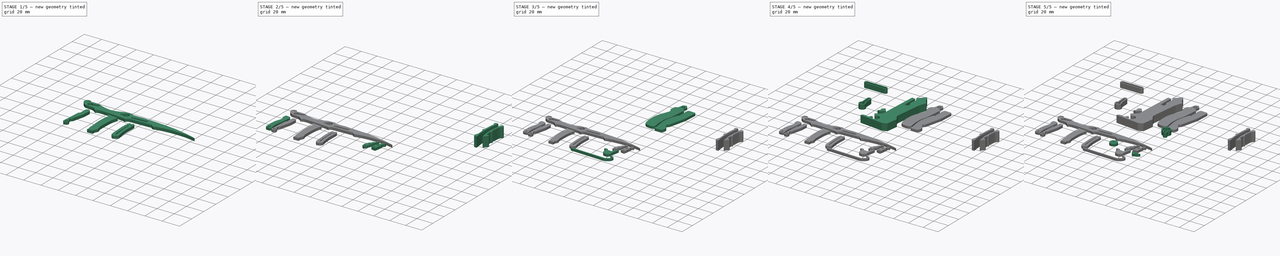
[diagram: build sequence overview — one tinted view per stage of 5, left to right]
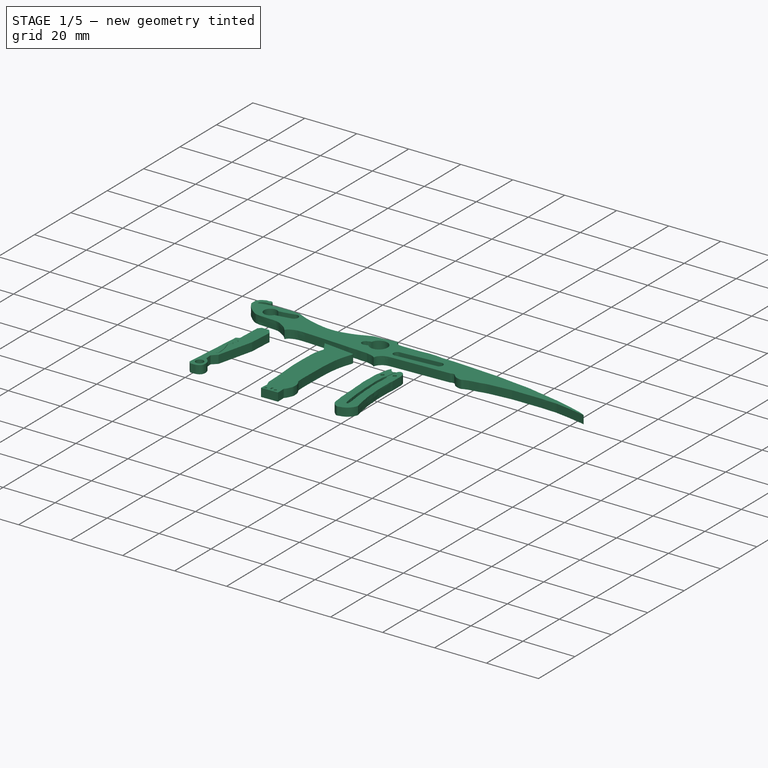
[diagram: stage 1 of 5 — iso view after this stage's code; geometry added in this stage tinted green]
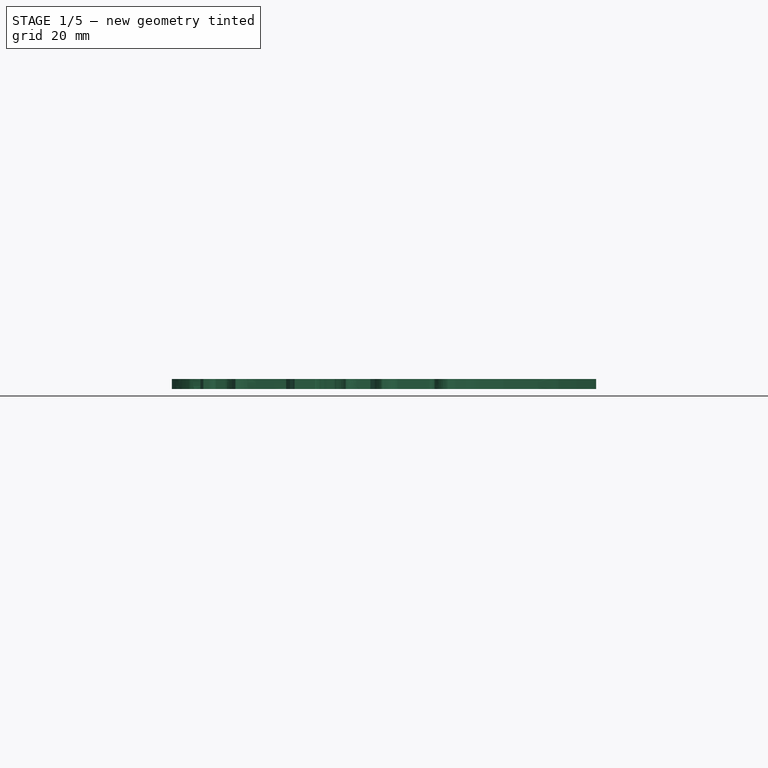
[diagram: stage 1 of 5 — front view after this stage's code; geometry added in this stage tinted green]
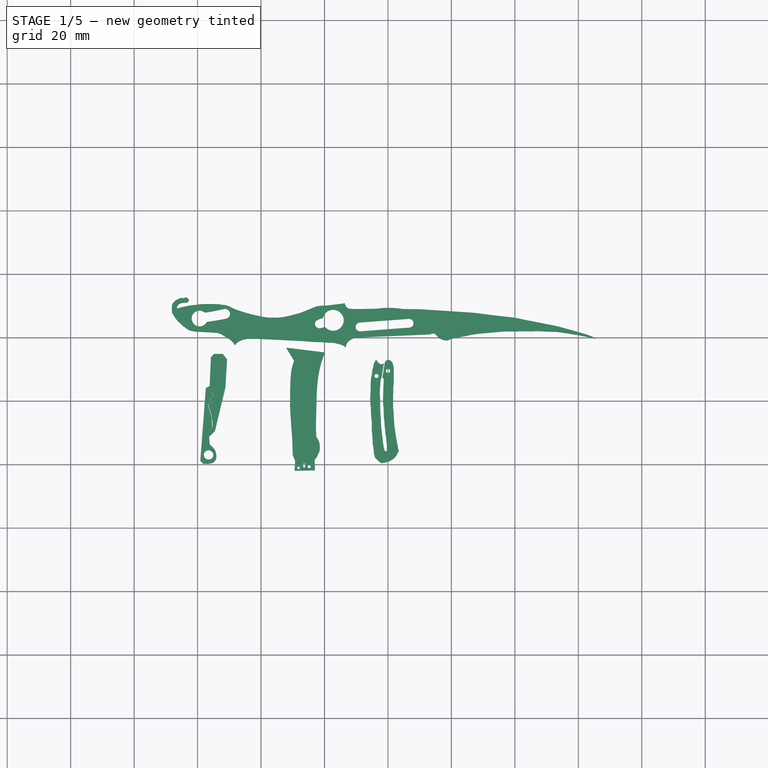
[diagram: stage 1 of 5 — top view after this stage's code; geometry added in this stage tinted green]
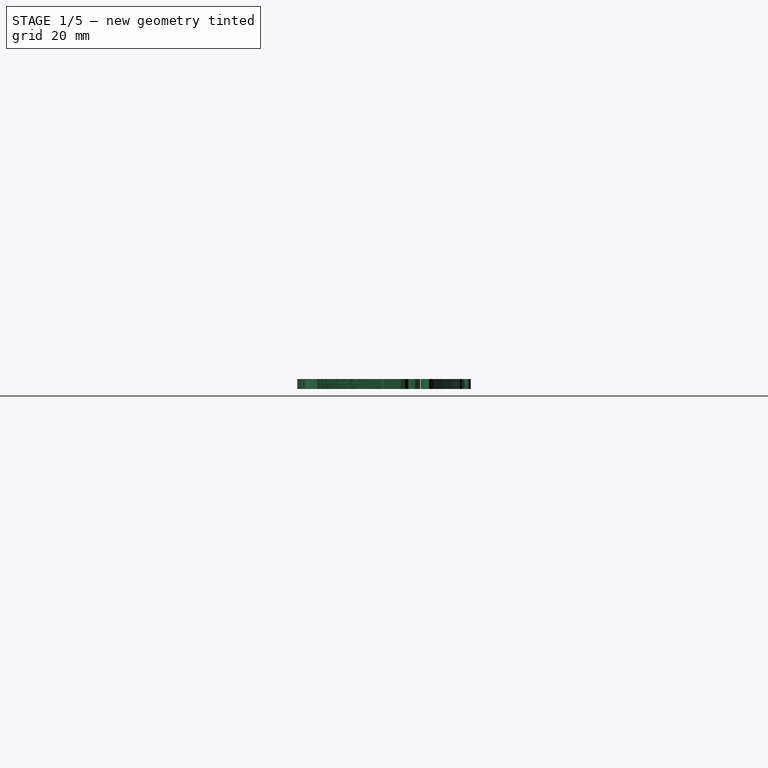
[diagram: stage 1 of 5 — right view after this stage's code; geometry added in this stage tinted green]
FCSTD DOCUMENT  (FreeCAD 0.19R24291 (Git))
Label: FlamBerge
License: All rights reserved
LicenseURL: http://en.wikipedia.org/wiki/All_rights_reserved
objects: Sketcher::SketchObject×36, PartDesign::Pad×36, PartDesign::Body×36, App::LinkGroup×17, Image::ImagePlane×2
note: 144 computed .brp shape members not serialized (recipe doc carries the construction recipe); baked Part::Feature solids carry a one-line shape summary decoded from their .brp

FEATURE [PartDesign::Body] Body034  label="Body030"
  Group = -> [Sketch038,Pad038]
  Origin = -> Origin034
  Placement = pos=(18.15,-1.5,0) rot=(0,0,1;0rad)
  Tip = -> Pad038
FEATURE [Sketcher::SketchObject] Sketch039
  FullyConstrained = false
  MapMode = 5
  Support = -> [XY_Plane035]
  sketch-geometry (96):
    g0: LineSegment StartX=-96.187 StartY=44.6961 StartZ=0 EndX=-95.804 EndY=53.7597 EndZ=0
    g1: LineSegment StartX=-95.804 StartY=53.7597 StartZ=0 EndX=-94.8466 EndY=54.8447 EndZ=0
    g2: LineSegment StartX=-94.8466 StartY=54.8447 StartZ=0 EndX=-92.0381 EndY=54.8447 EndZ=0
    g3: LineSegment StartX=-92.0381 StartY=54.8447 StartZ=0 EndX=-90.6978 EndY=53.1214 EndZ=0
    g4: LineSegment StartX=-90.6978 StartY=53.1214 StartZ=0 EndX=-91.2084 EndY=44.3131 EndZ=0
    g5: LineSegment StartX=-91.2084 StartY=44.3131 StartZ=0 EndX=-94.5242 EndY=30.5562 EndZ=0
    g6: LineSegment StartX=-94.5242 StartY=30.5562 StartZ=0 EndX=-96.367 EndY=28.7888 EndZ=0
    g7: LineSegment StartX=-96.187 StartY=44.6961 StartZ=0 EndX=-97.3944 EndY=44.0944 EndZ=0
    g8: LineSegment StartX=-96.367 StartY=28.7888 StartZ=0 EndX=-96.1531 EndY=26.2645 EndZ=0
    g9-g16: Circle x8 (B-spline internal-alignment scaffolding for g17; pole/knot coordinates omitted)
    g17: BSplineCurve PolesCount=8 KnotsCount=6 Degree=3 IsPeriodic=0
    g18-g23: GeomPoint x6 (B-spline internal-alignment scaffolding for g17; pole/knot coordinates omitted)
    g24: LineSegment StartX=-98.1486 StartY=20.212 StartZ=0 EndX=-99.1245 EndY=21.2351 EndZ=0
    g25: LineSegment StartX=-97.3944 StartY=44.0944 StartZ=0 EndX=-99.1245 EndY=21.2351 EndZ=0
    g26: LineSegment StartX=-96.469 StartY=20.2533 StartZ=0 EndX=-98.1486 EndY=20.212 EndZ=0
    g27: Circle CenterX=-96.5234 CenterY=23.0321 CenterZ=0 NormalX=0 NormalY=0 NormalZ=1 AngleXU=0 Radius=1.487
    g28-g34: Circle x7 (B-spline internal-alignment scaffolding for g35; pole/knot coordinates omitted)
    g35: BSplineCurve PolesCount=7 KnotsCount=5 Degree=3 IsPeriodic=0
    g36-g40: GeomPoint x5 (B-spline internal-alignment scaffolding for g35; pole/knot coordinates omitted)
    g41: LineSegment StartX=-95.7836 StartY=41.1292 StartZ=0 EndX=-96.1544 EndY=40.8458 EndZ=0
    g42: LineSegment StartX=-96.1544 StartY=40.8458 StartZ=0 EndX=-95.3442 EndY=39.7566 EndZ=0
    g43: LineSegment StartX=-95.3442 StartY=39.7566 StartZ=0 EndX=-96.6458 EndY=38.8462 EndZ=0
    g44: LineSegment StartX=-95.4777 StartY=39.7994 StartZ=0 EndX=-96.2877 EndY=40.878 EndZ=0
    g45: LineSegment StartX=-96.2877 StartY=40.878 StartZ=0 EndX=-95.8522 EndY=41.1655 EndZ=0
    g46-g52: Circle x7 (B-spline internal-alignment scaffolding for g53; pole/knot coordinates omitted)
    g53: BSplineCurve PolesCount=7 KnotsCount=5 Degree=3 IsPeriodic=0
    g54-g58: GeomPoint x5 (B-spline internal-alignment scaffolding for g53; pole/knot coordinates omitted)
    g59: LineSegment StartX=-95.4777 StartY=39.7994 StartZ=0 EndX=-96.765 EndY=38.9027 EndZ=0
    g60: LineSegment StartX=-96.765 StartY=38.9027 StartZ=0 EndX=-96.0034 EndY=36.4049 EndZ=0
    g61: LineSegment StartX=-95.8322 StartY=36.3186 StartZ=0 EndX=-96.6458 EndY=38.8462 EndZ=0
    g62-g67: Circle x6 (B-spline internal-alignment scaffolding for g68; pole/knot coordinates omitted)
    g68: BSplineCurve PolesCount=6 KnotsCount=4 Degree=3 IsPeriodic=0
    g69-g72: GeomPoint x4 (B-spline internal-alignment scaffolding for g68; pole/knot coordinates omitted)
    g73-g78: Circle x6 (B-spline internal-alignment scaffolding for g79; pole/knot coordinates omitted)
    g79: BSplineCurve PolesCount=6 KnotsCount=4 Degree=3 IsPeriodic=0
    g80-g83: GeomPoint x4 (B-spline internal-alignment scaffolding for g79; pole/knot coordinates omitted)
    g84: Circle CenterX=-96.4668 CenterY=31.4063 CenterZ=0 NormalX=0 NormalY=0 NormalZ=1 AngleXU=0 Radius=1
    g85: Circle CenterX=-96.5429 CenterY=31.4968 CenterZ=0 NormalX=0 NormalY=0 NormalZ=1 AngleXU=0 Radius=1
    g86: Circle CenterX=-96.2774 CenterY=31.4183 CenterZ=0 NormalX=0 NormalY=0 NormalZ=1 AngleXU=0 Radius=1
    g87: BSplineCurve PolesCount=3 KnotsCount=2 Degree=2 IsPeriodic=0
    g88: GeomPoint X=-96.4668 Y=31.4063 Z=0
    g89: GeomPoint X=-96.2774 Y=31.4183 Z=0
    g90: Circle CenterX=-96.3447 CenterY=42.8131 CenterZ=0 NormalX=0 NormalY=0 NormalZ=1 AngleXU=0 Radius=1
    g91: Circle CenterX=-96.4366 CenterY=42.7645 CenterZ=0 NormalX=0 NormalY=0 NormalZ=1 AngleXU=0 Radius=1
    g92: Circle CenterX=-96.3477 CenterY=42.7303 CenterZ=0 NormalX=0 NormalY=0 NormalZ=1 AngleXU=0 Radius=1
    g93: BSplineCurve PolesCount=3 KnotsCount=2 Degree=2 IsPeriodic=0
    g94: GeomPoint X=-96.3447 Y=42.8131 Z=0
    g95: GeomPoint X=-96.3477 Y=42.7303 Z=0
  constraints (78):
    c: Coincident(g1,g0)
    c: Coincident(g2,g1)
    c: Coincident(g3,g2)
    c: Coincident(g4,g3)
    c: Coincident(g5,g4)
    c: Coincident(g7,g0)
    c: Coincident(g8,g6)
    c: Coincident(g17,g8)
    c: Weight(g9) = 1
    c: Equal(g9, g10-g13) x4
    c: PointOnObject(g13,g12)
    c: Equal(g9,g14)
    c: PointOnObject(g14,g13)
    c: Equal(g9,g15)
    c: PointOnObject(g15,g14)
    c: Equal(g9,g16)
    c: InternalAlignment(g9-g16 -> g17) x8
    c: InternalAlignment(g18-g23 -> g17) x6
    c: Coincident(g25,g7)
    c: Coincident(g25,g24)
    c: Coincident(g26,g17)
    c: Weight(g28) = 1
    c: Equal(g28,g29)
    c: Equal(g28,g30)
    c: Equal(g28,g31)
    c: PointOnObject(g31,g29)
    c: Equal(g28,g32)
    c: Equal(g28,g33)
    c: Equal(g28,g34)
    c: PointOnObject(g35,g31)
    c: InternalAlignment(g28-g34 -> g35) x7
    c: InternalAlignment(g36-g40 -> g35) x5
    c: Coincident(g41,g35)
    c: Coincident(g42,g41)
    c: Tangent(g42,g32)
    c: Coincident(g43,g42)
    c: Coincident(g45,g44)
    c: Weight(g46) = 1
    c: Equal(g46, g47-g50) x4
    c: PointOnObject(g50,g48)
    c: Equal(g46,g51)
    c: Equal(g46,g52)
    c: Coincident(g53,g45)
    c: InternalAlignment(g46-g52 -> g53) x7
    c: InternalAlignment(g54-g58 -> g53) x5
    c: Coincident(g44,g59)
    c: Coincident(g59,g60)
    c: Coincident(g61,g43)
    c: Coincident(g68,g60)
    c: Weight(g62) = 1
    c: Equal(g62, g63-g67) x5
    c: InternalAlignment(g62-g67 -> g68) x6
    c: InternalAlignment(g69-g72 -> g68) x4
    c: Coincident(g79,g61)
    c: Weight(g73) = 1
    c: Equal(g73, g74-g78) x5
    c: InternalAlignment(g73-g78 -> g79) x6
    c: InternalAlignment(g80-g83 -> g79) x4
    c: Coincident(g87,g79)
    c: Weight(g84) = 1
    c: Equal(g84,g85)
    c: Equal(g84,g86)
    c: Coincident(g87,g68)
    c: InternalAlignment(g84,g87)
    c: InternalAlignment(g85,g87)
    c: InternalAlignment(g86,g87)
    c: InternalAlignment(g88,g87)
    c: InternalAlignment(g89,g87)
    c: Coincident(g93,g35)
    c: Weight(g90) = 1
    c: Equal(g90,g91)
    c: Equal(g90,g92)
    c: Coincident(g93,g53)
    c: InternalAlignment(g90,g93)
    c: InternalAlignment(g91,g93)
    c: InternalAlignment(g92,g93)
    c: InternalAlignment(g94,g93)
    c: InternalAlignment(g95,g93)
FEATURE [PartDesign::Pad] Pad039
  Direction = (1,1,1)
  Length = 3.175
  Length2 = 100
  Profile = -> Sketch039
  Type = 0
FEATURE [PartDesign::Body] Body035
  Group = -> [Sketch039,Pad039]
  Origin = -> Origin035
  Placement = pos=(18.15,-1.5,0) rot=(0,0,1;0rad)
  Tip = -> Pad039
FEATURE [Sketcher::SketchObject] Sketch040
  FullyConstrained = false
  MapMode = 5
  Support = -> [XY_Plane036]
  sketch-geometry (76):
    g0: LineSegment StartX=-72.0744 StartY=56.8029 StartZ=0 EndX=-69.5691 EndY=52.7317 EndZ=0
    g1: LineSegment StartX=-72.0744 StartY=56.8029 StartZ=0 EndX=-60.1136 EndY=55.3483 EndZ=0
    g2: LineSegment StartX=-69.2559 StartY=21.1803 StartZ=0 EndX=-69.4125 EndY=18.0486 EndZ=0
    g3: LineSegment StartX=-69.4125 StartY=18.0486 StartZ=0 EndX=-62.9926 EndY=18.2052 EndZ=0
    g4: LineSegment StartX=-62.9926 StartY=18.2052 StartZ=0 EndX=-63.0818 EndY=21.5232 EndZ=0
    g5: Circle CenterX=-68.1926 CenterY=18.95 CenterZ=0 NormalX=0 NormalY=0 NormalZ=1 AngleXU=0 Radius=0.434044
    g6: Circle CenterX=-64.81 CenterY=19.3293 CenterZ=0 NormalX=0 NormalY=0 NormalZ=1 AngleXU=0 Radius=0.491026
    g7-g13: Circle x7 (B-spline internal-alignment scaffolding for g14; pole/knot coordinates omitted)
    g14: BSplineCurve PolesCount=7 KnotsCount=5 Degree=3 IsPeriodic=0
    g15-g19: GeomPoint x5 (B-spline internal-alignment scaffolding for g14; pole/knot coordinates omitted)
    g20-g29: Circle x10 (B-spline internal-alignment scaffolding for g30; pole/knot coordinates omitted)
    g30: BSplineCurve PolesCount=10 KnotsCount=8 Degree=3 IsPeriodic=0
    g31-g38: GeomPoint x8 (B-spline internal-alignment scaffolding for g30; pole/knot coordinates omitted)
    g39-g48: Circle x10 (B-spline internal-alignment scaffolding for g49; pole/knot coordinates omitted)
    g49: BSplineCurve PolesCount=10 KnotsCount=8 Degree=3 IsPeriodic=0
    g50-g57: GeomPoint x8 (B-spline internal-alignment scaffolding for g49; pole/knot coordinates omitted)
    g58: LineSegment StartX=-69.2559 StartY=21.1803 StartZ=0 EndX=-70.0049 EndY=22.9921 EndZ=0
    g59-g67: Circle x9 (B-spline internal-alignment scaffolding for g68; pole/knot coordinates omitted)
    g68: BSplineCurve PolesCount=9 KnotsCount=7 Degree=3 IsPeriodic=0
    g69-g75: GeomPoint x7 (B-spline internal-alignment scaffolding for g68; pole/knot coordinates omitted)
  constraints (41):
    c: Coincident(g1,g0)
    c: Coincident(g3,g2)
    c: Coincident(g4,g3)
    c: Weight(g7) = 1
    c: Equal(g7, g8-g11) x4
    c: PointOnObject(g11,g10)
    c: Equal(g7,g12)
    c: Equal(g7,g13)
    c: Coincident(g13,g7)
    c: InternalAlignment(g7-g13 -> g14) x7
    c: InternalAlignment(g15-g19 -> g14) x5
    c: Coincident(g30,g4)
    c: Weight(g20) = 1
    c: Equal(g20,g21)
    c: Equal(g20,g22)
    c: PointOnObject(g22,g21)
    c: Equal(g20,g23)
    c: Equal(g20,g24)
    c: Equal(g20,g25)
    c: PointOnObject(g25,g24)
    c: Equal(g20,g26)
    c: Equal(g20,g27)
    c: PointOnObject(g27,g26)
    c: Equal(g20,g28)
    c: PointOnObject(g28,g27)
    c: Equal(g20,g29)
    c: InternalAlignment(g20-g29 -> g30) x10
    c: InternalAlignment(g31-g38 -> g30) x8
    c: Coincident(g49,g30)
    c: Weight(g39) = 1
    c: Equal(g39, g40-g48) x9
    c: Coincident(g49,g1)
    c: InternalAlignment(g39-g48 -> g49) x10
    c: InternalAlignment(g50-g57 -> g49) x8
    c: Coincident(g58,g2)
    c: Coincident(g68,g58)
    c: Weight(g59) = 1
    c: Equal(g59, g60-g67) x8
    c: Coincident(g68,g0)
    c: InternalAlignment(g59-g67 -> g68) x9
    c: InternalAlignment(g69-g75 -> g68) x7
FEATURE [PartDesign::Pad] Pad040
  Direction = (1,1,1)
  Length = 3.175
  Length2 = 100
  Profile = -> Sketch040
  Type = 0
FEATURE [PartDesign::Body] Body036
  Group = -> [Sketch040,Pad040]
  Origin = -> Origin036
  Tip = -> Pad040
FEATURE [Sketcher::SketchObject] Sketch041
  FullyConstrained = false
  MapMode = 5
  Support = -> [XY_Plane037]
  sketch-geometry (76):
    g0: LineSegment StartX=-72.0744 StartY=56.8029 StartZ=0 EndX=-69.5691 EndY=52.7317 EndZ=0
    g1: LineSegment StartX=-72.0744 StartY=56.8029 StartZ=0 EndX=-60.1136 EndY=55.3483 EndZ=0
    g2: LineSegment StartX=-69.2559 StartY=21.1803 StartZ=0 EndX=-69.4125 EndY=18.0486 EndZ=0
    g3: LineSegment StartX=-69.4125 StartY=18.0486 StartZ=0 EndX=-62.9926 EndY=18.2052 EndZ=0
    g4: LineSegment StartX=-62.9926 StartY=18.2052 StartZ=0 EndX=-63.0818 EndY=21.5232 EndZ=0
    g5: Circle CenterX=-68.1926 CenterY=18.95 CenterZ=0 NormalX=0 NormalY=0 NormalZ=1 AngleXU=0 Radius=0.434044
    g6: Circle CenterX=-64.81 CenterY=19.3293 CenterZ=0 NormalX=0 NormalY=0 NormalZ=1 AngleXU=0 Radius=0.491026
    g7-g13: Circle x7 (B-spline internal-alignment scaffolding for g14; pole/knot coordinates omitted)
    g14: BSplineCurve PolesCount=7 KnotsCount=5 Degree=3 IsPeriodic=0
    g15-g19: GeomPoint x5 (B-spline internal-alignment scaffolding for g14; pole/knot coordinates omitted)
    g20-g29: Circle x10 (B-spline internal-alignment scaffolding for g30; pole/knot coordinates omitted)
    g30: BSplineCurve PolesCount=10 KnotsCount=8 Degree=3 IsPeriodic=0
    g31-g38: GeomPoint x8 (B-spline internal-alignment scaffolding for g30; pole/knot coordinates omitted)
    g39-g48: Circle x10 (B-spline internal-alignment scaffolding for g49; pole/knot coordinates omitted)
    g49: BSplineCurve PolesCount=10 KnotsCount=8 Degree=3 IsPeriodic=0
    g50-g57: GeomPoint x8 (B-spline internal-alignment scaffolding for g49; pole/knot coordinates omitted)
    g58: LineSegment StartX=-69.2559 StartY=21.1803 StartZ=0 EndX=-70.0049 EndY=22.9921 EndZ=0
    g59-g67: Circle x9 (B-spline internal-alignment scaffolding for g68; pole/knot coordinates omitted)
    g68: BSplineCurve PolesCount=9 KnotsCount=7 Degree=3 IsPeriodic=0
    g69-g75: GeomPoint x7 (B-spline internal-alignment scaffolding for g68; pole/knot coordinates omitted)
  constraints (41):
    c: Coincident(g1,g0)
    c: Coincident(g3,g2)
    c: Coincident(g4,g3)
    c: Weight(g7) = 1
    c: Equal(g7, g8-g11) x4
    c: PointOnObject(g11,g10)
    c: Equal(g7,g12)
    c: Equal(g7,g13)
    c: Coincident(g13,g7)
    c: InternalAlignment(g7-g13 -> g14) x7
    c: InternalAlignment(g15-g19 -> g14) x5
    c: Coincident(g30,g4)
    c: Weight(g20) = 1
    c: Equal(g20,g21)
    c: Equal(g20,g22)
    c: PointOnObject(g22,g21)
    c: Equal(g20,g23)
    c: Equal(g20,g24)
    c: Equal(g20,g25)
    c: PointOnObject(g25,g24)
    c: Equal(g20,g26)
    c: Equal(g20,g27)
    c: PointOnObject(g27,g26)
    c: Equal(g20,g28)
    c: PointOnObject(g28,g27)
    c: Equal(g20,g29)
    c: InternalAlignment(g20-g29 -> g30) x10
    c: InternalAlignment(g31-g38 -> g30) x8
    c: Coincident(g49,g30)
    c: Weight(g39) = 1
    c: Equal(g39, g40-g48) x9
    c: Coincident(g49,g1)
    c: InternalAlignment(g39-g48 -> g49) x10
    c: InternalAlignment(g50-g57 -> g49) x8
    c: Coincident(g58,g2)
    c: Coincident(g68,g58)
    c: Weight(g59) = 1
    c: Equal(g59, g60-g67) x8
    c: Coincident(g68,g0)
    c: InternalAlignment(g59-g67 -> g68) x9
    c: InternalAlignment(g69-g75 -> g68) x7
FEATURE [PartDesign::Pad] Pad041
  Direction = (1,1,1)
  Length = 3.175
  Length2 = 100
  Profile = -> Sketch041
  Type = 0
FEATURE [PartDesign::Body] Body037
  Group = -> [Sketch041,Pad041]
  Origin = -> Origin037
  Placement = pos=(12.6,-0.8,0) rot=(0,0,1;0rad)
  Tip = -> Pad041
FEATURE [App::LinkGroup] LinkGroup014  label="BladeDesignThings"
  ElementList = -> [Body029,Body034,Body032,Body035,Body036,Body037]
  LinkMode = 0
FEATURE [Sketcher::SketchObject] Sketch042
  FullyConstrained = false
  MapMode = 5
  Support = -> [XY_Plane038]
  sketch-geometry (218):
    g0: LineSegment StartX=-41.2749 StartY=51.9381 StartZ=0 EndX=-41.9979 EndY=47.4595 EndZ=0
    g1: LineSegment StartX=-41.7356 StartY=47.4096 StartZ=0 EndX=-41.0405 EndY=51.9467 EndZ=0
    g2-g20: Circle x19 (B-spline internal-alignment scaffolding for g21; pole/knot coordinates omitted)
    g21: BSplineCurve PolesCount=19 KnotsCount=17 Degree=3 IsPeriodic=0
    g22-g38: GeomPoint x17 (B-spline internal-alignment scaffolding for g21; pole/knot coordinates omitted)
    g39: LineSegment StartX=-40.3256 StartY=24.186 StartZ=0 EndX=-41.0615 EndY=24.2406 EndZ=0
    g40-g56: Circle x17 (B-spline internal-alignment scaffolding for g57; pole/knot coordinates omitted)
    g57: BSplineCurve PolesCount=17 KnotsCount=15 Degree=3 IsPeriodic=0
    g58-g72: GeomPoint x15 (B-spline internal-alignment scaffolding for g57; pole/knot coordinates omitted)
    g73-g107: Circle x35 (B-spline internal-alignment scaffolding for g108; pole/knot coordinates omitted)
    g108: BSplineCurve PolesCount=35 KnotsCount=33 Degree=3 IsPeriodic=0
    g109-g141: GeomPoint x33 (B-spline internal-alignment scaffolding for g108; pole/knot coordinates omitted)
    g142-g151: Circle x10 (B-spline internal-alignment scaffolding for g152; pole/knot coordinates omitted)
    g152: BSplineCurve PolesCount=10 KnotsCount=8 Degree=3 IsPeriodic=0
    g153-g160: GeomPoint x8 (B-spline internal-alignment scaffolding for g152; pole/knot coordinates omitted)
    g161-g171: Circle x11 (B-spline internal-alignment scaffolding for g172; pole/knot coordinates omitted)
    g172: BSplineCurve PolesCount=11 KnotsCount=9 Degree=3 IsPeriodic=0
    g173-g181: GeomPoint x9 (B-spline internal-alignment scaffolding for g172; pole/knot coordinates omitted)
    g182: LineSegment StartX=-38.1559 StartY=50.5773 StartZ=0 EndX=-38.1559 EndY=45.5163 EndZ=0
    g183-g199: Circle x17 (B-spline internal-alignment scaffolding for g200; pole/knot coordinates omitted)
    g200: BSplineCurve PolesCount=17 KnotsCount=15 Degree=3 IsPeriodic=0
    g201-g215: GeomPoint x15 (B-spline internal-alignment scaffolding for g200; pole/knot coordinates omitted)
    g216: Circle CenterX=-39.9847 CenterY=49.5078 CenterZ=0 NormalX=0 NormalY=0 NormalZ=1 AngleXU=0 Radius=0.673456
    g217: Circle CenterX=-43.6083 CenterY=47.916 CenterZ=0 NormalX=0 NormalY=0 NormalZ=1 AngleXU=0 Radius=0.66255
  constraints (61):
    c: Coincident(g21,g1)
    c: Weight(g2) = 1
    c: Equal(g2,g3)
    c: Equal(g2,g4)
    c: Equal(g2,g5)
    c: PointOnObject(g5,g2)
    c: Equal(g2, g6-g12) x7
    c: PointOnObject(g12,g11)
    c: Equal(g2, g13-g20) x8
    c: InternalAlignment(g2-g20 -> g21) x19
    c: InternalAlignment(g22-g38 -> g21) x17
    c: Coincident(g39,g21)
    c: Coincident(g57,g39)
    c: Weight(g40) = 1
    c: Equal(g40, g41-g56) x16
    c: Coincident(g57,g0)
    c: InternalAlignment(g40-g56 -> g57) x17
    c: InternalAlignment(g58-g72 -> g57) x15
    c: Weight(g73) = 1
    c: Equal(g73, g74-g80) x7
    c: PointOnObject(g80,g78)
    c: Equal(g73, g81-g84) x4
    c: PointOnObject(g84,g83)
    c: Equal(g73,g85)
    c: PointOnObject(g85,g84)
    c: Equal(g73, g86-g107) x22
    c: PointOnObject(g108,g105)
    c: InternalAlignment(g73-g107 -> g108) x35
    c: InternalAlignment(g109-g141 -> g108) x33
    c: Coincident(g152,g0)
    c: Weight(g142) = 1
    c: Equal(g142, g143-g151) x9
    c: Coincident(g152,g108)
    c: InternalAlignment(g142-g151 -> g152) x10
    c: InternalAlignment(g153-g160 -> g152) x8
    c: Coincident(g172,g1)
    c: Weight(g161) = 1
    c: Equal(g161, g162-g168) x7
    c: PointOnObject(g168,g166)
    c: Equal(g161,g169)
    c: PointOnObject(g169,g167)
    c: Equal(g161,g170)
    c: Equal(g161,g171)
    c: InternalAlignment(g161-g171 -> g172) x11
    c: InternalAlignment(g173-g181 -> g172) x9
    c: Coincident(g182,g172)
    c: Vertical(g182)
    c: Coincident(g200,g182)
    c: Weight(g183) = 1
    c: Equal(g183,g184)
    c: Equal(g183,g185)
    c: Equal(g183,g186)
    c: PointOnObject(g186,g185)
    c: Equal(g183,g187)
    c: Equal(g183,g188)
    c: Equal(g183,g189)
    c: PointOnObject(g189,g188)
    c: Equal(g183, g190-g199) x10
    c: Coincident(g200,g108)
    c: InternalAlignment(g183-g199 -> g200) x17
    c: InternalAlignment(g201-g215 -> g200) x15
FEATURE [PartDesign::Pad] Pad042
  Direction = (1,1,1)
  Length = 3.175
  Length2 = 100
  Profile = -> Sketch042
  Type = 0
FEATURE [PartDesign::Body] Body038
  Group = -> [Sketch042,Pad042]
  Origin = -> Origin038
  Tip = -> Pad042
FEATURE [Sketcher::SketchObject] Sketch043
  FullyConstrained = false
  MapMode = 5
  Support = -> [XY_Plane039]
  sketch-geometry (218):
    g0: LineSegment StartX=-41.2749 StartY=51.9381 StartZ=0 EndX=-41.9979 EndY=47.4595 EndZ=0
    g1: LineSegment StartX=-41.7356 StartY=47.4096 StartZ=0 EndX=-41.0405 EndY=51.9467 EndZ=0
    g2-g20: Circle x19 (B-spline internal-alignment scaffolding for g21; pole/knot coordinates omitted)
    g21: BSplineCurve PolesCount=19 KnotsCount=17 Degree=3 IsPeriodic=0
    g22-g38: GeomPoint x17 (B-spline internal-alignment scaffolding for g21; pole/knot coordinates omitted)
    g39: LineSegment StartX=-40.3256 StartY=24.186 StartZ=0 EndX=-41.0615 EndY=24.2406 EndZ=0
    g40-g56: Circle x17 (B-spline internal-alignment scaffolding for g57; pole/knot coordinates omitted)
    g57: BSplineCurve PolesCount=17 KnotsCount=15 Degree=3 IsPeriodic=0
    g58-g72: GeomPoint x15 (B-spline internal-alignment scaffolding for g57; pole/knot coordinates omitted)
    g73-g107: Circle x35 (B-spline internal-alignment scaffolding for g108; pole/knot coordinates omitted)
    g108: BSplineCurve PolesCount=35 KnotsCount=33 Degree=3 IsPeriodic=0
    g109-g141: GeomPoint x33 (B-spline internal-alignment scaffolding for g108; pole/knot coordinates omitted)
    g142-g151: Circle x10 (B-spline internal-alignment scaffolding for g152; pole/knot coordinates omitted)
    g152: BSplineCurve PolesCount=10 KnotsCount=8 Degree=3 IsPeriodic=0
    g153-g160: GeomPoint x8 (B-spline internal-alignment scaffolding for g152; pole/knot coordinates omitted)
    g161-g171: Circle x11 (B-spline internal-alignment scaffolding for g172; pole/knot coordinates omitted)
    g172: BSplineCurve PolesCount=11 KnotsCount=9 Degree=3 IsPeriodic=0
    g173-g181: GeomPoint x9 (B-spline internal-alignment scaffolding for g172; pole/knot coordinates omitted)
    g182: LineSegment StartX=-38.1559 StartY=50.5773 StartZ=0 EndX=-38.1559 EndY=45.5163 EndZ=0
    g183-g199: Circle x17 (B-spline internal-alignment scaffolding for g200; pole/knot coordinates omitted)
    g200: BSplineCurve PolesCount=17 KnotsCount=15 Degree=3 IsPeriodic=0
    g201-g215: GeomPoint x15 (B-spline internal-alignment scaffolding for g200; pole/knot coordinates omitted)
    g216: Circle CenterX=-39.9847 CenterY=49.5078 CenterZ=0 NormalX=0 NormalY=0 NormalZ=1 AngleXU=0 Radius=0.673456
    g217: Circle CenterX=-43.6083 CenterY=47.916 CenterZ=0 NormalX=0 NormalY=0 NormalZ=1 AngleXU=0 Radius=0.66255
  constraints (61):
    c: Coincident(g21,g1)
    c: Weight(g2) = 1
    c: Equal(g2,g3)
    c: Equal(g2,g4)
    c: Equal(g2,g5)
    c: PointOnObject(g5,g2)
    c: Equal(g2, g6-g12) x7
    c: PointOnObject(g12,g11)
    c: Equal(g2, g13-g20) x8
    c: InternalAlignment(g2-g20 -> g21) x19
    c: InternalAlignment(g22-g38 -> g21) x17
    c: Coincident(g39,g21)
    c: Coincident(g57,g39)
    c: Weight(g40) = 1
    c: Equal(g40, g41-g56) x16
    c: Coincident(g57,g0)
    c: InternalAlignment(g40-g56 -> g57) x17
    c: InternalAlignment(g58-g72 -> g57) x15
    c: Weight(g73) = 1
    c: Equal(g73, g74-g80) x7
    c: PointOnObject(g80,g78)
    c: Equal(g73, g81-g84) x4
    c: PointOnObject(g84,g83)
    c: Equal(g73,g85)
    c: PointOnObject(g85,g84)
    c: Equal(g73, g86-g107) x22
    c: PointOnObject(g108,g105)
    c: InternalAlignment(g73-g107 -> g108) x35
    c: InternalAlignment(g109-g141 -> g108) x33
    c: Coincident(g152,g0)
    c: Weight(g142) = 1
    c: Equal(g142, g143-g151) x9
    c: Coincident(g152,g108)
    c: InternalAlignment(g142-g151 -> g152) x10
    c: InternalAlignment(g153-g160 -> g152) x8
    c: Coincident(g172,g1)
    c: Weight(g161) = 1
    c: Equal(g161, g162-g168) x7
    c: PointOnObject(g168,g166)
    c: Equal(g161,g169)
    c: PointOnObject(g169,g167)
    c: Equal(g161,g170)
    c: Equal(g161,g171)
    c: InternalAlignment(g161-g171 -> g172) x11
    c: InternalAlignment(g173-g181 -> g172) x9
    c: Coincident(g182,g172)
    c: Vertical(g182)
    c: Coincident(g200,g182)
    c: Weight(g183) = 1
    c: Equal(g183,g184)
    c: Equal(g183,g185)
    c: Equal(g183,g186)
    c: PointOnObject(g186,g185)
    c: Equal(g183,g187)
    c: Equal(g183,g188)
    c: Equal(g183,g189)
    c: PointOnObject(g189,g188)
    c: Equal(g183, g190-g199) x10
    c: Coincident(g200,g108)
    c: InternalAlignment(g183-g199 -> g200) x17
    c: InternalAlignment(g201-g215 -> g200) x15
FEATURE [PartDesign::Pad] Pad043
  Direction = (1,1,1)
  Length = 3.175
  Length2 = 100
  Profile = -> Sketch043
  Type = 0
FEATURE [PartDesign::Body] Body039
  Group = -> [Sketch043,Pad043]
  Origin = -> Origin039
  Placement = pos=(11.4,0,0) rot=(0,0,1;0rad)
  Tip = -> Pad043
FEATURE [App::LinkGroup] LinkGroup015  label="UThings"
  ElementList = -> [Body038,Body039]
  LinkMode = 0
FEATURE [Sketcher::SketchObject] Sketch044
  FullyConstrained = false
  MapMode = 5
  Support = -> [XY_Plane040]
  sketch-geometry (413):
    g0: ArcOfCircle CenterX=-99.35 CenterY=66.0275 CenterZ=0 NormalX=0 NormalY=0 NormalZ=1 AngleXU=0 Radius=2.49604 StartAngle=0.867486 EndAngle=5.81955
    g1: ArcOfCircle CenterX=-91.3331 CenterY=67.5114 CenterZ=0 NormalX=0 NormalY=0 NormalZ=1 AngleXU=0 Radius=1.57876 StartAngle=4.82948 EndAngle=8.22832
    g2: ArcOfCircle CenterX=-57.2524 CenterY=65.4652 CenterZ=0 NormalX=0 NormalY=0 NormalZ=1 AngleXU=0 Radius=3.31417 StartAngle=3.81172 EndAngle=9.2336
    g3: ArcOfCircle CenterX=-61.6083 CenterY=64.3106 CenterZ=0 NormalX=0 NormalY=0 NormalZ=1 AngleXU=0 Radius=1.3855 StartAngle=1.70785 EndAngle=5.14218
    g4: Circle CenterX=-60.5062 CenterY=66.0949 CenterZ=0 NormalX=0 NormalY=0 NormalZ=1 AngleXU=0 Radius=1
    g5: Circle CenterX=-61.286 CenterY=66.0784 CenterZ=0 NormalX=0 NormalY=0 NormalZ=1 AngleXU=0 Radius=1
    g6: Circle CenterX=-61.7976 CenterY=65.6831 CenterZ=0 NormalX=0 NormalY=0 NormalZ=1 AngleXU=0 Radius=1
    g7: BSplineCurve PolesCount=3 KnotsCount=2 Degree=2 IsPeriodic=0
    g8: GeomPoint X=-60.5062 Y=66.0949 Z=0
    g9: GeomPoint X=-61.7976 Y=65.6831 Z=0
    g10: Circle CenterX=-59.8499 CenterY=63.4068 CenterZ=0 NormalX=0 NormalY=0 NormalZ=1 AngleXU=0 Radius=1
    g11: Circle CenterX=-60.4508 CenterY=63.1118 CenterZ=0 NormalX=0 NormalY=0 NormalZ=1 AngleXU=0 Radius=1
    g12: Circle CenterX=-61.031 CenterY=63.0511 CenterZ=0 NormalX=0 NormalY=0 NormalZ=1 AngleXU=0 Radius=1
    g13: BSplineCurve PolesCount=3 KnotsCount=2 Degree=2 IsPeriodic=0
    g14: GeomPoint X=-59.8499 Y=63.4068 Z=0
    g15: GeomPoint X=-61.031 Y=63.0511 Z=0
    g16-g19: Circle x4 (B-spline internal-alignment scaffolding for g20; pole/knot coordinates omitted)
    g20: BSplineCurve PolesCount=4 KnotsCount=2 Degree=3 IsPeriodic=0
    g21: GeomPoint X=-97.7357 Y=67.9313 Z=0
    g22: GeomPoint X=-91.9104 Y=68.9809 Z=0
    g23: Circle CenterX=-97.1175 CenterY=64.9113 CenterZ=0 NormalX=0 NormalY=0 NormalZ=1 AngleXU=0 Radius=1
    g24: Circle CenterX=-94.8442 CenterY=65.3058 CenterZ=0 NormalX=0 NormalY=0 NormalZ=1 AngleXU=0 Radius=1
    g25: Circle CenterX=-92.6959 CenterY=65.5637 CenterZ=0 NormalX=0 NormalY=0 NormalZ=1 AngleXU=0 Radius=1
    g26: Circle CenterX=-91.1487 CenterY=65.9435 CenterZ=0 NormalX=0 NormalY=0 NormalZ=1 AngleXU=0 Radius=1
    g27: BSplineCurve PolesCount=4 KnotsCount=2 Degree=3 IsPeriodic=0
    g28: GeomPoint X=-97.1175 Y=64.9113 Z=0
    g29: GeomPoint X=-91.1487 Y=65.9435 Z=0
    g30: ArcOfCircle CenterX=-33.3521 CenterY=64.526 CenterZ=0 NormalX=0 NormalY=0 NormalZ=1 AngleXU=0 Radius=1.40817 StartAngle=4.66336 EndAngle=8.00606
    g31: ArcOfCircle CenterX=-48.7752 CenterY=63.3712 CenterZ=0 NormalX=0 NormalY=0 NormalZ=1 AngleXU=0 Radius=1.41505 StartAngle=1.58746 EndAngle=4.71239
    g32: LineSegment StartX=-48.7987 StartY=64.7861 StartZ=0 EndX=-33.5654 EndY=65.918 EndZ=0
    g33: LineSegment StartX=-48.7752 StartY=61.9562 StartZ=0 EndX=-33.4211 EndY=63.1196 EndZ=0
    g34: LineSegment StartX=-48.7397 StartY=60.0939 StartZ=0 EndX=-27.8417 EndY=60.9747 EndZ=0
    g35-g39: Circle x5 (B-spline internal-alignment scaffolding for g40; pole/knot coordinates omitted)
    g40: BSplineCurve PolesCount=5 KnotsCount=3 Degree=3 IsPeriodic=0
    g41: GeomPoint X=-48.7397 Y=60.0939 Z=0
    g42: GeomPoint X=-52.1158 Y=59.0588 Z=0
    g43: GeomPoint X=-53.3497 Y=56.952 Z=0
    g44-g63: Circle x20 (B-spline internal-alignment scaffolding for g64; pole/knot coordinates omitted)
    g64: BSplineCurve PolesCount=20 KnotsCount=18 Degree=3 IsPeriodic=0
    g65-g82: GeomPoint x18 (B-spline internal-alignment scaffolding for g64; pole/knot coordinates omitted)
    g83-g117: Circle x35 (B-spline internal-alignment scaffolding for g118; pole/knot coordinates omitted)
    g118: BSplineCurve PolesCount=35 KnotsCount=33 Degree=3 IsPeriodic=0
    g119-g151: GeomPoint x33 (B-spline internal-alignment scaffolding for g118; pole/knot coordinates omitted)
    g152-g190: Circle x39 (B-spline internal-alignment scaffolding for g191; pole/knot coordinates omitted)
    g191: BSplineCurve PolesCount=39 KnotsCount=37 Degree=3 IsPeriodic=0
    g192-g228: GeomPoint x37 (B-spline internal-alignment scaffolding for g191; pole/knot coordinates omitted)
    g229-g251: Circle x23 (B-spline internal-alignment scaffolding for g252; pole/knot coordinates omitted)
    g252: BSplineCurve PolesCount=24 KnotsCount=22 Degree=3 IsPeriodic=0
    g253-g274: GeomPoint x22 (B-spline internal-alignment scaffolding for g252; pole/knot coordinates omitted)
    g275-g286: Circle x12 (B-spline internal-alignment scaffolding for g287; pole/knot coordinates omitted)
    g287: BSplineCurve PolesCount=12 KnotsCount=10 Degree=3 IsPeriodic=0
    g288-g297: GeomPoint x10 (B-spline internal-alignment scaffolding for g287; pole/knot coordinates omitted)
    g298-g328: Circle x31 (B-spline internal-alignment scaffolding for g329; pole/knot coordinates omitted)
    g329: BSplineCurve PolesCount=31 KnotsCount=29 Degree=3 IsPeriodic=0
    g330-g358: GeomPoint x29 (B-spline internal-alignment scaffolding for g329; pole/knot coordinates omitted)
    g359: LineSegment StartX=-108.08 StartY=70.304 StartZ=0 EndX=-108.08 EndY=67.8917 EndZ=0
    g360-g386: Circle x27 (B-spline internal-alignment scaffolding for g387; pole/knot coordinates omitted)
    g387: BSplineCurve PolesCount=27 KnotsCount=25 Degree=3 IsPeriodic=0
    g388-g412: GeomPoint x25 (B-spline internal-alignment scaffolding for g387; pole/knot coordinates omitted)
  constraints (153):
    c: Coincident(g7,g2)
    c: Weight(g4) = 1
    c: Equal(g4,g5)
    c: Equal(g4,g6)
    c: Coincident(g7,g3)
    c: InternalAlignment(g4,g7)
    c: InternalAlignment(g5,g7)
    c: InternalAlignment(g6,g7)
    c: InternalAlignment(g8,g7)
    c: InternalAlignment(g9,g7)
    c: Coincident(g13,g2)
    c: Weight(g10) = 1
    c: Equal(g10,g11)
    c: Equal(g10,g12)
    c: Coincident(g13,g3)
    c: InternalAlignment(g10,g13)
    c: InternalAlignment(g11,g13)
    c: InternalAlignment(g12,g13)
    c: InternalAlignment(g14,g13)
    c: InternalAlignment(g15,g13)
    c: Coincident(g20,g0)
    c: Weight(g16) = 1
    c: Equal(g16,g17)
    c: Equal(g16,g18)
    c: Equal(g16,g19)
    c: Coincident(g20,g1)
    c: InternalAlignment(g16-g19 -> g20) x4
    c: InternalAlignment(g21,g20)
    c: InternalAlignment(g22,g20)
    c: Coincident(g27,g0)
    c: Weight(g23) = 1
    c: Equal(g23,g24)
    c: Equal(g23,g25)
    c: Equal(g23,g26)
    c: InternalAlignment(g24,g27)
    c: InternalAlignment(g25,g27)
    c: InternalAlignment(g26,g27)
    c: InternalAlignment(g28,g27)
    c: InternalAlignment(g29,g27)
    c: Coincident(g32,g31)
    c: Coincident(g32,g30)
    c: Coincident(g33,g31)
    c: Coincident(g33,g30)
    c: Coincident(g40,g34)
    c: Weight(g35) = 1
    c: Equal(g35, g36-g39) x4
    c: PointOnObject(g40,g38)
    c: InternalAlignment(g35-g39 -> g40) x5
    c: InternalAlignment(g41,g40)
    c: InternalAlignment(g42,g40)
    c: InternalAlignment(g43,g40)
    c: Coincident(g64,g40)
    c: Weight(g44) = 1
    c: Equal(g44,g45)
    c: Equal(g44,g46)
    c: PointOnObject(g46,g45)
    c: Equal(g44, g47-g63) x17
    c: PointOnObject(g64,g62)
    c: InternalAlignment(g44-g63 -> g64) x20
    c: InternalAlignment(g65-g82 -> g64) x18
    c: Coincident(g118,g34)
    c: Weight(g83) = 1
    c: Equal(g83, g84-g88) x5
    c: PointOnObject(g88,g86)
    c: Equal(g83,g89)
    c: PointOnObject(g89,g88)
    c: Equal(g83,g90)
    c: Equal(g83,g91)
    c: PointOnObject(g91,g90)
    c: Equal(g83, g92-g96) x5
    c: PointOnObject(g96,g95)
    c: Equal(g83, g97-g117) x21
    c: InternalAlignment(g83-g117 -> g118) x35
    c: InternalAlignment(g119-g151 -> g118) x33
    c: Coincident(g191,g118)
    c: Weight(g152) = 1
    c: Equal(g152, g153-g157) x5
    c: PointOnObject(g157,g156)
    c: Equal(g152, g158-g172) x15
    c: PointOnObject(g172,g-2)
    c: Equal(g152, g173-g179) x7
    c: PointOnObject(g179,g178)
    c: Equal(g152, g180-g183) x4
    c: PointOnObject(g183,g182)
    c: Equal(g152, g184-g187) x4
    c: PointOnObject(g187,g186)
    c: Equal(g152,g188)
    c: PointOnObject(g188,g187)
    c: Equal(g152,g189)
    c: Equal(g152,g190)
    c: InternalAlignment(g152-g190 -> g191) x39
    c: InternalAlignment(g192-g228 -> g191) x37
    c: Weight(g229) = 1
    c: Equal(g229, g230-g246) x17
    c: PointOnObject(g246,g245)
    c: Equal(g229, g247-g251) x5
    c: Coincident(g252,g191)
    c: InternalAlignment(g229-g251 -> g252) x23
    c: InternalAlignment(g253-g274 -> g252) x22
    c: Coincident(g287,g252)
    c: Weight(g275) = 1
    c: Equal(g275, g276-g286) x11
    c: PointOnObject(g287,g284)
    c: InternalAlignment(g275-g286 -> g287) x12
    c: InternalAlignment(g288-g297 -> g287) x10
    c: Coincident(g329,g287)
    c: Weight(g298) = 1
    c: Equal(g298,g299)
    c: Equal(g298,g300)
    c: Equal(g298,g301)
    c: PointOnObject(g301,g299)
    c: Equal(g298, g302-g310) x9
    c: PointOnObject(g310,g308)
    c: Equal(g298, g311-g314) x4
    c: PointOnObject(g314,g311)
    c: Equal(g298,g315)
    c: PointOnObject(g315,g313)
    c: Equal(g298,g316)
    c: Equal(g298,g317)
    c: Equal(g298,g318)
    c: PointOnObject(g318,g315)
    c: Equal(g298,g319)
    c: PointOnObject(g319,g316)
    c: Equal(g298,g320)
    c: Equal(g298,g321)
    c: Equal(g298,g322)
    c: PointOnObject(g322,g319)
    c: Equal(g298,g323)
    c: Equal(g298,g324)
    c: PointOnObject(g324,g320)
    c: Equal(g298,g325)
    c: PointOnObject(g325,g321)
    c: Equal(g298,g326)
    c: Equal(g298,g327)
    c: Equal(g298,g328)
    c: PointOnObject(g329,g324)
    c: InternalAlignment(g298-g328 -> g329) x31
    c: InternalAlignment(g330-g358 -> g329) x29
    c: Coincident(g359,g329)
    c: Vertical(g359)
    c: Coincident(g387,g64)
    c: Weight(g360) = 1
    c: Equal(g360, g361-g372) x12
    c: PointOnObject(g372,g371)
    c: Equal(g360,g373)
    c: Equal(g360,g374)
    c: PointOnObject(g374,g372)
    c: Equal(g360, g375-g385) x11
    c: PointOnObject(g385,g383)
    c: Equal(g360,g386)
    c: Coincident(g387,g359)
    c: InternalAlignment(g360-g386 -> g387) x27
    c: InternalAlignment(g388-g412 -> g387) x25
FEATURE [PartDesign::Pad] Pad044
  Direction = (1,1,1)
  Length = 3.175
  Length2 = 100
  Profile = -> Sketch044
  Type = 0
FEATURE [PartDesign::Body] Body040
  Group = -> [Sketch044,Pad044]
  Origin = -> Origin040
  Tip = -> Pad044
FEATURE [Sketcher::SketchObject] Sketch045
  FullyConstrained = false
  MapMode = 5
  Support = -> [XY_Plane041]
  sketch-geometry (413):
    g0: ArcOfCircle CenterX=-99.35 CenterY=66.0275 CenterZ=0 NormalX=0 NormalY=0 NormalZ=1 AngleXU=0 Radius=2.49604 StartAngle=0.867486 EndAngle=5.81955
    g1: ArcOfCircle CenterX=-91.3331 CenterY=67.5114 CenterZ=0 NormalX=0 NormalY=0 NormalZ=1 AngleXU=0 Radius=1.57876 StartAngle=4.82948 EndAngle=8.22832
    g2: ArcOfCircle CenterX=-57.2524 CenterY=65.4652 CenterZ=0 NormalX=0 NormalY=0 NormalZ=1 AngleXU=0 Radius=3.31417 StartAngle=3.81172 EndAngle=9.2336
    g3: ArcOfCircle CenterX=-61.6083 CenterY=64.3106 CenterZ=0 NormalX=0 NormalY=0 NormalZ=1 AngleXU=0 Radius=1.3855 StartAngle=1.70785 EndAngle=5.14218
    g4: Circle CenterX=-60.5062 CenterY=66.0949 CenterZ=0 NormalX=0 NormalY=0 NormalZ=1 AngleXU=0 Radius=1
    g5: Circle CenterX=-61.286 CenterY=66.0784 CenterZ=0 NormalX=0 NormalY=0 NormalZ=1 AngleXU=0 Radius=1
    g6: Circle CenterX=-61.7976 CenterY=65.6831 CenterZ=0 NormalX=0 NormalY=0 NormalZ=1 AngleXU=0 Radius=1
    g7: BSplineCurve PolesCount=3 KnotsCount=2 Degree=2 IsPeriodic=0
    g8: GeomPoint X=-60.5062 Y=66.0949 Z=0
    g9: GeomPoint X=-61.7976 Y=65.6831 Z=0
    g10: Circle CenterX=-59.8499 CenterY=63.4068 CenterZ=0 NormalX=0 NormalY=0 NormalZ=1 AngleXU=0 Radius=1
    g11: Circle CenterX=-60.4508 CenterY=63.1118 CenterZ=0 NormalX=0 NormalY=0 NormalZ=1 AngleXU=0 Radius=1
    g12: Circle CenterX=-61.031 CenterY=63.0511 CenterZ=0 NormalX=0 NormalY=0 NormalZ=1 AngleXU=0 Radius=1
    g13: BSplineCurve PolesCount=3 KnotsCount=2 Degree=2 IsPeriodic=0
    g14: GeomPoint X=-59.8499 Y=63.4068 Z=0
    g15: GeomPoint X=-61.031 Y=63.0511 Z=0
    g16-g19: Circle x4 (B-spline internal-alignment scaffolding for g20; pole/knot coordinates omitted)
    g20: BSplineCurve PolesCount=4 KnotsCount=2 Degree=3 IsPeriodic=0
    g21: GeomPoint X=-97.7357 Y=67.9313 Z=0
    g22: GeomPoint X=-91.9104 Y=68.9809 Z=0
    g23: Circle CenterX=-97.1175 CenterY=64.9113 CenterZ=0 NormalX=0 NormalY=0 NormalZ=1 AngleXU=0 Radius=1
    g24: Circle CenterX=-94.8442 CenterY=65.3058 CenterZ=0 NormalX=0 NormalY=0 NormalZ=1 AngleXU=0 Radius=1
    g25: Circle CenterX=-92.6959 CenterY=65.5637 CenterZ=0 NormalX=0 NormalY=0 NormalZ=1 AngleXU=0 Radius=1
    g26: Circle CenterX=-91.1487 CenterY=65.9435 CenterZ=0 NormalX=0 NormalY=0 NormalZ=1 AngleXU=0 Radius=1
    g27: BSplineCurve PolesCount=4 KnotsCount=2 Degree=3 IsPeriodic=0
    g28: GeomPoint X=-97.1175 Y=64.9113 Z=0
    g29: GeomPoint X=-91.1487 Y=65.9435 Z=0
    g30: ArcOfCircle CenterX=-33.3521 CenterY=64.526 CenterZ=0 NormalX=0 NormalY=0 NormalZ=1 AngleXU=0 Radius=1.40817 StartAngle=4.66336 EndAngle=8.00606
    g31: ArcOfCircle CenterX=-48.7752 CenterY=63.3712 CenterZ=0 NormalX=0 NormalY=0 NormalZ=1 AngleXU=0 Radius=1.41505 StartAngle=1.58746 EndAngle=4.71239
    g32: LineSegment StartX=-48.7987 StartY=64.7861 StartZ=0 EndX=-33.5654 EndY=65.918 EndZ=0
    g33: LineSegment StartX=-48.7752 StartY=61.9562 StartZ=0 EndX=-33.4211 EndY=63.1196 EndZ=0
    g34: LineSegment StartX=-48.7397 StartY=60.0939 StartZ=0 EndX=-27.8417 EndY=60.9747 EndZ=0
    g35-g39: Circle x5 (B-spline internal-alignment scaffolding for g40; pole/knot coordinates omitted)
    g40: BSplineCurve PolesCount=5 KnotsCount=3 Degree=3 IsPeriodic=0
    g41: GeomPoint X=-48.7397 Y=60.0939 Z=0
    g42: GeomPoint X=-52.1158 Y=59.0588 Z=0
    g43: GeomPoint X=-53.3497 Y=56.952 Z=0
    g44-g63: Circle x20 (B-spline internal-alignment scaffolding for g64; pole/knot coordinates omitted)
    g64: BSplineCurve PolesCount=20 KnotsCount=18 Degree=3 IsPeriodic=0
    g65-g82: GeomPoint x18 (B-spline internal-alignment scaffolding for g64; pole/knot coordinates omitted)
    g83-g117: Circle x35 (B-spline internal-alignment scaffolding for g118; pole/knot coordinates omitted)
    g118: BSplineCurve PolesCount=35 KnotsCount=33 Degree=3 IsPeriodic=0
    g119-g151: GeomPoint x33 (B-spline internal-alignment scaffolding for g118; pole/knot coordinates omitted)
    g152-g190: Circle x39 (B-spline internal-alignment scaffolding for g191; pole/knot coordinates omitted)
    g191: BSplineCurve PolesCount=39 KnotsCount=37 Degree=3 IsPeriodic=0
    g192-g228: GeomPoint x37 (B-spline internal-alignment scaffolding for g191; pole/knot coordinates omitted)
    g229-g251: Circle x23 (B-spline internal-alignment scaffolding for g252; pole/knot coordinates omitted)
    g252: BSplineCurve PolesCount=24 KnotsCount=22 Degree=3 IsPeriodic=0
    g253-g274: GeomPoint x22 (B-spline internal-alignment scaffolding for g252; pole/knot coordinates omitted)
    g275-g286: Circle x12 (B-spline internal-alignment scaffolding for g287; pole/knot coordinates omitted)
    g287: BSplineCurve PolesCount=12 KnotsCount=10 Degree=3 IsPeriodic=0
    g288-g297: GeomPoint x10 (B-spline internal-alignment scaffolding for g287; pole/knot coordinates omitted)
    g298-g328: Circle x31 (B-spline internal-alignment scaffolding for g329; pole/knot coordinates omitted)
    g329: BSplineCurve PolesCount=31 KnotsCount=29 Degree=3 IsPeriodic=0
    g330-g358: GeomPoint x29 (B-spline internal-alignment scaffolding for g329; pole/knot coordinates omitted)
    g359: LineSegment StartX=-108.08 StartY=70.304 StartZ=0 EndX=-108.08 EndY=67.8917 EndZ=0
    g360-g386: Circle x27 (B-spline internal-alignment scaffolding for g387; pole/knot coordinates omitted)
    g387: BSplineCurve PolesCount=27 KnotsCount=25 Degree=3 IsPeriodic=0
    g388-g412: GeomPoint x25 (B-spline internal-alignment scaffolding for g387; pole/knot coordinates omitted)
  constraints (153):
    c: Coincident(g7,g2)
    c: Weight(g4) = 1
    c: Equal(g4,g5)
    c: Equal(g4,g6)
    c: Coincident(g7,g3)
    c: InternalAlignment(g4,g7)
    c: InternalAlignment(g5,g7)
    c: InternalAlignment(g6,g7)
    c: InternalAlignment(g8,g7)
    c: InternalAlignment(g9,g7)
    c: Coincident(g13,g2)
    c: Weight(g10) = 1
    c: Equal(g10,g11)
    c: Equal(g10,g12)
    c: Coincident(g13,g3)
    c: InternalAlignment(g10,g13)
    c: InternalAlignment(g11,g13)
    c: InternalAlignment(g12,g13)
    c: InternalAlignment(g14,g13)
    c: InternalAlignment(g15,g13)
    c: Coincident(g20,g0)
    c: Weight(g16) = 1
    c: Equal(g16,g17)
    c: Equal(g16,g18)
    c: Equal(g16,g19)
    c: Coincident(g20,g1)
    c: InternalAlignment(g16-g19 -> g20) x4
    c: InternalAlignment(g21,g20)
    c: InternalAlignment(g22,g20)
    c: Coincident(g27,g0)
    c: Weight(g23) = 1
    c: Equal(g23,g24)
    c: Equal(g23,g25)
    c: Equal(g23,g26)
    c: InternalAlignment(g24,g27)
    c: InternalAlignment(g25,g27)
    c: InternalAlignment(g26,g27)
    c: InternalAlignment(g28,g27)
    c: InternalAlignment(g29,g27)
    c: Coincident(g32,g31)
    c: Coincident(g32,g30)
    c: Coincident(g33,g31)
    c: Coincident(g33,g30)
    c: Coincident(g40,g34)
    c: Weight(g35) = 1
    c: Equal(g35, g36-g39) x4
    c: PointOnObject(g40,g38)
    c: InternalAlignment(g35-g39 -> g40) x5
    c: InternalAlignment(g41,g40)
    c: InternalAlignment(g42,g40)
    c: InternalAlignment(g43,g40)
    c: Coincident(g64,g40)
    c: Weight(g44) = 1
    c: Equal(g44,g45)
    c: Equal(g44,g46)
    c: PointOnObject(g46,g45)
    c: Equal(g44, g47-g63) x17
    c: PointOnObject(g64,g62)
    c: InternalAlignment(g44-g63 -> g64) x20
    c: InternalAlignment(g65-g82 -> g64) x18
    c: Coincident(g118,g34)
    c: Weight(g83) = 1
    c: Equal(g83, g84-g88) x5
    c: PointOnObject(g88,g86)
    c: Equal(g83,g89)
    c: PointOnObject(g89,g88)
    c: Equal(g83,g90)
    c: Equal(g83,g91)
    c: PointOnObject(g91,g90)
    c: Equal(g83, g92-g96) x5
    c: PointOnObject(g96,g95)
    c: Equal(g83, g97-g117) x21
    c: InternalAlignment(g83-g117 -> g118) x35
    c: InternalAlignment(g119-g151 -> g118) x33
    c: Coincident(g191,g118)
    c: Weight(g152) = 1
    c: Equal(g152, g153-g157) x5
    c: PointOnObject(g157,g156)
    c: Equal(g152, g158-g172) x15
    c: PointOnObject(g172,g-2)
    c: Equal(g152, g173-g179) x7
    c: PointOnObject(g179,g178)
    c: Equal(g152, g180-g183) x4
    c: PointOnObject(g183,g182)
    c: Equal(g152, g184-g187) x4
    c: PointOnObject(g187,g186)
    c: Equal(g152,g188)
    c: PointOnObject(g188,g187)
    c: Equal(g152,g189)
    c: Equal(g152,g190)
    c: InternalAlignment(g152-g190 -> g191) x39
    c: InternalAlignment(g192-g228 -> g191) x37
    c: Weight(g229) = 1
    c: Equal(g229, g230-g246) x17
    c: PointOnObject(g246,g245)
    c: Equal(g229, g247-g251) x5
    c: Coincident(g252,g191)
    c: InternalAlignment(g229-g251 -> g252) x23
    c: InternalAlignment(g253-g274 -> g252) x22
    c: Coincident(g287,g252)
    c: Weight(g275) = 1
    c: Equal(g275, g276-g286) x11
    c: PointOnObject(g287,g284)
    c: InternalAlignment(g275-g286 -> g287) x12
    c: InternalAlignment(g288-g297 -> g287) x10
    c: Coincident(g329,g287)
    c: Weight(g298) = 1
    c: Equal(g298,g299)
    c: Equal(g298,g300)
    c: Equal(g298,g301)
    c: PointOnObject(g301,g299)
    c: Equal(g298, g302-g310) x9
    c: PointOnObject(g310,g308)
    c: Equal(g298, g311-g314) x4
    c: PointOnObject(g314,g311)
    c: Equal(g298,g315)
    c: PointOnObject(g315,g313)
    c: Equal(g298,g316)
    c: Equal(g298,g317)
    c: Equal(g298,g318)
    c: PointOnObject(g318,g315)
    c: Equal(g298,g319)
    c: PointOnObject(g319,g316)
    c: Equal(g298,g320)
    c: Equal(g298,g321)
    c: Equal(g298,g322)
    c: PointOnObject(g322,g319)
    c: Equal(g298,g323)
    c: Equal(g298,g324)
    c: PointOnObject(g324,g320)
    c: Equal(g298,g325)
    c: PointOnObject(g325,g321)
    c: Equal(g298,g326)
    c: Equal(g298,g327)
    c: Equal(g298,g328)
    c: PointOnObject(g329,g324)
    c: InternalAlignment(g298-g328 -> g329) x31
    c: InternalAlignment(g330-g358 -> g329) x29
    c: Coincident(g359,g329)
    c: Vertical(g359)
    c: Coincident(g387,g64)
    c: Weight(g360) = 1
    c: Equal(g360, g361-g372) x12
    c: PointOnObject(g372,g371)
    c: Equal(g360,g373)
    c: Equal(g360,g374)
    c: PointOnObject(g374,g372)
    c: Equal(g360, g375-g385) x11
    c: PointOnObject(g385,g383)
    c: Equal(g360,g386)
    c: Coincident(g387,g359)
    c: InternalAlignment(g360-g386 -> g387) x27
    c: InternalAlignment(g388-g412 -> g387) x25
FEATURE [PartDesign::Pad] Pad045
  Direction = (1,1,1)
  Length = 3.175
  Length2 = 100
  Profile = -> Sketch045
  Type = 0
FEATURE [PartDesign::Body] Body041
  Group = -> [Sketch045,Pad045]
  Origin = -> Origin041
  Placement = pos=(-83,142,0) rot=(0,0,1;3.14159rad)
  Tip = -> Pad045
FEATURE [App::LinkGroup] LinkGroup016  label="BladeThings"
  ElementList = -> [Body040,Body041]
  LinkMode = 0
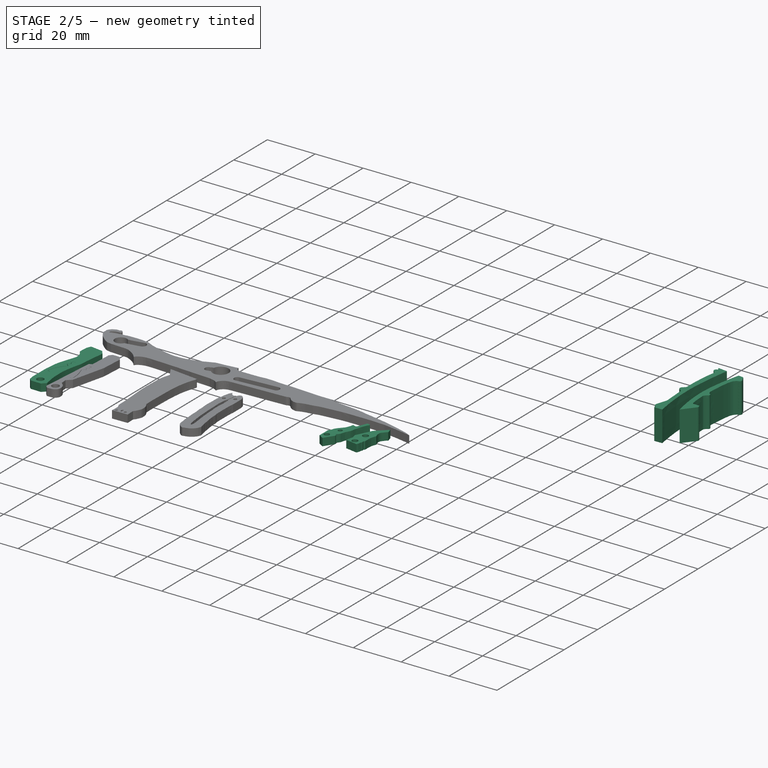
[diagram: stage 2 of 5 — iso view after this stage's code; geometry added in this stage tinted green]
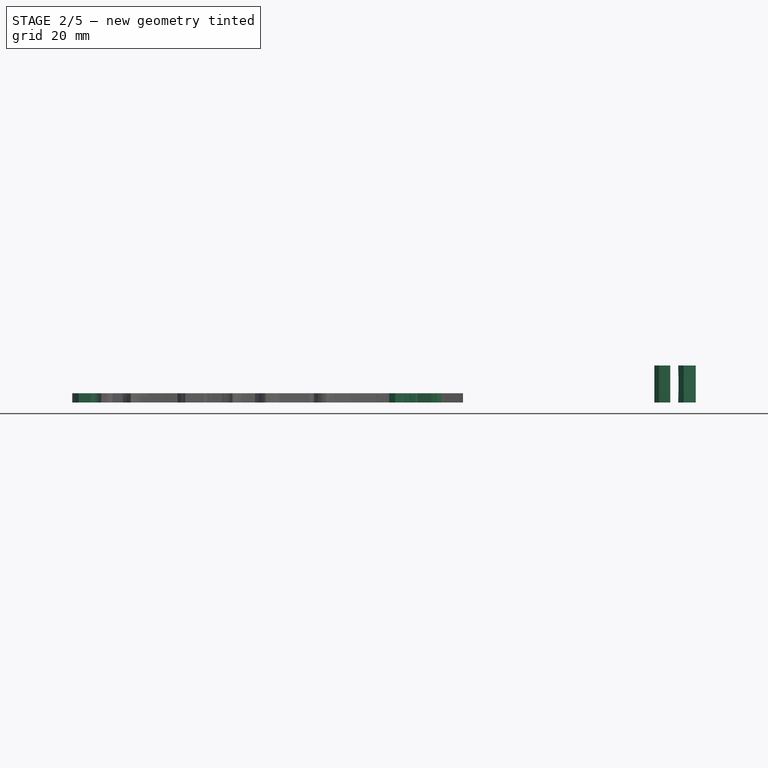
[diagram: stage 2 of 5 — front view after this stage's code; geometry added in this stage tinted green]
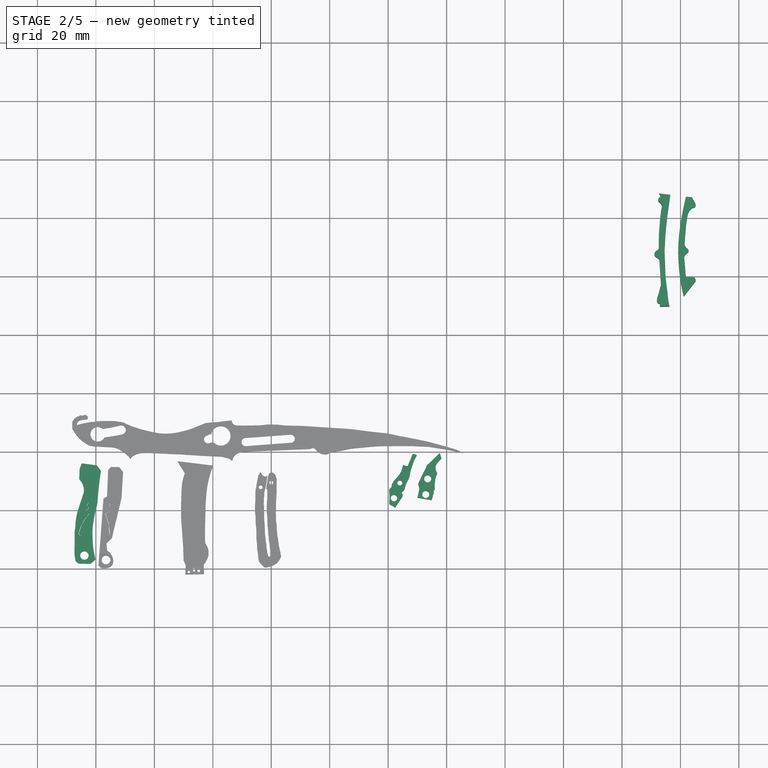
[diagram: stage 2 of 5 — top view after this stage's code; geometry added in this stage tinted green]
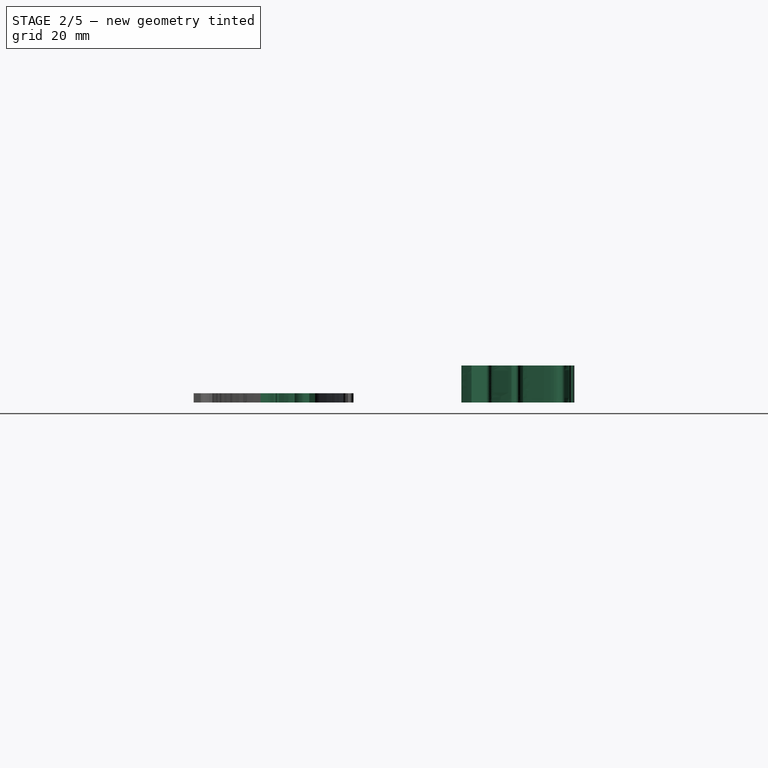
[diagram: stage 2 of 5 — right view after this stage's code; geometry added in this stage tinted green]
FEATURE [PartDesign::Body] Body024
  Group = -> [Sketch024,Pad024]
  Origin = -> Origin024
  Placement = pos=(-97.4,-19.7,0) rot=(0,0,1;0rad)
  Tip = -> Pad024
FEATURE [App::LinkGroup] LinkGroup011
  ElementList = -> [Body023,Body024]
  LinkMode = 0
FEATURE [Sketcher::SketchObject] Sketch025
  FullyConstrained = false
  MapMode = 5
  Support = -> [XY_Plane025]
  sketch-geometry (45):
    g0: LineSegment StartX=17.6973 StartY=59.639 StartZ=0 EndX=18.2721 EndY=57.601 EndZ=0
    g1: LineSegment StartX=17.6973 StartY=59.639 StartZ=0 EndX=13.3076 EndY=55.4584 EndZ=0
    g2: LineSegment StartX=13.3076 StartY=55.4584 StartZ=0 EndX=10.2244 EndY=49.083 EndZ=0
    g3: LineSegment StartX=10.0044 StartY=44.3089 StartZ=0 EndX=14.8226 EndY=43.4772 EndZ=0
    g4: LineSegment StartX=15.971 StartY=47.098 StartZ=0 EndX=15.5271 EndY=46.6327 EndZ=0
    g5: LineSegment StartX=15.5271 StartY=46.6327 StartZ=0 EndX=15.6639 EndY=46.0304 EndZ=0
    g6-g11: Circle x6 (B-spline internal-alignment scaffolding for g12; pole/knot coordinates omitted)
    g12: BSplineCurve PolesCount=6 KnotsCount=4 Degree=3 IsPeriodic=0
    g13-g16: GeomPoint x4 (B-spline internal-alignment scaffolding for g12; pole/knot coordinates omitted)
    g17: LineSegment StartX=10.0044 StartY=44.3089 StartZ=0 EndX=10.6811 EndY=47.4707 EndZ=0
    g18: LineSegment StartX=10.2244 StartY=49.083 StartZ=0 EndX=10.6811 EndY=47.4707 EndZ=0
    g19: Circle CenterX=13.5207 CenterY=50.7768 CenterZ=0 NormalX=0 NormalY=0 NormalZ=1 AngleXU=0 Radius=1.19845
    g20: Circle CenterX=12.8683 CenterY=45.4131 CenterZ=0 NormalX=0 NormalY=0 NormalZ=1 AngleXU=0 Radius=1.1792
    g21-g25: Circle x5 (B-spline internal-alignment scaffolding for g26; pole/knot coordinates omitted)
    g26: BSplineCurve PolesCount=5 KnotsCount=3 Degree=3 IsPeriodic=0
    g27: GeomPoint X=15.971 Y=47.098 Z=0
    g28: GeomPoint X=16.1867 Y=50.9042 Z=0
    g29: GeomPoint X=16.8044 Y=52.6117 Z=0
    g30-g37: Circle x8 (B-spline internal-alignment scaffolding for g38; pole/knot coordinates omitted)
    g38: BSplineCurve PolesCount=8 KnotsCount=6 Degree=3 IsPeriodic=0
    g39-g44: GeomPoint x6 (B-spline internal-alignment scaffolding for g38; pole/knot coordinates omitted)
  constraints (46):
    c: Coincident(g1,g0)
    c: Coincident(g2,g1)
    c: Coincident(g5,g4)
    c: Coincident(g12,g5)
    c: Weight(g6) = 1
    c: Equal(g6,g7)
    c: Equal(g6,g8)
    c: Equal(g6,g9)
    c: PointOnObject(g9,g7)
    c: Equal(g6,g10)
    c: PointOnObject(g10,g8)
    c: Equal(g6,g11)
    c: Coincident(g12,g3)
    c: InternalAlignment(g6-g11 -> g12) x6
    c: InternalAlignment(g13-g16 -> g12) x4
    c: Coincident(g17,g3)
    c: Coincident(g18,g2)
    c: Coincident(g18,g17)
    c: Coincident(g26,g4)
    c: Weight(g21) = 1
    c: Equal(g21,g22)
    c: Equal(g21,g23)
    c: PointOnObject(g23,g22)
    c: Equal(g21,g24)
    c: PointOnObject(g24,g23)
    c: Equal(g21,g25)
    c: InternalAlignment(g21-g25 -> g26) x5
    c: InternalAlignment(g27,g26)
    c: InternalAlignment(g28,g26)
    c: InternalAlignment(g29,g26)
    c: Coincident(g38,g26)
    c: Weight(g30) = 1
    c: Equal(g30,g31)
    c: Equal(g30,g32)
    c: PointOnObject(g32,g31)
    c: Equal(g30,g33)
    c: PointOnObject(g33,g32)
    c: Equal(g30,g34)
    c: PointOnObject(g34,g33)
    c: Equal(g30,g35)
    c: PointOnObject(g35,g34)
    c: Equal(g30,g36)
    c: Equal(g30,g37)
    c: Coincident(g38,g0)
    c: InternalAlignment(g30-g37 -> g38) x8
    c: InternalAlignment(g39-g44 -> g38) x6
FEATURE [PartDesign::Pad] Pad025
  Direction = (1,1,1)
  Length = 3.175
  Length2 = 100
  Profile = -> Sketch025
  Type = 0
FEATURE [PartDesign::Body] Body025
  Group = -> [Sketch025,Pad025]
  Origin = -> Origin025
  Tip = -> Pad025
FEATURE [Sketcher::SketchObject] Sketch026
  FullyConstrained = false
  MapMode = 5
  Support = -> [XY_Plane026]
  sketch-geometry (90):
    g0: Circle CenterX=3.97505 CenterY=49.3498 CenterZ=0 NormalX=0 NormalY=0 NormalZ=1 AngleXU=0 Radius=0.842627
    g1: Circle CenterX=1.98926 CenterY=44.1763 CenterZ=0 NormalX=0 NormalY=0 NormalZ=1 AngleXU=0 Radius=1.09865
    g2: Circle CenterX=8.38534 CenterY=59.2727 CenterZ=0 NormalX=0 NormalY=0 NormalZ=1 AngleXU=0 Radius=1
    g3: Circle CenterX=9.32742 CenterY=59.3004 CenterZ=0 NormalX=0 NormalY=0 NormalZ=1 AngleXU=0 Radius=1
    g4: Circle CenterX=9.7828 CenterY=58.81 CenterZ=0 NormalX=0 NormalY=0 NormalZ=1 AngleXU=0 Radius=1
    g5: BSplineCurve PolesCount=3 KnotsCount=2 Degree=2 IsPeriodic=0
    g6: GeomPoint X=8.38534 Y=59.2727 Z=0
    g7: GeomPoint X=9.7828 Y=58.81 Z=0
    g8: LineSegment StartX=8.38534 StartY=59.2727 StartZ=0 EndX=6.68458 EndY=55.1732 EndZ=0
    g9-g12: Circle x4 (B-spline internal-alignment scaffolding for g13; pole/knot coordinates omitted)
    g13: BSplineCurve PolesCount=4 KnotsCount=2 Degree=3 IsPeriodic=0
    g14: GeomPoint X=6.68458 Y=55.1732 Z=0
    g15: GeomPoint X=5.06773 Y=55.5343 Z=0
    g16-g25: Circle x10 (B-spline internal-alignment scaffolding for g26; pole/knot coordinates omitted)
    g26: BSplineCurve PolesCount=10 KnotsCount=8 Degree=3 IsPeriodic=0
    g27-g34: GeomPoint x8 (B-spline internal-alignment scaffolding for g26; pole/knot coordinates omitted)
    g35-g41: Circle x7 (B-spline internal-alignment scaffolding for g42; pole/knot coordinates omitted)
    g42: BSplineCurve PolesCount=7 KnotsCount=5 Degree=3 IsPeriodic=0
    g43-g47: GeomPoint x5 (B-spline internal-alignment scaffolding for g42; pole/knot coordinates omitted)
    g48: LineSegment StartX=0.378145 StartY=42.1495 StartZ=0 EndX=2.41719 EndY=40.9706 EndZ=0
    g49: LineSegment StartX=2.41719 StartY=40.9706 StartZ=0 EndX=4.90114 EndY=44.6872 EndZ=0
    g50-g54: Circle x5 (B-spline internal-alignment scaffolding for g55; pole/knot coordinates omitted)
    g55: BSplineCurve PolesCount=5 KnotsCount=3 Degree=3 IsPeriodic=0
    g56: GeomPoint X=4.90114 Y=44.6872 Z=0
    g57: GeomPoint X=4.94302 Y=45.4 Z=0
    g58: GeomPoint X=4.52743 Y=45.9735 Z=0
    g59-g74: Circle x16 (B-spline internal-alignment scaffolding for g75; pole/knot coordinates omitted)
    g75: BSplineCurve PolesCount=16 KnotsCount=14 Degree=3 IsPeriodic=0
    g76-g89: GeomPoint x14 (B-spline internal-alignment scaffolding for g75; pole/knot coordinates omitted)
  constraints (81):
    c: Weight(g2) = 1
    c: Equal(g2,g3)
    c: Equal(g2,g4)
    c: InternalAlignment(g2,g5)
    c: InternalAlignment(g3,g5)
    c: InternalAlignment(g4,g5)
    c: InternalAlignment(g6,g5)
    c: InternalAlignment(g7,g5)
    c: Coincident(g8,g5)
    c: Coincident(g13,g8)
    c: Weight(g9) = 1
    c: Equal(g9,g10)
    c: Equal(g9,g11)
    c: Equal(g9,g12)
    c: InternalAlignment(g9-g12 -> g13) x4
    c: InternalAlignment(g14,g13)
    c: InternalAlignment(g15,g13)
    c: Coincident(g26,g13)
    c: Weight(g16) = 1
    c: Equal(g16,g17)
    c: Equal(g16,g18)
    c: PointOnObject(g18,g17)
    c: Equal(g16,g19)
    c: PointOnObject(g19,g18)
    c: Equal(g16,g20)
    c: PointOnObject(g20,g19)
    c: Equal(g16,g21)
    c: PointOnObject(g21,g20)
    c: Equal(g16,g22)
    c: PointOnObject(g22,g21)
    c: Equal(g16,g23)
    c: PointOnObject(g23,g22)
    c: Equal(g16,g24)
    c: PointOnObject(g24,g23)
    c: Equal(g16,g25)
    c: InternalAlignment(g16-g25 -> g26) x10
    c: InternalAlignment(g27-g34 -> g26) x8
    c: Coincident(g42,g26)
    c: Weight(g35) = 1
    c: Equal(g35,g36)
    c: Equal(g35,g37)
    c: Equal(g35,g38)
    c: PointOnObject(g38,g36)
    c: Equal(g35,g39)
    c: PointOnObject(g39,g37)
    c: Equal(g35,g40)
    c: PointOnObject(g40,g39)
    c: Equal(g35,g41)
    c: InternalAlignment(g35-g41 -> g42) x7
    c: InternalAlignment(g43-g47 -> g42) x5
    c: Coincident(g48,g42)
    c: Coincident(g49,g48)
    c: Coincident(g55,g49)
    c: Weight(g50) = 1
    c: Equal(g50,g51)
    c: Equal(g50,g52)
    c: Equal(g50,g53)
    c: PointOnObject(g53,g50)
    c: Equal(g50,g54)
    c: InternalAlignment(g50-g54 -> g55) x5
    c: InternalAlignment(g56,g55)
    c: InternalAlignment(g57,g55)
    c: InternalAlignment(g58,g55)
    c: Coincident(g75,g55)
    c: Weight(g59) = 1
    c: Equal(g59,g60)
    c: Equal(g59,g61)
    c: Equal(g59,g62)
    c: PointOnObject(g62,g60)
    c: Equal(g59,g63)
    c: PointOnObject(g63,g61)
    c: Equal(g59,g64)
    c: PointOnObject(g64,g63)
    c: Equal(g59,g65)
    c: PointOnObject(g65,g64)
    c: Equal(g59, g66-g69) x4
    c: PointOnObject(g69,g67)
    c: Equal(g59, g70-g74) x5
    c: Coincident(g75,g5)
    c: InternalAlignment(g59-g74 -> g75) x16
    c: InternalAlignment(g76-g89 -> g75) x14
FEATURE [PartDesign::Pad] Pad026
  Direction = (1,1,1)
  Length = 3.175
  Length2 = 100
  Profile = -> Sketch026
  Type = 0
FEATURE [PartDesign::Body] Body026
  Group = -> [Sketch026,Pad026]
  Origin = -> Origin026
  Tip = -> Pad026
FEATURE [App::LinkGroup] LinkGroup012
  ElementList = -> [Body025,Body026]
  LinkMode = 0
FEATURE [Sketcher::SketchObject] Sketch027
  FullyConstrained = false
  MapMode = 5
  Support = -> [XY_Plane027]
  sketch-geometry (152):
    g0: LineSegment StartX=92.9461 StartY=109.628 StartZ=0 EndX=96.2545 EndY=109.696 EndZ=0
    g1: LineSegment StartX=92.9461 StartY=109.628 StartZ=0 EndX=92.9602 EndY=110.583 EndZ=0
    g2-g41: Circle x40 (B-spline internal-alignment scaffolding for g42; pole/knot coordinates omitted)
    g42: BSplineCurve PolesCount=40 KnotsCount=38 Degree=3 IsPeriodic=0
    g43-g80: GeomPoint x38 (B-spline internal-alignment scaffolding for g42; pole/knot coordinates omitted)
    g81: LineSegment StartX=93.3447 StartY=147.064 StartZ=0 EndX=92.6737 EndY=148.293 EndZ=0
    g82: LineSegment StartX=92.6737 StartY=148.293 StartZ=0 EndX=96.5374 EndY=147.814 EndZ=0
    g83-g117: Circle x35 (B-spline internal-alignment scaffolding for g118; pole/knot coordinates omitted)
    g118: BSplineCurve PolesCount=35 KnotsCount=33 Degree=3 IsPeriodic=0
    g119-g151: GeomPoint x33 (B-spline internal-alignment scaffolding for g118; pole/knot coordinates omitted)
  constraints (89):
    c: Coincident(g1,g0)
    c: Coincident(g42,g1)
    c: Weight(g2) = 1
    c: Equal(g2,g3)
    c: Equal(g2,g4)
    c: Equal(g2,g5)
    c: PointOnObject(g5,g4)
    c: Equal(g2, g6-g14) x9
    c: PointOnObject(g14,g12)
    c: Equal(g2,g15)
    c: Equal(g2,g16)
    c: PointOnObject(g16,g15)
    c: Equal(g2, g17-g20) x4
    c: PointOnObject(g20,g17)
    c: Equal(g2,g21)
    c: PointOnObject(g21,g18)
    c: Equal(g2,g22)
    c: PointOnObject(g22,g20)
    c: Equal(g2,g23)
    c: Equal(g2,g24)
    c: Equal(g2,g25)
    c: PointOnObject(g25,g23)
    c: Equal(g2, g26-g33) x8
    c: PointOnObject(g33,g31)
    c: Equal(g2, g34-g39) x6
    c: PointOnObject(g39,g36)
    c: Equal(g2,g40)
    c: PointOnObject(g40,g37)
    c: Equal(g2,g41)
    c: PointOnObject(g42,g38)
    c: InternalAlignment(g2-g41 -> g42) x40
    c: InternalAlignment(g43-g80 -> g42) x38
    c: Coincident(g81,g42)
    c: Tangent(g81,g38)
    c: Coincident(g82,g81)
    c: Coincident(g118,g82)
    c: Weight(g83) = 1
    c: Equal(g83,g84)
    c: Equal(g83,g85)
    c: PointOnObject(g85,g84)
    c: Equal(g83,g86)
    c: PointOnObject(g86,g85)
    c: Equal(g83,g87)
    c: PointOnObject(g87,g86)
    c: Equal(g83,g88)
    c: PointOnObject(g88,g87)
    c: Equal(g83,g89)
    c: PointOnObject(g89,g88)
    c: Equal(g83,g90)
    c: PointOnObject(g90,g89)
    c: Equal(g83,g91)
    c: PointOnObject(g91,g90)
    c: Equal(g83,g92)
    c: PointOnObject(g92,g91)
    c: Equal(g83,g93)
    c: PointOnObject(g93,g92)
    c: Equal(g83,g94)
    c: PointOnObject(g94,g93)
    c: Equal(g83,g95)
    c: PointOnObject(g95,g94)
    c: Equal(g83,g96)
    c: PointOnObject(g96,g95)
    c: Equal(g83,g97)
    c: PointOnObject(g97,g96)
    c: Equal(g83,g98)
    c: PointOnObject(g98,g97)
    c: Equal(g83,g99)
    c: PointOnObject(g99,g98)
    c: Equal(g83,g100)
    c: PointOnObject(g100,g99)
    c: Equal(g83,g101)
    c: PointOnObject(g101,g100)
    c: Equal(g83,g102)
    c: PointOnObject(g102,g101)
    c: Equal(g83,g103)
    c: PointOnObject(g103,g102)
    c: Equal(g83,g104)
    c: PointOnObject(g104,g103)
    c: Equal(g83,g105)
    c: PointOnObject(g105,g104)
    c: Equal(g83, g106-g109) x4
    c: PointOnObject(g109,g108)
    c: Equal(g83,g110)
    c: Equal(g83,g111)
    c: PointOnObject(g111,g110)
    c: Equal(g83, g112-g117) x6
    c: Coincident(g118,g0)
    c: InternalAlignment(g83-g117 -> g118) x35
    c: InternalAlignment(g119-g151 -> g118) x33
FEATURE [PartDesign::Pad] Pad027
  Direction = (1,1,1)
  Length = 12.7
  Length2 = 100
  Profile = -> Sketch027
  Type = 0
FEATURE [PartDesign::Body] Body027
  Group = -> [Sketch027,Pad027]
  Origin = -> Origin027
  Tip = -> Pad027
FEATURE [Sketcher::SketchObject] Sketch028
  FullyConstrained = false
  MapMode = 5
  Support = -> [XY_Plane028]
  sketch-geometry (157):
    g0: LineSegment StartX=101.861 StartY=147.178 StartZ=0 EndX=103.795 EndY=146.974 EndZ=0
    g1: LineSegment StartX=102.666 StartY=119.576 StartZ=0 EndX=104.431 EndY=119.576 EndZ=0
    g2-g19: Circle x18 (B-spline internal-alignment scaffolding for g20; pole/knot coordinates omitted)
    g20: BSplineCurve PolesCount=18 KnotsCount=16 Degree=3 IsPeriodic=0
    g21-g36: GeomPoint x16 (B-spline internal-alignment scaffolding for g20; pole/knot coordinates omitted)
    g37-g71: Circle x35 (B-spline internal-alignment scaffolding for g72; pole/knot coordinates omitted)
    g72: BSplineCurve PolesCount=35 KnotsCount=33 Degree=3 IsPeriodic=0
    g73-g105: GeomPoint x33 (B-spline internal-alignment scaffolding for g72; pole/knot coordinates omitted)
    g106-g114: Circle x9 (B-spline internal-alignment scaffolding for g115; pole/knot coordinates omitted)
    g115: BSplineCurve PolesCount=9 KnotsCount=7 Degree=3 IsPeriodic=0
    g116-g122: GeomPoint x7 (B-spline internal-alignment scaffolding for g115; pole/knot coordinates omitted)
    g123: LineSegment StartX=104.85 StartY=117.846 StartZ=0 EndX=101.1 EndY=113.102 EndZ=0
    g124-g140: Circle x17 (B-spline internal-alignment scaffolding for g141; pole/knot coordinates omitted)
    g141: BSplineCurve PolesCount=17 KnotsCount=15 Degree=3 IsPeriodic=0
    g142-g156: GeomPoint x15 (B-spline internal-alignment scaffolding for g141; pole/knot coordinates omitted)
  constraints (50):
    c: Horizontal(g1)
    c: Coincident(g20,g1)
    c: Weight(g2) = 1
    c: Equal(g2,g3)
    c: Equal(g2,g4)
    c: PointOnObject(g4,g3)
    c: Equal(g2, g5-g8) x4
    c: PointOnObject(g8,g7)
    c: Equal(g2,g9)
    c: Equal(g2,g10)
    c: PointOnObject(g10,g9)
    c: Equal(g2, g11-g18) x8
    c: PointOnObject(g18,g15)
    c: Equal(g2,g19)
    c: InternalAlignment(g2-g19 -> g20) x18
    c: InternalAlignment(g21-g36 -> g20) x16
    c: Coincident(g72,g20)
    c: Weight(g37) = 1
    c: Equal(g37,g38)
    c: Equal(g37,g39)
    c: PointOnObject(g39,g37)
    c: Equal(g37,g40)
    c: PointOnObject(g40,g39)
    c: Equal(g37,g41)
    c: Equal(g37,g42)
    c: PointOnObject(g42,g40)
    c: Equal(g37, g43-g58) x16
    c: PointOnObject(g58,g55)
    c: Equal(g37,g59)
    c: Equal(g37,g60)
    c: PointOnObject(g60,g57)
    c: Equal(g37, g61-g69) x9
    c: PointOnObject(g69,g66)
    c: Equal(g37,g70)
    c: Equal(g37,g71)
    c: Coincident(g72,g0)
    c: InternalAlignment(g37-g71 -> g72) x35
    c: InternalAlignment(g73-g105 -> g72) x33
    c: Coincident(g115,g1)
    c: Weight(g106) = 1
    c: Equal(g106, g107-g114) x8
    c: InternalAlignment(g106-g114 -> g115) x9
    c: InternalAlignment(g116-g122 -> g115) x7
    c: Coincident(g123,g115)
    c: Coincident(g141,g123)
    c: Weight(g124) = 1
    c: Equal(g124, g125-g140) x16
    c: Coincident(g141,g0)
    c: InternalAlignment(g124-g140 -> g141) x17
    c: InternalAlignment(g142-g156 -> g141) x15
FEATURE [PartDesign::Pad] Pad028
  Direction = (1,1,1)
  Length = 12.7
  Length2 = 100
  Profile = -> Sketch028
  Type = 0
FEATURE [PartDesign::Body] Body028
  Group = -> [Sketch028,Pad028]
  Origin = -> Origin028
  Tip = -> Pad028
FEATURE [App::LinkGroup] LinkGroup013  label="CurveThings"
  ElementList = -> [Body027,Body028]
  LinkMode = 0
FEATURE [Sketcher::SketchObject] Sketch029
  FullyConstrained = false
  MapMode = 5
  Support = -> [XY_Plane029]
  sketch-geometry (192):
    g0: LineSegment StartX=-104.82 StartY=56.0832 StartZ=0 EndX=-99.6923 EndY=55.3781 EndZ=0
    g1: LineSegment StartX=-99.6923 StartY=55.3781 StartZ=0 EndX=-98.2748 EndY=53.5517 EndZ=0
    g2: LineSegment StartX=-100.176 StartY=23.2264 StartZ=0 EndX=-101.74 EndY=21.7205 EndZ=0
    g3-g17: Circle x15 (B-spline internal-alignment scaffolding for g18; pole/knot coordinates omitted)
    g18: BSplineCurve PolesCount=15 KnotsCount=13 Degree=3 IsPeriodic=0
    g19-g31: GeomPoint x13 (B-spline internal-alignment scaffolding for g18; pole/knot coordinates omitted)
    g32: LineSegment StartX=-101.74 StartY=21.7205 StartZ=0 EndX=-105.957 EndY=21.7997 EndZ=0
    g33-g63: Circle x31 (B-spline internal-alignment scaffolding for g64; pole/knot coordinates omitted)
    g64: BSplineCurve PolesCount=31 KnotsCount=29 Degree=3 IsPeriodic=0
    g65-g93: GeomPoint x29 (B-spline internal-alignment scaffolding for g64; pole/knot coordinates omitted)
    g94: LineSegment StartX=-104.82 StartY=56.0832 StartZ=0 EndX=-105.559 EndY=54.2156 EndZ=0
    g95: LineSegment StartX=-105.706 StartY=50.7012 StartZ=0 EndX=-105.559 EndY=54.2156 EndZ=0
    g96: LineSegment StartX=-107.043 StartY=22.8324 StartZ=0 EndX=-105.957 EndY=21.7997 EndZ=0
    g97: Circle CenterX=-103.921 CenterY=24.5501 CenterZ=0 NormalX=0 NormalY=0 NormalZ=1 AngleXU=0 Radius=1.43714
    g98: LineSegment StartX=-102.235 StartY=38.7513 StartZ=0 EndX=-103.426 EndY=39.9337 EndZ=0
    g99: LineSegment StartX=-103.426 StartY=39.9337 StartZ=0 EndX=-102.317 EndY=40.7673 EndZ=0
    g100: LineSegment StartX=-102.317 StartY=40.7673 StartZ=0 EndX=-102.917 EndY=41.7296 EndZ=0
    g101: LineSegment StartX=-103.027 StartY=41.7452 StartZ=0 EndX=-102.482 EndY=40.8115 EndZ=0
    g102: LineSegment StartX=-102.482 StartY=40.8115 StartZ=0 EndX=-103.609 EndY=39.9767 EndZ=0
    g103: LineSegment StartX=-103.609 StartY=39.9767 StartZ=0 EndX=-102.431 EndY=38.7624 EndZ=0
    g104-g108: Circle x5 (B-spline internal-alignment scaffolding for g109; pole/knot coordinates omitted)
    g109: BSplineCurve PolesCount=5 KnotsCount=3 Degree=3 IsPeriodic=0
    g110: GeomPoint X=-102.917 Y=41.7296 Z=0
    g111: GeomPoint X=-102.443 Y=42.545 Z=0
    g112: GeomPoint X=-101.789 Y=42.4765 Z=0
    g113-g117: Circle x5 (B-spline internal-alignment scaffolding for g118; pole/knot coordinates omitted)
    g118: BSplineCurve PolesCount=5 KnotsCount=3 Degree=3 IsPeriodic=0
    g119: GeomPoint X=-101.739 Y=42.5274 Z=0
    g120: GeomPoint X=-102.539 Y=42.612 Z=0
    g121: GeomPoint X=-103.027 Y=41.7452 Z=0
    g122-g136: Circle x15 (B-spline internal-alignment scaffolding for g137; pole/knot coordinates omitted)
    g137: BSplineCurve PolesCount=15 KnotsCount=13 Degree=3 IsPeriodic=0
    g138-g150: GeomPoint x13 (B-spline internal-alignment scaffolding for g137; pole/knot coordinates omitted)
    g151-g165: Circle x15 (B-spline internal-alignment scaffolding for g166; pole/knot coordinates omitted)
    g166: BSplineCurve PolesCount=15 KnotsCount=13 Degree=3 IsPeriodic=0
    g167-g179: GeomPoint x13 (B-spline internal-alignment scaffolding for g166; pole/knot coordinates omitted)
    g180: Circle CenterX=-104.812 CenterY=31.5839 CenterZ=0 NormalX=0 NormalY=0 NormalZ=1 AngleXU=0 Radius=1
    g181: Circle CenterX=-104.724 CenterY=31.5309 CenterZ=0 NormalX=0 NormalY=0 NormalZ=1 AngleXU=0 Radius=1
    g182: Circle CenterX=-104.804 CenterY=31.4662 CenterZ=0 NormalX=0 NormalY=0 NormalZ=1 AngleXU=0 Radius=1
    g183: BSplineCurve PolesCount=3 KnotsCount=2 Degree=2 IsPeriodic=0
    g184: GeomPoint X=-104.812 Y=31.5839 Z=0
    g185: GeomPoint X=-104.804 Y=31.4662 Z=0
    g186: Circle CenterX=-101.789 CenterY=42.4765 CenterZ=0 NormalX=0 NormalY=0 NormalZ=1 AngleXU=0 Radius=1
    g187: Circle CenterX=-101.722 CenterY=42.4639 CenterZ=0 NormalX=0 NormalY=0 NormalZ=1 AngleXU=0 Radius=1
    g188: Circle CenterX=-101.739 CenterY=42.5274 CenterZ=0 NormalX=0 NormalY=0 NormalZ=1 AngleXU=0 Radius=1
    g189: BSplineCurve PolesCount=3 KnotsCount=2 Degree=2 IsPeriodic=0
    g190: GeomPoint X=-101.789 Y=42.4765 Z=0
    g191: GeomPoint X=-101.739 Y=42.5274 Z=0
  constraints (87):
    c: Coincident(g1,g0)
    c: Coincident(g18,g2)
    c: Weight(g3) = 1
    c: Equal(g3, g4-g17) x14
    c: Coincident(g18,g1)
    c: InternalAlignment(g3-g17 -> g18) x15
    c: InternalAlignment(g19-g31 -> g18) x13
    c: Coincident(g32,g2)
    c: Weight(g33) = 1
    c: Equal(g33, g34-g51) x18
    c: PointOnObject(g51,g50)
    c: Equal(g33, g52-g63) x12
    c: InternalAlignment(g33-g63 -> g64) x31
    c: InternalAlignment(g65-g93 -> g64) x29
    c: Coincident(g94,g0)
    c: Coincident(g95,g64)
    c: Coincident(g95,g94)
    c: Coincident(g96,g64)
    c: Coincident(g96,g32)
    c: Coincident(g99,g98)
    c: Coincident(g100,g99)
    c: Coincident(g102,g101)
    c: Coincident(g103,g102)
    c: Coincident(g109,g100)
    c: Weight(g104) = 1
    c: Equal(g104, g105-g108) x4
    c: PointOnObject(g109,g105)
    c: InternalAlignment(g104-g108 -> g109) x5
    c: InternalAlignment(g110,g109)
    c: InternalAlignment(g111,g109)
    c: InternalAlignment(g112,g109)
    c: Weight(g113) = 1
    c: Equal(g113,g114)
    c: Equal(g113,g115)
    c: PointOnObject(g115,g113)
    c: Equal(g113,g116)
    c: Equal(g113,g117)
    c: Coincident(g118,g101)
    c: InternalAlignment(g113-g117 -> g118) x5
    c: InternalAlignment(g119,g118)
    c: InternalAlignment(g120,g118)
    c: InternalAlignment(g121,g118)
    c: Coincident(g137,g103)
    c: Weight(g122) = 1
    c: Equal(g122,g123)
    c: Equal(g122,g124)
    c: PointOnObject(g124,g123)
    c: Equal(g122,g125)
    c: PointOnObject(g125,g124)
    c: Equal(g122,g126)
    c: PointOnObject(g126,g125)
    c: Equal(g122,g127)
    c: PointOnObject(g127,g126)
    c: Equal(g122,g128)
    c: PointOnObject(g128,g127)
    c: Equal(g122,g129)
    c: PointOnObject(g129,g128)
    c: Equal(g122, g130-g136) x7
    c: InternalAlignment(g122-g136 -> g137) x15
    c: InternalAlignment(g138-g150 -> g137) x13
    c: Coincident(g166,g98)
    c: Weight(g151) = 1
    c: Equal(g151, g152-g155) x4
    c: PointOnObject(g155,g154)
    c: Equal(g151, g156-g165) x10
    c: InternalAlignment(g151-g165 -> g166) x15
    c: InternalAlignment(g167-g179 -> g166) x13
    c: Coincident(g183,g166)
    c: Weight(g180) = 1
    c: Equal(g180,g181)
    c: Equal(g180,g182)
    c: Coincident(g183,g137)
    c: InternalAlignment(g180,g183)
    c: InternalAlignment(g181,g183)
    c: InternalAlignment(g182,g183)
    c: InternalAlignment(g184,g183)
    c: InternalAlignment(g185,g183)
    c: Coincident(g189,g109)
    c: Weight(g186) = 1
    c: Equal(g186,g187)
    c: Equal(g186,g188)
    c: Coincident(g189,g118)
    c: InternalAlignment(g186,g189)
    c: InternalAlignment(g187,g189)
    c: InternalAlignment(g188,g189)
    c: InternalAlignment(g190,g189)
    c: InternalAlignment(g191,g189)
FEATURE [PartDesign::Pad] Pad029
  Direction = (1,1,1)
  Length = 3.175
  Length2 = 100
  Profile = -> Sketch029
  Type = 0
FEATURE [PartDesign::Body] Body029
  Group = -> [Sketch029,Pad029]
  Origin = -> Origin029
  Tip = -> Pad029
FEATURE [Sketcher::SketchObject] Sketch034
  FullyConstrained = false
  MapMode = 5
  Support = -> [XY_Plane032]
  sketch-geometry (96):
    g0: LineSegment StartX=-96.187 StartY=44.6961 StartZ=0 EndX=-95.804 EndY=53.7597 EndZ=0
    g1: LineSegment StartX=-95.804 StartY=53.7597 StartZ=0 EndX=-94.8466 EndY=54.8447 EndZ=0
    g2: LineSegment StartX=-94.8466 StartY=54.8447 StartZ=0 EndX=-92.0381 EndY=54.8447 EndZ=0
    g3: LineSegment StartX=-92.0381 StartY=54.8447 StartZ=0 EndX=-90.6978 EndY=53.1214 EndZ=0
    g4: LineSegment StartX=-90.6978 StartY=53.1214 StartZ=0 EndX=-91.2084 EndY=44.3131 EndZ=0
    g5: LineSegment StartX=-91.2084 StartY=44.3131 StartZ=0 EndX=-94.5242 EndY=30.5562 EndZ=0
    g6: LineSegment StartX=-94.5242 StartY=30.5562 StartZ=0 EndX=-96.367 EndY=28.7888 EndZ=0
    g7: LineSegment StartX=-96.187 StartY=44.6961 StartZ=0 EndX=-97.3944 EndY=44.0944 EndZ=0
    g8: LineSegment StartX=-96.367 StartY=28.7888 StartZ=0 EndX=-96.1531 EndY=26.2645 EndZ=0
    g9-g16: Circle x8 (B-spline internal-alignment scaffolding for g17; pole/knot coordinates omitted)
    g17: BSplineCurve PolesCount=8 KnotsCount=6 Degree=3 IsPeriodic=0
    g18-g23: GeomPoint x6 (B-spline internal-alignment scaffolding for g17; pole/knot coordinates omitted)
    g24: LineSegment StartX=-98.1486 StartY=20.212 StartZ=0 EndX=-99.1245 EndY=21.2351 EndZ=0
    g25: LineSegment StartX=-97.3944 StartY=44.0944 StartZ=0 EndX=-99.1245 EndY=21.2351 EndZ=0
    g26: LineSegment StartX=-96.469 StartY=20.2533 StartZ=0 EndX=-98.1486 EndY=20.212 EndZ=0
    g27: Circle CenterX=-96.5234 CenterY=23.0321 CenterZ=0 NormalX=0 NormalY=0 NormalZ=1 AngleXU=0 Radius=1.487
    g28-g34: Circle x7 (B-spline internal-alignment scaffolding for g35; pole/knot coordinates omitted)
    g35: BSplineCurve PolesCount=7 KnotsCount=5 Degree=3 IsPeriodic=0
    g36-g40: GeomPoint x5 (B-spline internal-alignment scaffolding for g35; pole/knot coordinates omitted)
    g41: LineSegment StartX=-95.7836 StartY=41.1292 StartZ=0 EndX=-96.1544 EndY=40.8458 EndZ=0
    g42: LineSegment StartX=-96.1544 StartY=40.8458 StartZ=0 EndX=-95.3442 EndY=39.7566 EndZ=0
    g43: LineSegment StartX=-95.3442 StartY=39.7566 StartZ=0 EndX=-96.6458 EndY=38.8462 EndZ=0
    g44: LineSegment StartX=-95.4777 StartY=39.7994 StartZ=0 EndX=-96.2877 EndY=40.878 EndZ=0
    g45: LineSegment StartX=-96.2877 StartY=40.878 StartZ=0 EndX=-95.8522 EndY=41.1655 EndZ=0
    g46-g52: Circle x7 (B-spline internal-alignment scaffolding for g53; pole/knot coordinates omitted)
    g53: BSplineCurve PolesCount=7 KnotsCount=5 Degree=3 IsPeriodic=0
    g54-g58: GeomPoint x5 (B-spline internal-alignment scaffolding for g53; pole/knot coordinates omitted)
    g59: LineSegment StartX=-95.4777 StartY=39.7994 StartZ=0 EndX=-96.765 EndY=38.9027 EndZ=0
    g60: LineSegment StartX=-96.765 StartY=38.9027 StartZ=0 EndX=-96.0034 EndY=36.4049 EndZ=0
    g61: LineSegment StartX=-95.8322 StartY=36.3186 StartZ=0 EndX=-96.6458 EndY=38.8462 EndZ=0
    g62-g67: Circle x6 (B-spline internal-alignment scaffolding for g68; pole/knot coordinates omitted)
    g68: BSplineCurve PolesCount=6 KnotsCount=4 Degree=3 IsPeriodic=0
    g69-g72: GeomPoint x4 (B-spline internal-alignment scaffolding for g68; pole/knot coordinates omitted)
    g73-g78: Circle x6 (B-spline internal-alignment scaffolding for g79; pole/knot coordinates omitted)
    g79: BSplineCurve PolesCount=6 KnotsCount=4 Degree=3 IsPeriodic=0
    g80-g83: GeomPoint x4 (B-spline internal-alignment scaffolding for g79; pole/knot coordinates omitted)
    g84: Circle CenterX=-96.4668 CenterY=31.4063 CenterZ=0 NormalX=0 NormalY=0 NormalZ=1 AngleXU=0 Radius=1
    g85: Circle CenterX=-96.5429 CenterY=31.4968 CenterZ=0 NormalX=0 NormalY=0 NormalZ=1 AngleXU=0 Radius=1
    g86: Circle CenterX=-96.2774 CenterY=31.4183 CenterZ=0 NormalX=0 NormalY=0 NormalZ=1 AngleXU=0 Radius=1
    g87: BSplineCurve PolesCount=3 KnotsCount=2 Degree=2 IsPeriodic=0
    g88: GeomPoint X=-96.4668 Y=31.4063 Z=0
    g89: GeomPoint X=-96.2774 Y=31.4183 Z=0
    g90: Circle CenterX=-96.3447 CenterY=42.8131 CenterZ=0 NormalX=0 NormalY=0 NormalZ=1 AngleXU=0 Radius=1
    g91: Circle CenterX=-96.4366 CenterY=42.7645 CenterZ=0 NormalX=0 NormalY=0 NormalZ=1 AngleXU=0 Radius=1
    g92: Circle CenterX=-96.3477 CenterY=42.7303 CenterZ=0 NormalX=0 NormalY=0 NormalZ=1 AngleXU=0 Radius=1
    g93: BSplineCurve PolesCount=3 KnotsCount=2 Degree=2 IsPeriodic=0
    g94: GeomPoint X=-96.3447 Y=42.8131 Z=0
    g95: GeomPoint X=-96.3477 Y=42.7303 Z=0
  constraints (78):
    c: Coincident(g1,g0)
    c: Coincident(g2,g1)
    c: Coincident(g3,g2)
    c: Coincident(g4,g3)
    c: Coincident(g5,g4)
    c: Coincident(g7,g0)
    c: Coincident(g8,g6)
    c: Coincident(g17,g8)
    c: Weight(g9) = 1
    c: Equal(g9, g10-g13) x4
    c: PointOnObject(g13,g12)
    c: Equal(g9,g14)
    c: PointOnObject(g14,g13)
    c: Equal(g9,g15)
    c: PointOnObject(g15,g14)
    c: Equal(g9,g16)
    c: InternalAlignment(g9-g16 -> g17) x8
    c: InternalAlignment(g18-g23 -> g17) x6
    c: Coincident(g25,g7)
    c: Coincident(g25,g24)
    c: Coincident(g26,g17)
    c: Weight(g28) = 1
    c: Equal(g28,g29)
    c: Equal(g28,g30)
    c: Equal(g28,g31)
    c: PointOnObject(g31,g29)
    c: Equal(g28,g32)
    c: Equal(g28,g33)
    c: Equal(g28,g34)
    c: PointOnObject(g35,g31)
    c: InternalAlignment(g28-g34 -> g35) x7
    c: InternalAlignment(g36-g40 -> g35) x5
    c: Coincident(g41,g35)
    c: Coincident(g42,g41)
    c: Tangent(g42,g32)
    c: Coincident(g43,g42)
    c: Coincident(g45,g44)
    c: Weight(g46) = 1
    c: Equal(g46, g47-g50) x4
    c: PointOnObject(g50,g48)
    c: Equal(g46,g51)
    c: Equal(g46,g52)
    c: Coincident(g53,g45)
    c: InternalAlignment(g46-g52 -> g53) x7
    c: InternalAlignment(g54-g58 -> g53) x5
    c: Coincident(g44,g59)
    c: Coincident(g59,g60)
    c: Coincident(g61,g43)
    c: Coincident(g68,g60)
    c: Weight(g62) = 1
    c: Equal(g62, g63-g67) x5
    c: InternalAlignment(g62-g67 -> g68) x6
    c: InternalAlignment(g69-g72 -> g68) x4
    c: Coincident(g79,g61)
    c: Weight(g73) = 1
    c: Equal(g73, g74-g78) x5
    c: InternalAlignment(g73-g78 -> g79) x6
    c: InternalAlignment(g80-g83 -> g79) x4
    c: Coincident(g87,g79)
    c: Weight(g84) = 1
    c: Equal(g84,g85)
    c: Equal(g84,g86)
    c: Coincident(g87,g68)
    c: InternalAlignment(g84,g87)
    c: InternalAlignment(g85,g87)
    c: InternalAlignment(g86,g87)
    c: InternalAlignment(g88,g87)
    c: InternalAlignment(g89,g87)
    c: Coincident(g93,g35)
    c: Weight(g90) = 1
    c: Equal(g90,g91)
    c: Equal(g90,g92)
    c: Coincident(g93,g53)
    c: InternalAlignment(g90,g93)
    c: InternalAlignment(g91,g93)
    c: InternalAlignment(g92,g93)
    c: InternalAlignment(g94,g93)
    c: InternalAlignment(g95,g93)
FEATURE [PartDesign::Pad] Pad034
  Direction = (1,1,1)
  Length = 3.175
  Length2 = 100
  Profile = -> Sketch034
  Type = 0
FEATURE [PartDesign::Body] Body032
  Group = -> [Sketch034,Pad034]
  Origin = -> Origin032
  Tip = -> Pad034
FEATURE [Sketcher::SketchObject] Sketch038
  FullyConstrained = false
  MapMode = 5
  Support = -> [XY_Plane034]
  sketch-geometry (192):
    g0: LineSegment StartX=-104.82 StartY=56.0832 StartZ=0 EndX=-99.6923 EndY=55.3781 EndZ=0
    g1: LineSegment StartX=-99.6923 StartY=55.3781 StartZ=0 EndX=-98.2748 EndY=53.5517 EndZ=0
    g2: LineSegment StartX=-100.176 StartY=23.2264 StartZ=0 EndX=-101.74 EndY=21.7205 EndZ=0
    g3-g17: Circle x15 (B-spline internal-alignment scaffolding for g18; pole/knot coordinates omitted)
    g18: BSplineCurve PolesCount=15 KnotsCount=13 Degree=3 IsPeriodic=0
    g19-g31: GeomPoint x13 (B-spline internal-alignment scaffolding for g18; pole/knot coordinates omitted)
    g32: LineSegment StartX=-101.74 StartY=21.7205 StartZ=0 EndX=-105.957 EndY=21.7997 EndZ=0
    g33-g63: Circle x31 (B-spline internal-alignment scaffolding for g64; pole/knot coordinates omitted)
    g64: BSplineCurve PolesCount=31 KnotsCount=29 Degree=3 IsPeriodic=0
    g65-g93: GeomPoint x29 (B-spline internal-alignment scaffolding for g64; pole/knot coordinates omitted)
    g94: LineSegment StartX=-104.82 StartY=56.0832 StartZ=0 EndX=-105.559 EndY=54.2156 EndZ=0
    g95: LineSegment StartX=-105.706 StartY=50.7012 StartZ=0 EndX=-105.559 EndY=54.2156 EndZ=0
    g96: LineSegment StartX=-107.043 StartY=22.8324 StartZ=0 EndX=-105.957 EndY=21.7997 EndZ=0
    g97: Circle CenterX=-103.921 CenterY=24.5501 CenterZ=0 NormalX=0 NormalY=0 NormalZ=1 AngleXU=0 Radius=1.43714
    g98: LineSegment StartX=-102.235 StartY=38.7513 StartZ=0 EndX=-103.426 EndY=39.9337 EndZ=0
    g99: LineSegment StartX=-103.426 StartY=39.9337 StartZ=0 EndX=-102.317 EndY=40.7673 EndZ=0
    g100: LineSegment StartX=-102.317 StartY=40.7673 StartZ=0 EndX=-102.917 EndY=41.7296 EndZ=0
    g101: LineSegment StartX=-103.027 StartY=41.7452 StartZ=0 EndX=-102.482 EndY=40.8115 EndZ=0
    g102: LineSegment StartX=-102.482 StartY=40.8115 StartZ=0 EndX=-103.609 EndY=39.9767 EndZ=0
    g103: LineSegment StartX=-103.609 StartY=39.9767 StartZ=0 EndX=-102.431 EndY=38.7624 EndZ=0
    g104-g108: Circle x5 (B-spline internal-alignment scaffolding for g109; pole/knot coordinates omitted)
    g109: BSplineCurve PolesCount=5 KnotsCount=3 Degree=3 IsPeriodic=0
    g110: GeomPoint X=-102.917 Y=41.7296 Z=0
    g111: GeomPoint X=-102.443 Y=42.545 Z=0
    g112: GeomPoint X=-101.789 Y=42.4765 Z=0
    g113-g117: Circle x5 (B-spline internal-alignment scaffolding for g118; pole/knot coordinates omitted)
    g118: BSplineCurve PolesCount=5 KnotsCount=3 Degree=3 IsPeriodic=0
    g119: GeomPoint X=-101.739 Y=42.5274 Z=0
    g120: GeomPoint X=-102.539 Y=42.612 Z=0
    g121: GeomPoint X=-103.027 Y=41.7452 Z=0
    g122-g136: Circle x15 (B-spline internal-alignment scaffolding for g137; pole/knot coordinates omitted)
    g137: BSplineCurve PolesCount=15 KnotsCount=13 Degree=3 IsPeriodic=0
    g138-g150: GeomPoint x13 (B-spline internal-alignment scaffolding for g137; pole/knot coordinates omitted)
    g151-g165: Circle x15 (B-spline internal-alignment scaffolding for g166; pole/knot coordinates omitted)
    g166: BSplineCurve PolesCount=15 KnotsCount=13 Degree=3 IsPeriodic=0
    g167-g179: GeomPoint x13 (B-spline internal-alignment scaffolding for g166; pole/knot coordinates omitted)
    g180: Circle CenterX=-104.812 CenterY=31.5839 CenterZ=0 NormalX=0 NormalY=0 NormalZ=1 AngleXU=0 Radius=1
    g181: Circle CenterX=-104.724 CenterY=31.5309 CenterZ=0 NormalX=0 NormalY=0 NormalZ=1 AngleXU=0 Radius=1
    g182: Circle CenterX=-104.804 CenterY=31.4662 CenterZ=0 NormalX=0 NormalY=0 NormalZ=1 AngleXU=0 Radius=1
    g183: BSplineCurve PolesCount=3 KnotsCount=2 Degree=2 IsPeriodic=0
    g184: GeomPoint X=-104.812 Y=31.5839 Z=0
    g185: GeomPoint X=-104.804 Y=31.4662 Z=0
    g186: Circle CenterX=-101.789 CenterY=42.4765 CenterZ=0 NormalX=0 NormalY=0 NormalZ=1 AngleXU=0 Radius=1
    g187: Circle CenterX=-101.722 CenterY=42.4639 CenterZ=0 NormalX=0 NormalY=0 NormalZ=1 AngleXU=0 Radius=1
    g188: Circle CenterX=-101.739 CenterY=42.5274 CenterZ=0 NormalX=0 NormalY=0 NormalZ=1 AngleXU=0 Radius=1
    g189: BSplineCurve PolesCount=3 KnotsCount=2 Degree=2 IsPeriodic=0
    g190: GeomPoint X=-101.789 Y=42.4765 Z=0
    g191: GeomPoint X=-101.739 Y=42.5274 Z=0
  constraints (87):
    c: Coincident(g1,g0)
    c: Coincident(g18,g2)
    c: Weight(g3) = 1
    c: Equal(g3, g4-g17) x14
    c: Coincident(g18,g1)
    c: InternalAlignment(g3-g17 -> g18) x15
    c: InternalAlignment(g19-g31 -> g18) x13
    c: Coincident(g32,g2)
    c: Weight(g33) = 1
    c: Equal(g33, g34-g51) x18
    c: PointOnObject(g51,g50)
    c: Equal(g33, g52-g63) x12
    c: InternalAlignment(g33-g63 -> g64) x31
    c: InternalAlignment(g65-g93 -> g64) x29
    c: Coincident(g94,g0)
    c: Coincident(g95,g64)
    c: Coincident(g95,g94)
    c: Coincident(g96,g64)
    c: Coincident(g96,g32)
    c: Coincident(g99,g98)
    c: Coincident(g100,g99)
    c: Coincident(g102,g101)
    c: Coincident(g103,g102)
    c: Coincident(g109,g100)
    c: Weight(g104) = 1
    c: Equal(g104, g105-g108) x4
    c: PointOnObject(g109,g105)
    c: InternalAlignment(g104-g108 -> g109) x5
    c: InternalAlignment(g110,g109)
    c: InternalAlignment(g111,g109)
    c: InternalAlignment(g112,g109)
    c: Weight(g113) = 1
    c: Equal(g113,g114)
    c: Equal(g113,g115)
    c: PointOnObject(g115,g113)
    c: Equal(g113,g116)
    c: Equal(g113,g117)
    c: Coincident(g118,g101)
    c: InternalAlignment(g113-g117 -> g118) x5
    c: InternalAlignment(g119,g118)
    c: InternalAlignment(g120,g118)
    c: InternalAlignment(g121,g118)
    c: Coincident(g137,g103)
    c: Weight(g122) = 1
    c: Equal(g122,g123)
    c: Equal(g122,g124)
    c: PointOnObject(g124,g123)
    c: Equal(g122,g125)
    c: PointOnObject(g125,g124)
    c: Equal(g122,g126)
    c: PointOnObject(g126,g125)
    c: Equal(g122,g127)
    c: PointOnObject(g127,g126)
    c: Equal(g122,g128)
    c: PointOnObject(g128,g127)
    c: Equal(g122,g129)
    c: PointOnObject(g129,g128)
    c: Equal(g122, g130-g136) x7
    c: InternalAlignment(g122-g136 -> g137) x15
    c: InternalAlignment(g138-g150 -> g137) x13
    c: Coincident(g166,g98)
    c: Weight(g151) = 1
    c: Equal(g151, g152-g155) x4
    c: PointOnObject(g155,g154)
    c: Equal(g151, g156-g165) x10
    c: InternalAlignment(g151-g165 -> g166) x15
    c: InternalAlignment(g167-g179 -> g166) x13
    c: Coincident(g183,g166)
    c: Weight(g180) = 1
    c: Equal(g180,g181)
    c: Equal(g180,g182)
    c: Coincident(g183,g137)
    c: InternalAlignment(g180,g183)
    c: InternalAlignment(g181,g183)
    c: InternalAlignment(g182,g183)
    c: InternalAlignment(g184,g183)
    c: InternalAlignment(g185,g183)
    c: Coincident(g189,g109)
    c: Weight(g186) = 1
    c: Equal(g186,g187)
    c: Equal(g186,g188)
    c: Coincident(g189,g118)
    c: InternalAlignment(g186,g189)
    c: InternalAlignment(g187,g189)
    c: InternalAlignment(g188,g189)
    c: InternalAlignment(g190,g189)
    c: InternalAlignment(g191,g189)
FEATURE [PartDesign::Pad] Pad038
  Direction = (1,1,1)
  Length = 3.175
  Length2 = 100
  Profile = -> Sketch038
  Type = 0
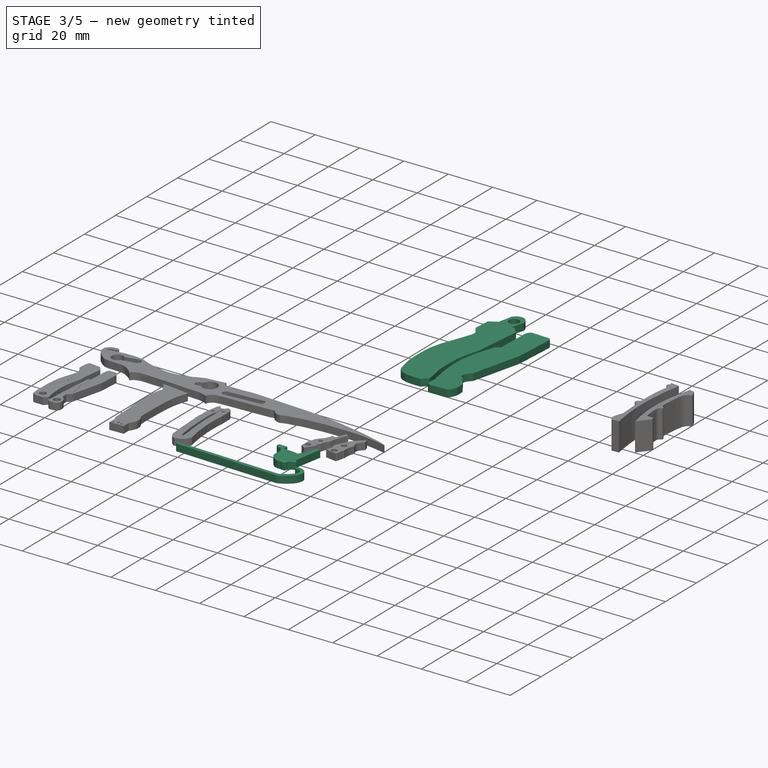
[diagram: stage 3 of 5 — iso view after this stage's code; geometry added in this stage tinted green]
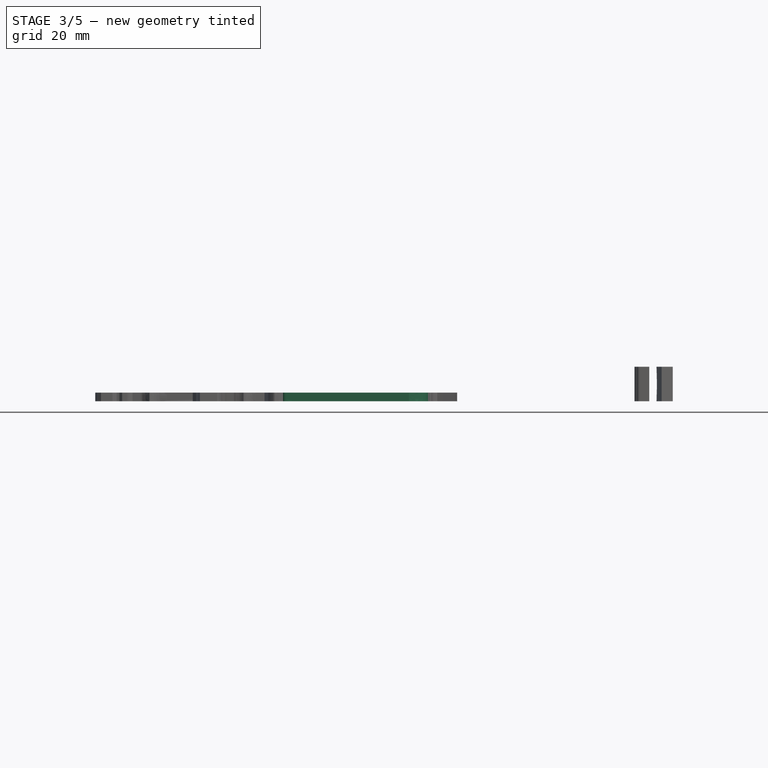
[diagram: stage 3 of 5 — front view after this stage's code; geometry added in this stage tinted green]
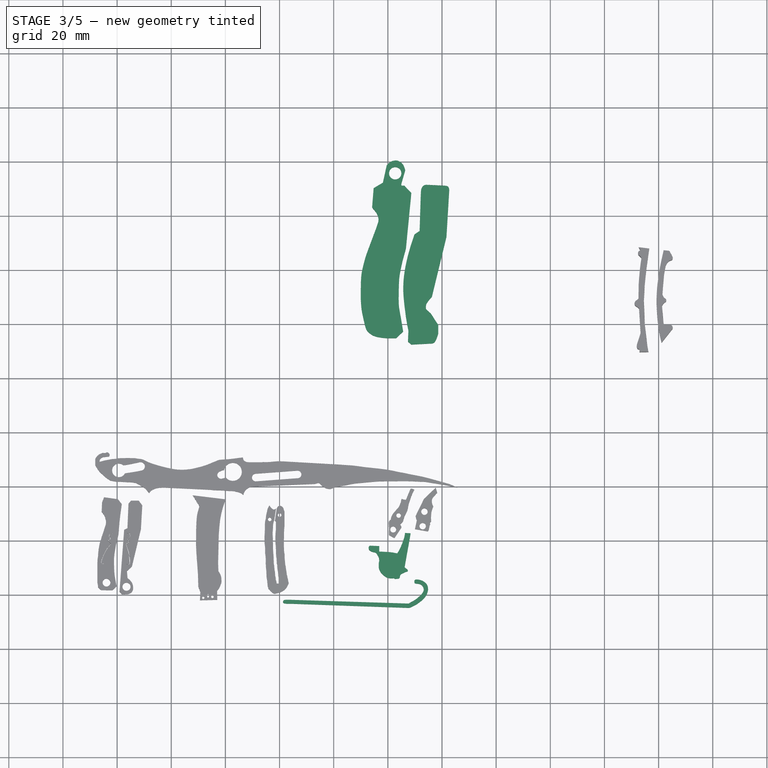
[diagram: stage 3 of 5 — top view after this stage's code; geometry added in this stage tinted green]
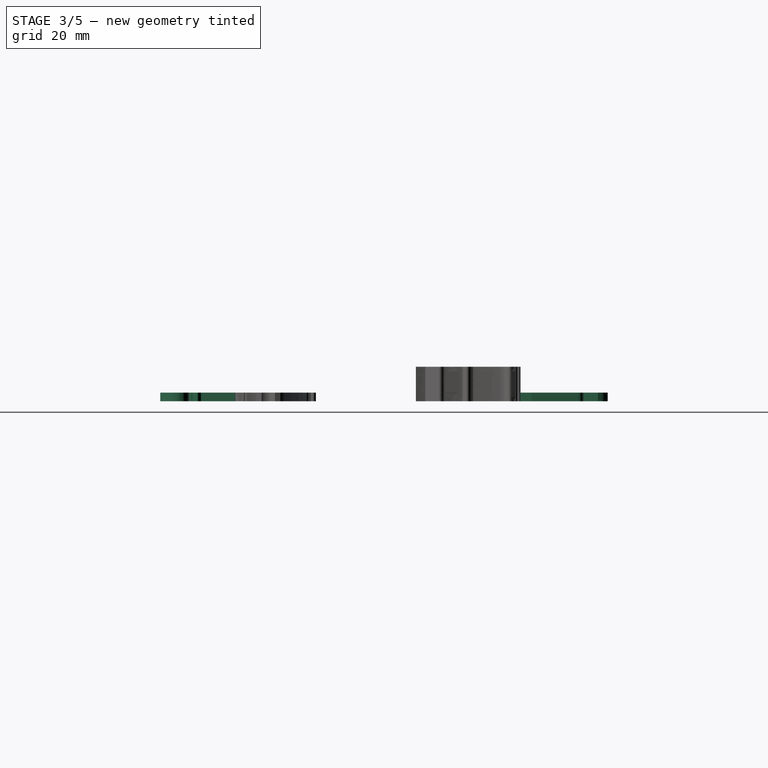
[diagram: stage 3 of 5 — right view after this stage's code; geometry added in this stage tinted green]
FEATURE [PartDesign::Body] Body016
  Group = -> [Sketch016,Pad016]
  Origin = -> Origin016
  Placement = pos=(-77.2902,276.175,0) rot=(0,0,1;3.15905rad)
  Tip = -> Pad016
FEATURE [App::LinkGroup] LinkGroup007  label="HandThings"
  ElementList = -> [Body015,Body016]
  LinkMode = 0
FEATURE [Sketcher::SketchObject] Sketch017
  FullyConstrained = false
  MapMode = 5
  Support = -> [XY_Plane017]
  sketch-geometry (75):
    g0-g6: Circle x7 (B-spline internal-alignment scaffolding for g7; pole/knot coordinates omitted)
    g7: BSplineCurve PolesCount=7 KnotsCount=5 Degree=3 IsPeriodic=0
    g8-g12: GeomPoint x5 (B-spline internal-alignment scaffolding for g7; pole/knot coordinates omitted)
    g13: LineSegment StartX=-34.7343 StartY=18.1649 StartZ=0 EndX=7.65513 EndY=16.8156 EndZ=0
    g14: LineSegment StartX=-34.7995 StartY=16.7321 StartZ=0 EndX=7.717 EndY=15.2202 EndZ=0
    g15-g22: Circle x8 (B-spline internal-alignment scaffolding for g23; pole/knot coordinates omitted)
    g23: BSplineCurve PolesCount=8 KnotsCount=6 Degree=3 IsPeriodic=0
    g24-g29: GeomPoint x6 (B-spline internal-alignment scaffolding for g23; pole/knot coordinates omitted)
    g30-g52: Circle x23 (B-spline internal-alignment scaffolding for g53; pole/knot coordinates omitted)
    g53: BSplineCurve PolesCount=23 KnotsCount=21 Degree=3 IsPeriodic=0
    g54-g74: GeomPoint x21 (B-spline internal-alignment scaffolding for g53; pole/knot coordinates omitted)
  constraints (59):
    c: Weight(g0) = 1
    c: Equal(g0, g1-g4) x4
    c: PointOnObject(g4,g2)
    c: Equal(g0,g5)
    c: PointOnObject(g5,g3)
    c: Equal(g0,g6)
    c: InternalAlignment(g0-g6 -> g7) x7
    c: InternalAlignment(g8-g12 -> g7) x5
    c: Coincident(g13,g7)
    c: Coincident(g14,g7)
    c: Coincident(g23,g13)
    c: Weight(g15) = 1
    c: Equal(g15, g16-g20) x5
    c: PointOnObject(g20,g19)
    c: Equal(g15,g21)
    c: PointOnObject(g21,g20)
    c: Equal(g15,g22)
    c: PointOnObject(g23,g21)
    c: InternalAlignment(g15-g22 -> g23) x8
    c: InternalAlignment(g24-g29 -> g23) x6
    c: Coincident(g53,g23)
    c: Weight(g30) = 1
    c: Equal(g30, g31-g35) x5
    c: PointOnObject(g35,g34)
    c: Equal(g30,g36)
    c: Equal(g30,g37)
    c: PointOnObject(g37,g36)
    c: Equal(g30,g38)
    c: PointOnObject(g38,g37)
    c: Equal(g30,g39)
    c: PointOnObject(g39,g38)
    c: Equal(g30,g40)
    c: PointOnObject(g40,g39)
    c: Equal(g30,g41)
    c: PointOnObject(g41,g40)
    c: Equal(g30,g42)
    c: PointOnObject(g42,g41)
    c: Equal(g30,g43)
    c: PointOnObject(g43,g42)
    c: Equal(g30,g44)
    c: PointOnObject(g44,g43)
    c: Equal(g30,g45)
    c: PointOnObject(g45,g44)
    c: Equal(g30,g46)
    c: PointOnObject(g46,g45)
    c: Equal(g30,g47)
    c: PointOnObject(g47,g46)
    c: Equal(g30,g48)
    c: PointOnObject(g48,g47)
    c: Equal(g30,g49)
    c: PointOnObject(g49,g48)
    c: Equal(g30,g50)
    c: PointOnObject(g50,g49)
    c: Equal(g30,g51)
    c: PointOnObject(g51,g50)
    c: Equal(g30,g52)
    c: Coincident(g53,g14)
    c: InternalAlignment(g30-g52 -> g53) x23
    c: InternalAlignment(g54-g74 -> g53) x21
FEATURE [PartDesign::Pad] Pad017
  Direction = (1,1,1)
  Length = 3.175
  Length2 = 100
  Profile = -> Sketch017
  Type = 0
FEATURE [PartDesign::Body] Body017
  Group = -> [Sketch017,Pad017]
  Origin = -> Origin017
  Tip = -> Pad017
FEATURE [Sketcher::SketchObject] Sketch018
  FullyConstrained = false
  MapMode = 5
  Support = -> [XY_Plane018]
  sketch-geometry (75):
    g0-g6: Circle x7 (B-spline internal-alignment scaffolding for g7; pole/knot coordinates omitted)
    g7: BSplineCurve PolesCount=7 KnotsCount=5 Degree=3 IsPeriodic=0
    g8-g12: GeomPoint x5 (B-spline internal-alignment scaffolding for g7; pole/knot coordinates omitted)
    g13: LineSegment StartX=-34.7343 StartY=18.1649 StartZ=0 EndX=7.65513 EndY=16.8156 EndZ=0
    g14: LineSegment StartX=-34.7995 StartY=16.7321 StartZ=0 EndX=7.717 EndY=15.2202 EndZ=0
    g15-g22: Circle x8 (B-spline internal-alignment scaffolding for g23; pole/knot coordinates omitted)
    g23: BSplineCurve PolesCount=8 KnotsCount=6 Degree=3 IsPeriodic=0
    g24-g29: GeomPoint x6 (B-spline internal-alignment scaffolding for g23; pole/knot coordinates omitted)
    g30-g52: Circle x23 (B-spline internal-alignment scaffolding for g53; pole/knot coordinates omitted)
    g53: BSplineCurve PolesCount=23 KnotsCount=21 Degree=3 IsPeriodic=0
    g54-g74: GeomPoint x21 (B-spline internal-alignment scaffolding for g53; pole/knot coordinates omitted)
  constraints (59):
    c: Weight(g0) = 1
    c: Equal(g0, g1-g4) x4
    c: PointOnObject(g4,g2)
    c: Equal(g0,g5)
    c: PointOnObject(g5,g3)
    c: Equal(g0,g6)
    c: InternalAlignment(g0-g6 -> g7) x7
    c: InternalAlignment(g8-g12 -> g7) x5
    c: Coincident(g13,g7)
    c: Coincident(g14,g7)
    c: Coincident(g23,g13)
    c: Weight(g15) = 1
    c: Equal(g15, g16-g20) x5
    c: PointOnObject(g20,g19)
    c: Equal(g15,g21)
    c: PointOnObject(g21,g20)
    c: Equal(g15,g22)
    c: PointOnObject(g23,g21)
    c: InternalAlignment(g15-g22 -> g23) x8
    c: InternalAlignment(g24-g29 -> g23) x6
    c: Coincident(g53,g23)
    c: Weight(g30) = 1
    c: Equal(g30, g31-g35) x5
    c: PointOnObject(g35,g34)
    c: Equal(g30,g36)
    c: Equal(g30,g37)
    c: PointOnObject(g37,g36)
    c: Equal(g30,g38)
    c: PointOnObject(g38,g37)
    c: Equal(g30,g39)
    c: PointOnObject(g39,g38)
    c: Equal(g30,g40)
    c: PointOnObject(g40,g39)
    c: Equal(g30,g41)
    c: PointOnObject(g41,g40)
    c: Equal(g30,g42)
    c: PointOnObject(g42,g41)
    c: Equal(g30,g43)
    c: PointOnObject(g43,g42)
    c: Equal(g30,g44)
    c: PointOnObject(g44,g43)
    c: Equal(g30,g45)
    c: PointOnObject(g45,g44)
    c: Equal(g30,g46)
    c: PointOnObject(g46,g45)
    c: Equal(g30,g47)
    c: PointOnObject(g47,g46)
    c: Equal(g30,g48)
    c: PointOnObject(g48,g47)
    c: Equal(g30,g49)
    c: PointOnObject(g49,g48)
    c: Equal(g30,g50)
    c: PointOnObject(g50,g49)
    c: Equal(g30,g51)
    c: PointOnObject(g51,g50)
    c: Equal(g30,g52)
    c: Coincident(g53,g14)
    c: InternalAlignment(g30-g52 -> g53) x23
    c: InternalAlignment(g54-g74 -> g53) x21
FEATURE [PartDesign::Pad] Pad018
  Direction = (1,1,1)
  Length = 3.175
  Length2 = 100
  Profile = -> Sketch018
  Type = 0
FEATURE [PartDesign::Body] Body018
  Group = -> [Sketch018,Pad018]
  Origin = -> Origin018
  Placement = pos=(8.55,-4.45,0) rot=(0,0,1;0rad)
  Tip = -> Pad018
FEATURE [App::LinkGroup] LinkGroup008  label="CaneThings"
  ElementList = -> [Body017,Body018]
  LinkMode = 0
FEATURE [Sketcher::SketchObject] Sketch019
  FullyConstrained = false
  MapMode = 5
  Support = -> [XY_Plane019]
  sketch-geometry (85):
    g0: LineSegment StartX=6.32808 StartY=42.9143 StartZ=0 EndX=8.42975 EndY=42.7694 EndZ=0
    g1: LineSegment StartX=8.42975 StartY=42.7694 StartZ=0 EndX=6.18314 EndY=30.2319 EndZ=0
    g2: LineSegment StartX=-3.16562 StartY=38.0588 StartZ=0 EndX=-3.16562 EndY=36.0296 EndZ=0
    g3: LineSegment StartX=-3.16562 StartY=38.0588 StartZ=0 EndX=-6.7167 EndY=38.2037 EndZ=0
    g4-g8: Circle x5 (B-spline internal-alignment scaffolding for g9; pole/knot coordinates omitted)
    g9: BSplineCurve PolesCount=5 KnotsCount=3 Degree=3 IsPeriodic=0
    g10: GeomPoint X=6.32808 Y=42.9143 Z=0
    g11: GeomPoint X=5.35417 Y=39.1652 Z=0
    g12: GeomPoint X=3.42924 Y=35.3774 Z=0
    g13-g17: Circle x5 (B-spline internal-alignment scaffolding for g18; pole/knot coordinates omitted)
    g18: BSplineCurve PolesCount=5 KnotsCount=3 Degree=3 IsPeriodic=0
    g19: GeomPoint X=3.42924 Y=35.3774 Z=0
    g20: GeomPoint X=0.912809 Y=35.7918 Z=0
    g21: GeomPoint X=-3.16562 Y=36.0296 Z=0
    g22-g53: Circle x32 (B-spline internal-alignment scaffolding for g54; pole/knot coordinates omitted)
    g54: BSplineCurve PolesCount=32 KnotsCount=30 Degree=3 IsPeriodic=0
    g55-g84: GeomPoint x30 (B-spline internal-alignment scaffolding for g54; pole/knot coordinates omitted)
  constraints (71):
    c: Coincident(g1,g0)
    c: Vertical(g2)
    c: Coincident(g3,g2)
    c: Coincident(g9,g0)
    c: Weight(g4) = 1
    c: Equal(g4, g5-g8) x4
    c: InternalAlignment(g4-g8 -> g9) x5
    c: InternalAlignment(g10,g9)
    c: InternalAlignment(g11,g9)
    c: InternalAlignment(g12,g9)
    c: Coincident(g18,g9)
    c: Weight(g13) = 1
    c: Equal(g13, g14-g17) x4
    c: Coincident(g18,g2)
    c: InternalAlignment(g13-g17 -> g18) x5
    c: InternalAlignment(g19,g18)
    c: InternalAlignment(g20,g18)
    c: InternalAlignment(g21,g18)
    c: Coincident(g54,g3)
    c: Weight(g22) = 1
    c: Equal(g22,g23)
    c: Equal(g22,g24)
    c: PointOnObject(g24,g23)
    c: Equal(g22,g25)
    c: PointOnObject(g25,g24)
    c: Equal(g22,g26)
    c: PointOnObject(g26,g25)
    c: Equal(g22,g27)
    c: PointOnObject(g27,g26)
    c: Equal(g22,g28)
    c: PointOnObject(g28,g27)
    c: Equal(g22,g29)
    c: PointOnObject(g29,g28)
    c: Equal(g22,g30)
    c: PointOnObject(g30,g29)
    c: Equal(g22,g31)
    c: PointOnObject(g31,g30)
    c: Equal(g22,g32)
    c: PointOnObject(g32,g30)
    c: Equal(g22,g33)
    c: PointOnObject(g33,g31)
    c: Equal(g22,g34)
    c: PointOnObject(g34,g33)
    c: Equal(g22,g35)
    c: PointOnObject(g35,g34)
    c: Equal(g22,g36)
    c: PointOnObject(g36,g35)
    c: Equal(g22,g37)
    c: Equal(g22,g38)
    c: PointOnObject(g38,g-2)
    c: Equal(g22, g39-g42) x4
    c: PointOnObject(g42,g40)
    c: Equal(g22,g43)
    c: Equal(g22,g44)
    c: PointOnObject(g44,g43)
    c: Equal(g22,g45)
    c: Equal(g22,g46)
    c: PointOnObject(g46,g45)
    c: Equal(g22,g47)
    c: Equal(g22,g48)
    c: PointOnObject(g48,g46)
    c: Equal(g22,g49)
    c: PointOnObject(g49,g48)
    c: Equal(g22,g50)
    c: Equal(g22,g51)
    c: Equal(g22,g52)
    c: PointOnObject(g52,g50)
    c: Equal(g22,g53)
    c: Coincident(g54,g1)
    c: InternalAlignment(g22-g53 -> g54) x32
    c: InternalAlignment(g55-g84 -> g54) x30
FEATURE [PartDesign::Pad] Pad019
  Direction = (1,1,1)
  Length = 3.17
  Length2 = 100
  Profile = -> Sketch019
  Type = 0
FEATURE [PartDesign::Body] Body019
  Group = -> [Sketch019,Pad019]
  Origin = -> Origin019
  Tip = -> Pad019
FEATURE [Sketcher::SketchObject] Sketch020
  FullyConstrained = false
  MapMode = 5
  Support = -> [XY_Plane020]
  sketch-geometry (85):
    g0: LineSegment StartX=6.32808 StartY=42.9143 StartZ=0 EndX=8.42975 EndY=42.7694 EndZ=0
    g1: LineSegment StartX=8.42975 StartY=42.7694 StartZ=0 EndX=6.18314 EndY=30.2319 EndZ=0
    g2: LineSegment StartX=-3.16562 StartY=38.0588 StartZ=0 EndX=-3.16562 EndY=36.0296 EndZ=0
    g3: LineSegment StartX=-3.16562 StartY=38.0588 StartZ=0 EndX=-6.7167 EndY=38.2037 EndZ=0
    g4-g8: Circle x5 (B-spline internal-alignment scaffolding for g9; pole/knot coordinates omitted)
    g9: BSplineCurve PolesCount=5 KnotsCount=3 Degree=3 IsPeriodic=0
    g10: GeomPoint X=6.32808 Y=42.9143 Z=0
    g11: GeomPoint X=5.35417 Y=39.1652 Z=0
    g12: GeomPoint X=3.42924 Y=35.3774 Z=0
    g13-g17: Circle x5 (B-spline internal-alignment scaffolding for g18; pole/knot coordinates omitted)
    g18: BSplineCurve PolesCount=5 KnotsCount=3 Degree=3 IsPeriodic=0
    g19: GeomPoint X=3.42924 Y=35.3774 Z=0
    g20: GeomPoint X=0.912809 Y=35.7918 Z=0
    g21: GeomPoint X=-3.16562 Y=36.0296 Z=0
    g22-g53: Circle x32 (B-spline internal-alignment scaffolding for g54; pole/knot coordinates omitted)
    g54: BSplineCurve PolesCount=32 KnotsCount=30 Degree=3 IsPeriodic=0
    g55-g84: GeomPoint x30 (B-spline internal-alignment scaffolding for g54; pole/knot coordinates omitted)
  constraints (71):
    c: Coincident(g1,g0)
    c: Vertical(g2)
    c: Coincident(g3,g2)
    c: Coincident(g9,g0)
    c: Weight(g4) = 1
    c: Equal(g4, g5-g8) x4
    c: InternalAlignment(g4-g8 -> g9) x5
    c: InternalAlignment(g10,g9)
    c: InternalAlignment(g11,g9)
    c: InternalAlignment(g12,g9)
    c: Coincident(g18,g9)
    c: Weight(g13) = 1
    c: Equal(g13, g14-g17) x4
    c: Coincident(g18,g2)
    c: InternalAlignment(g13-g17 -> g18) x5
    c: InternalAlignment(g19,g18)
    c: InternalAlignment(g20,g18)
    c: InternalAlignment(g21,g18)
    c: Coincident(g54,g3)
    c: Weight(g22) = 1
    c: Equal(g22,g23)
    c: Equal(g22,g24)
    c: PointOnObject(g24,g23)
    c: Equal(g22,g25)
    c: PointOnObject(g25,g24)
    c: Equal(g22,g26)
    c: PointOnObject(g26,g25)
    c: Equal(g22,g27)
    c: PointOnObject(g27,g26)
    c: Equal(g22,g28)
    c: PointOnObject(g28,g27)
    c: Equal(g22,g29)
    c: PointOnObject(g29,g28)
    c: Equal(g22,g30)
    c: PointOnObject(g30,g29)
    c: Equal(g22,g31)
    c: PointOnObject(g31,g30)
    c: Equal(g22,g32)
    c: PointOnObject(g32,g30)
    c: Equal(g22,g33)
    c: PointOnObject(g33,g31)
    c: Equal(g22,g34)
    c: PointOnObject(g34,g33)
    c: Equal(g22,g35)
    c: PointOnObject(g35,g34)
    c: Equal(g22,g36)
    c: PointOnObject(g36,g35)
    c: Equal(g22,g37)
    c: Equal(g22,g38)
    c: PointOnObject(g38,g-2)
    c: Equal(g22, g39-g42) x4
    c: PointOnObject(g42,g40)
    c: Equal(g22,g43)
    c: Equal(g22,g44)
    c: PointOnObject(g44,g43)
    c: Equal(g22,g45)
    c: Equal(g22,g46)
    c: PointOnObject(g46,g45)
    c: Equal(g22,g47)
    c: Equal(g22,g48)
    c: PointOnObject(g48,g46)
    c: Equal(g22,g49)
    c: PointOnObject(g49,g48)
    c: Equal(g22,g50)
    c: Equal(g22,g51)
    c: Equal(g22,g52)
    c: PointOnObject(g52,g50)
    c: Equal(g22,g53)
    c: Coincident(g54,g1)
    c: InternalAlignment(g22-g53 -> g54) x32
    c: InternalAlignment(g55-g84 -> g54) x30
FEATURE [PartDesign::Pad] Pad020
  Direction = (1,1,1)
  Length = 3.17
  Length2 = 100
  Profile = -> Sketch020
  Type = 0
FEATURE [PartDesign::Body] Body020
  Group = -> [Sketch020,Pad020]
  Origin = -> Origin020
  Placement = pos=(-16.6,1.9,0) rot=(0,0,1;0rad)
  Tip = -> Pad020
FEATURE [App::LinkGroup] LinkGroup009
  ElementList = -> [Body019,Body020]
  LinkMode = 0
FEATURE [Sketcher::SketchObject] Sketch021
  FullyConstrained = false
  MapMode = 5
  Support = -> [XY_Plane021]
  sketch-geometry (71):
    g0: LineSegment StartX=16.2524 StartY=130.076 StartZ=0 EndX=21.6519 EndY=152.293 EndZ=0
    g1: LineSegment StartX=21.6519 StartY=152.293 StartZ=0 EndX=22.6299 EndY=168.695 EndZ=0
    g2-g12: Circle x11 (B-spline internal-alignment scaffolding for g13; pole/knot coordinates omitted)
    g13: BSplineCurve PolesCount=11 KnotsCount=9 Degree=3 IsPeriodic=0
    g14-g22: GeomPoint x9 (B-spline internal-alignment scaffolding for g13; pole/knot coordinates omitted)
    g23: LineSegment StartX=12.1558 StartY=167.86 StartZ=0 EndX=11.7276 EndY=154.482 EndZ=0
    g24: LineSegment StartX=11.7276 StartY=154.482 StartZ=0 EndX=9.83298 EndY=153.17 EndZ=0
    g25-g32: Circle x8 (B-spline internal-alignment scaffolding for g33; pole/knot coordinates omitted)
    g33: BSplineCurve PolesCount=8 KnotsCount=6 Degree=3 IsPeriodic=0
    g34-g39: GeomPoint x6 (B-spline internal-alignment scaffolding for g33; pole/knot coordinates omitted)
    g40: LineSegment StartX=7.58568 StartY=117.598 StartZ=0 EndX=7.4202 EndY=113.549 EndZ=0
    g41: LineSegment StartX=7.4202 StartY=113.549 StartZ=0 EndX=8.69378 EndY=112.483 EndZ=0
    g42: LineSegment StartX=8.69378 StartY=112.483 StartZ=0 EndX=16.4677 EndY=112.894 EndZ=0
    g43: LineSegment StartX=15.8775 StartY=123.954 StartZ=0 EndX=18.598 EndY=119.776 EndZ=0
    g44: LineSegment StartX=18.598 StartY=119.776 StartZ=0 EndX=18.598 EndY=116.473 EndZ=0
    g45-g49: Circle x5 (B-spline internal-alignment scaffolding for g50; pole/knot coordinates omitted)
    g50: BSplineCurve PolesCount=5 KnotsCount=3 Degree=3 IsPeriodic=0
    g51: GeomPoint X=18.598 Y=116.473 Z=0
    g52: GeomPoint X=17.6628 Y=114.001 Z=0
    g53: GeomPoint X=16.4677 Y=112.894 Z=0
    g54-g62: Circle x9 (B-spline internal-alignment scaffolding for g63; pole/knot coordinates omitted)
    g63: BSplineCurve PolesCount=9 KnotsCount=7 Degree=3 IsPeriodic=0
    g64-g70: GeomPoint x7 (B-spline internal-alignment scaffolding for g63; pole/knot coordinates omitted)
  constraints (65):
    c: Coincident(g1,g0)
    c: Coincident(g13,g1)
    c: Weight(g2) = 1
    c: Equal(g2,g3)
    c: Equal(g2,g4)
    c: PointOnObject(g4,g3)
    c: Equal(g2,g5)
    c: PointOnObject(g5,g4)
    c: Equal(g2,g6)
    c: Equal(g2,g7)
    c: Equal(g2,g8)
    c: PointOnObject(g8,g7)
    c: Equal(g2,g9)
    c: PointOnObject(g9,g8)
    c: Equal(g2,g10)
    c: PointOnObject(g10,g9)
    c: Equal(g2,g11)
    c: PointOnObject(g11,g10)
    c: Equal(g2,g12)
    c: PointOnObject(g13,g11)
    c: InternalAlignment(g2-g12 -> g13) x11
    c: InternalAlignment(g14-g22 -> g13) x9
    c: Coincident(g23,g13)
    c: Coincident(g24,g23)
    c: Coincident(g33,g24)
    c: Weight(g25) = 1
    c: Equal(g25, g26-g32) x7
    c: InternalAlignment(g25-g32 -> g33) x8
    c: InternalAlignment(g34-g39 -> g33) x6
    c: Coincident(g40,g33)
    c: Coincident(g41,g40)
    c: Coincident(g42,g41)
    c: Coincident(g44,g43)
    c: Vertical(g44)
    c: Coincident(g50,g44)
    c: Weight(g45) = 1
    c: Equal(g45,g46)
    c: Equal(g45,g47)
    c: PointOnObject(g47,g46)
    c: Equal(g45,g48)
    c: PointOnObject(g48,g47)
    c: Equal(g45,g49)
    c: Coincident(g50,g42)
    c: InternalAlignment(g45-g49 -> g50) x5
    c: InternalAlignment(g51,g50)
    c: InternalAlignment(g52,g50)
    c: InternalAlignment(g53,g50)
    c: Coincident(g63,g43)
    c: Weight(g54) = 1
    c: Equal(g54,g55)
    c: Equal(g54,g56)
    c: PointOnObject(g56,g55)
    c: Equal(g54,g57)
    c: Equal(g54,g58)
    c: PointOnObject(g58,g57)
    c: Equal(g54,g59)
    c: PointOnObject(g59,g58)
    c: Equal(g54,g60)
    c: PointOnObject(g60,g59)
    c: Equal(g54,g61)
    c: PointOnObject(g61,g60)
    c: Equal(g54,g62)
    c: Coincident(g63,g0)
    c: InternalAlignment(g54-g62 -> g63) x9
    c: InternalAlignment(g64-g70 -> g63) x7
FEATURE [PartDesign::Pad] Pad021
  Direction = (1,1,1)
  Length = 3.175
  Length2 = 100
  Profile = -> Sketch021
  Type = 0
FEATURE [PartDesign::Body] Body021
  Group = -> [Sketch021,Pad021]
  Origin = -> Origin021
  Tip = -> Pad021
FEATURE [Sketcher::SketchObject] Sketch022
  FullyConstrained = false
  MapMode = 5
  Support = -> [XY_Plane022]
  sketch-geometry (71):
    g0: LineSegment StartX=16.2524 StartY=130.076 StartZ=0 EndX=21.6519 EndY=152.293 EndZ=0
    g1: LineSegment StartX=21.6519 StartY=152.293 StartZ=0 EndX=22.6299 EndY=168.695 EndZ=0
    g2-g12: Circle x11 (B-spline internal-alignment scaffolding for g13; pole/knot coordinates omitted)
    g13: BSplineCurve PolesCount=11 KnotsCount=9 Degree=3 IsPeriodic=0
    g14-g22: GeomPoint x9 (B-spline internal-alignment scaffolding for g13; pole/knot coordinates omitted)
    g23: LineSegment StartX=12.1558 StartY=167.86 StartZ=0 EndX=11.7276 EndY=154.482 EndZ=0
    g24: LineSegment StartX=11.7276 StartY=154.482 StartZ=0 EndX=9.83298 EndY=153.17 EndZ=0
    g25-g32: Circle x8 (B-spline internal-alignment scaffolding for g33; pole/knot coordinates omitted)
    g33: BSplineCurve PolesCount=8 KnotsCount=6 Degree=3 IsPeriodic=0
    g34-g39: GeomPoint x6 (B-spline internal-alignment scaffolding for g33; pole/knot coordinates omitted)
    g40: LineSegment StartX=7.58568 StartY=117.598 StartZ=0 EndX=7.4202 EndY=113.549 EndZ=0
    g41: LineSegment StartX=7.4202 StartY=113.549 StartZ=0 EndX=8.69378 EndY=112.483 EndZ=0
    g42: LineSegment StartX=8.69378 StartY=112.483 StartZ=0 EndX=16.4677 EndY=112.894 EndZ=0
    g43: LineSegment StartX=15.8775 StartY=123.954 StartZ=0 EndX=18.598 EndY=119.776 EndZ=0
    g44: LineSegment StartX=18.598 StartY=119.776 StartZ=0 EndX=18.598 EndY=116.473 EndZ=0
    g45-g49: Circle x5 (B-spline internal-alignment scaffolding for g50; pole/knot coordinates omitted)
    g50: BSplineCurve PolesCount=5 KnotsCount=3 Degree=3 IsPeriodic=0
    g51: GeomPoint X=18.598 Y=116.473 Z=0
    g52: GeomPoint X=17.6628 Y=114.001 Z=0
    g53: GeomPoint X=16.4677 Y=112.894 Z=0
    g54-g62: Circle x9 (B-spline internal-alignment scaffolding for g63; pole/knot coordinates omitted)
    g63: BSplineCurve PolesCount=9 KnotsCount=7 Degree=3 IsPeriodic=0
    g64-g70: GeomPoint x7 (B-spline internal-alignment scaffolding for g63; pole/knot coordinates omitted)
  constraints (65):
    c: Coincident(g1,g0)
    c: Coincident(g13,g1)
    c: Weight(g2) = 1
    c: Equal(g2,g3)
    c: Equal(g2,g4)
    c: PointOnObject(g4,g3)
    c: Equal(g2,g5)
    c: PointOnObject(g5,g4)
    c: Equal(g2,g6)
    c: Equal(g2,g7)
    c: Equal(g2,g8)
    c: PointOnObject(g8,g7)
    c: Equal(g2,g9)
    c: PointOnObject(g9,g8)
    c: Equal(g2,g10)
    c: PointOnObject(g10,g9)
    c: Equal(g2,g11)
    c: PointOnObject(g11,g10)
    c: Equal(g2,g12)
    c: PointOnObject(g13,g11)
    c: InternalAlignment(g2-g12 -> g13) x11
    c: InternalAlignment(g14-g22 -> g13) x9
    c: Coincident(g23,g13)
    c: Coincident(g24,g23)
    c: Coincident(g33,g24)
    c: Weight(g25) = 1
    c: Equal(g25, g26-g32) x7
    c: InternalAlignment(g25-g32 -> g33) x8
    c: InternalAlignment(g34-g39 -> g33) x6
    c: Coincident(g40,g33)
    c: Coincident(g41,g40)
    c: Coincident(g42,g41)
    c: Coincident(g44,g43)
    c: Vertical(g44)
    c: Coincident(g50,g44)
    c: Weight(g45) = 1
    c: Equal(g45,g46)
    c: Equal(g45,g47)
    c: PointOnObject(g47,g46)
    c: Equal(g45,g48)
    c: PointOnObject(g48,g47)
    c: Equal(g45,g49)
    c: Coincident(g50,g42)
    c: InternalAlignment(g45-g49 -> g50) x5
    c: InternalAlignment(g51,g50)
    c: InternalAlignment(g52,g50)
    c: InternalAlignment(g53,g50)
    c: Coincident(g63,g43)
    c: Weight(g54) = 1
    c: Equal(g54,g55)
    c: Equal(g54,g56)
    c: PointOnObject(g56,g55)
    c: Equal(g54,g57)
    c: Equal(g54,g58)
    c: PointOnObject(g58,g57)
    c: Equal(g54,g59)
    c: PointOnObject(g59,g58)
    c: Equal(g54,g60)
    c: PointOnObject(g60,g59)
    c: Equal(g54,g61)
    c: PointOnObject(g61,g60)
    c: Equal(g54,g62)
    c: Coincident(g63,g0)
    c: InternalAlignment(g54-g62 -> g63) x9
    c: InternalAlignment(g64-g70 -> g63) x7
FEATURE [PartDesign::Pad] Pad022
  Direction = (1,1,1)
  Length = 3.175
  Length2 = 100
  Profile = -> Sketch022
  Type = 0
FEATURE [PartDesign::Body] Body022
  Group = -> [Sketch022,Pad022]
  Origin = -> Origin022
  Placement = pos=(-97.5,-19.8,0) rot=(0,0,1;0rad)
  Tip = -> Pad022
FEATURE [App::LinkGroup] LinkGroup010
  ElementList = -> [Body021,Body022]
  LinkMode = 0
FEATURE [Sketcher::SketchObject] Sketch023
  FullyConstrained = false
  MapMode = 5
  Support = -> [XY_Plane023]
  sketch-geometry (78):
    g0: LineSegment StartX=4.91035 StartY=171.569 StartZ=0 EndX=6.42712 EndY=176.856 EndZ=0
    g1: LineSegment StartX=-0.418618 StartY=178.738 StartZ=0 EndX=-1.82957 EndY=172.31 EndZ=0
    g2: Circle CenterX=2.71683 CenterY=175.759 CenterZ=0 NormalX=0 NormalY=0 NormalZ=1 AngleXU=0 Radius=2.26885
    g3-g11: Circle x9 (B-spline internal-alignment scaffolding for g12; pole/knot coordinates omitted)
    g12: BSplineCurve PolesCount=9 KnotsCount=7 Degree=3 IsPeriodic=0
    g13-g19: GeomPoint x7 (B-spline internal-alignment scaffolding for g12; pole/knot coordinates omitted)
    g20: LineSegment StartX=-1.82957 StartY=172.31 StartZ=0 EndX=-5.24965 EndY=170.277 EndZ=0
    g21: LineSegment StartX=-5.24965 StartY=170.277 StartZ=0 EndX=-5.82448 EndY=163.118 EndZ=0
    g22: LineSegment StartX=-0.542683 StartY=114.847 StartZ=0 EndX=3.13681 EndY=114.847 EndZ=0
    g23: LineSegment StartX=3.13681 StartY=114.847 StartZ=0 EndX=5.66112 EndY=117.329 EndZ=0
    g24: LineSegment StartX=8.67965 StartY=168.476 StartZ=0 EndX=6.66904 EndY=147.881 EndZ=0
    g25: LineSegment StartX=8.67965 StartY=168.476 StartZ=0 EndX=6.09676 EndY=171.224 EndZ=0
    g26: LineSegment StartX=6.09676 StartY=171.224 StartZ=0 EndX=5.10466 EndY=171.19 EndZ=0
    g27-g34: Circle x8 (B-spline internal-alignment scaffolding for g35; pole/knot coordinates omitted)
    g35: BSplineCurve PolesCount=8 KnotsCount=6 Degree=3 IsPeriodic=0
    g36-g41: GeomPoint x6 (B-spline internal-alignment scaffolding for g35; pole/knot coordinates omitted)
    g42-g59: Circle x18 (B-spline internal-alignment scaffolding for g60; pole/knot coordinates omitted)
    g60: BSplineCurve PolesCount=18 KnotsCount=16 Degree=3 IsPeriodic=0
    g61-g76: GeomPoint x16 (B-spline internal-alignment scaffolding for g60; pole/knot coordinates omitted)
    g77: LineSegment StartX=4.91035 StartY=171.569 StartZ=0 EndX=5.10466 EndY=171.19 EndZ=0
  constraints (42):
    c: Coincident(g12,g1)
    c: Weight(g3) = 1
    c: Equal(g3,g4)
    c: Equal(g3,g5)
    c: PointOnObject(g5,g4)
    c: Equal(g3,g6)
    c: PointOnObject(g6,g5)
    c: Equal(g3,g7)
    c: PointOnObject(g7,g6)
    c: Equal(g3,g8)
    c: PointOnObject(g8,g7)
    c: Equal(g3,g9)
    c: PointOnObject(g9,g8)
    c: Equal(g3,g10)
    c: PointOnObject(g10,g9)
    c: Equal(g3,g11)
    c: Coincident(g12,g0)
    c: InternalAlignment(g3-g11 -> g12) x9
    c: InternalAlignment(g13-g19 -> g12) x7
    c: Coincident(g20,g1)
    c: Coincident(g21,g20)
    c: Horizontal(g22)
    c: Coincident(g23,g22)
    c: Coincident(g25,g24)
    c: Coincident(g35,g24)
    c: Weight(g27) = 1
    c: Equal(g27, g28-g34) x7
    c: Coincident(g35,g23)
    c: InternalAlignment(g27-g34 -> g35) x8
    c: InternalAlignment(g36-g41 -> g35) x6
    c: Coincident(g60,g21)
    c: Weight(g42) = 1
    c: Equal(g42, g43-g56) x14
    c: PointOnObject(g56,g55)
    c: Equal(g42,g57)
    c: Equal(g42,g58)
    c: Equal(g42,g59)
    c: Coincident(g60,g22)
    c: InternalAlignment(g42-g59 -> g60) x18
    c: InternalAlignment(g61-g76 -> g60) x16
    c: Coincident(g77,g0)
    c: Coincident(g77,g26)
FEATURE [PartDesign::Pad] Pad023
  Direction = (1,1,1)
  Length = 3.175
  Length2 = 100
  Profile = -> Sketch023
  Type = 0
FEATURE [PartDesign::Body] Body023
  Group = -> [Sketch023,Pad023]
  Origin = -> Origin023
  Tip = -> Pad023
FEATURE [Sketcher::SketchObject] Sketch024
  FullyConstrained = false
  MapMode = 5
  Support = -> [XY_Plane024]
  sketch-geometry (78):
    g0: LineSegment StartX=4.91035 StartY=171.569 StartZ=0 EndX=6.42712 EndY=176.856 EndZ=0
    g1: LineSegment StartX=-0.418618 StartY=178.738 StartZ=0 EndX=-1.82957 EndY=172.31 EndZ=0
    g2: Circle CenterX=2.71683 CenterY=175.759 CenterZ=0 NormalX=0 NormalY=0 NormalZ=1 AngleXU=0 Radius=2.26885
    g3-g11: Circle x9 (B-spline internal-alignment scaffolding for g12; pole/knot coordinates omitted)
    g12: BSplineCurve PolesCount=9 KnotsCount=7 Degree=3 IsPeriodic=0
    g13-g19: GeomPoint x7 (B-spline internal-alignment scaffolding for g12; pole/knot coordinates omitted)
    g20: LineSegment StartX=-1.82957 StartY=172.31 StartZ=0 EndX=-5.24965 EndY=170.277 EndZ=0
    g21: LineSegment StartX=-5.24965 StartY=170.277 StartZ=0 EndX=-5.82448 EndY=163.118 EndZ=0
    g22: LineSegment StartX=-0.542683 StartY=114.847 StartZ=0 EndX=3.13681 EndY=114.847 EndZ=0
    g23: LineSegment StartX=3.13681 StartY=114.847 StartZ=0 EndX=5.66112 EndY=117.329 EndZ=0
    g24: LineSegment StartX=8.67965 StartY=168.476 StartZ=0 EndX=6.66904 EndY=147.881 EndZ=0
    g25: LineSegment StartX=8.67965 StartY=168.476 StartZ=0 EndX=6.09676 EndY=171.224 EndZ=0
    g26: LineSegment StartX=6.09676 StartY=171.224 StartZ=0 EndX=5.10466 EndY=171.19 EndZ=0
    g27-g34: Circle x8 (B-spline internal-alignment scaffolding for g35; pole/knot coordinates omitted)
    g35: BSplineCurve PolesCount=8 KnotsCount=6 Degree=3 IsPeriodic=0
    g36-g41: GeomPoint x6 (B-spline internal-alignment scaffolding for g35; pole/knot coordinates omitted)
    g42-g59: Circle x18 (B-spline internal-alignment scaffolding for g60; pole/knot coordinates omitted)
    g60: BSplineCurve PolesCount=18 KnotsCount=16 Degree=3 IsPeriodic=0
    g61-g76: GeomPoint x16 (B-spline internal-alignment scaffolding for g60; pole/knot coordinates omitted)
    g77: LineSegment StartX=4.91035 StartY=171.569 StartZ=0 EndX=5.10466 EndY=171.19 EndZ=0
  constraints (42):
    c: Coincident(g12,g1)
    c: Weight(g3) = 1
    c: Equal(g3,g4)
    c: Equal(g3,g5)
    c: PointOnObject(g5,g4)
    c: Equal(g3,g6)
    c: PointOnObject(g6,g5)
    c: Equal(g3,g7)
    c: PointOnObject(g7,g6)
    c: Equal(g3,g8)
    c: PointOnObject(g8,g7)
    c: Equal(g3,g9)
    c: PointOnObject(g9,g8)
    c: Equal(g3,g10)
    c: PointOnObject(g10,g9)
    c: Equal(g3,g11)
    c: Coincident(g12,g0)
    c: InternalAlignment(g3-g11 -> g12) x9
    c: InternalAlignment(g13-g19 -> g12) x7
    c: Coincident(g20,g1)
    c: Coincident(g21,g20)
    c: Horizontal(g22)
    c: Coincident(g23,g22)
    c: Coincident(g25,g24)
    c: Coincident(g35,g24)
    c: Weight(g27) = 1
    c: Equal(g27, g28-g34) x7
    c: Coincident(g35,g23)
    c: InternalAlignment(g27-g34 -> g35) x8
    c: InternalAlignment(g36-g41 -> g35) x6
    c: Coincident(g60,g21)
    c: Weight(g42) = 1
    c: Equal(g42, g43-g56) x14
    c: PointOnObject(g56,g55)
    c: Equal(g42,g57)
    c: Equal(g42,g58)
    c: Equal(g42,g59)
    c: Coincident(g60,g22)
    c: InternalAlignment(g42-g59 -> g60) x18
    c: InternalAlignment(g61-g76 -> g60) x16
    c: Coincident(g77,g0)
    c: Coincident(g77,g26)
FEATURE [PartDesign::Pad] Pad024
  Direction = (1,1,1)
  Length = 3.175
  Length2 = 100
  Profile = -> Sketch024
  Type = 0
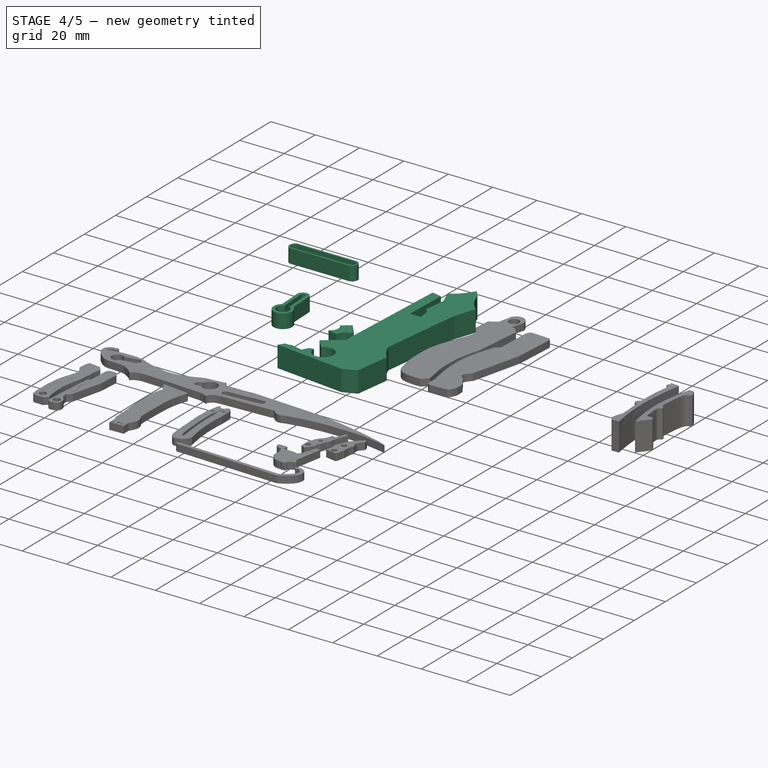
[diagram: stage 4 of 5 — iso view after this stage's code; geometry added in this stage tinted green]
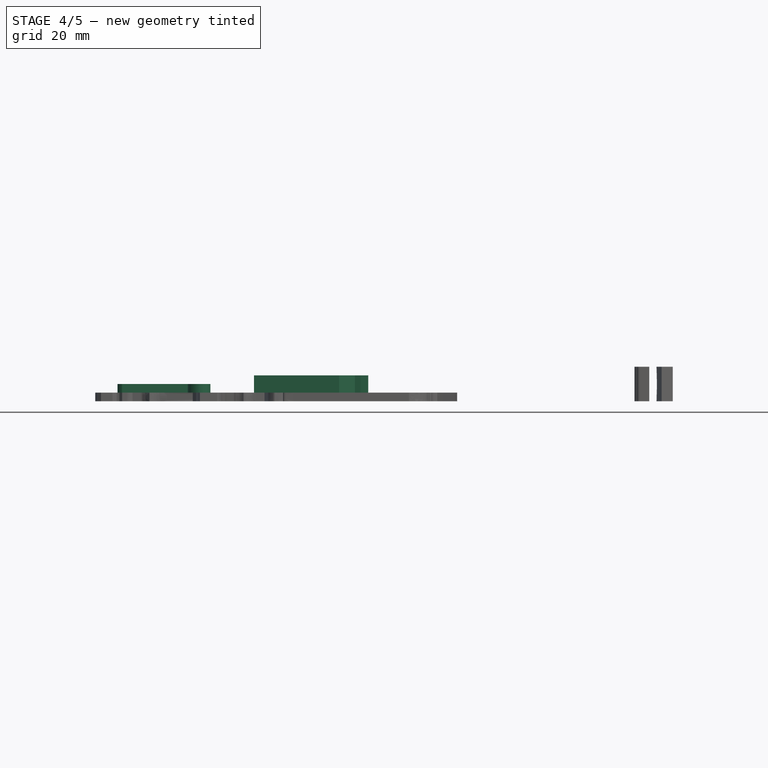
[diagram: stage 4 of 5 — front view after this stage's code; geometry added in this stage tinted green]
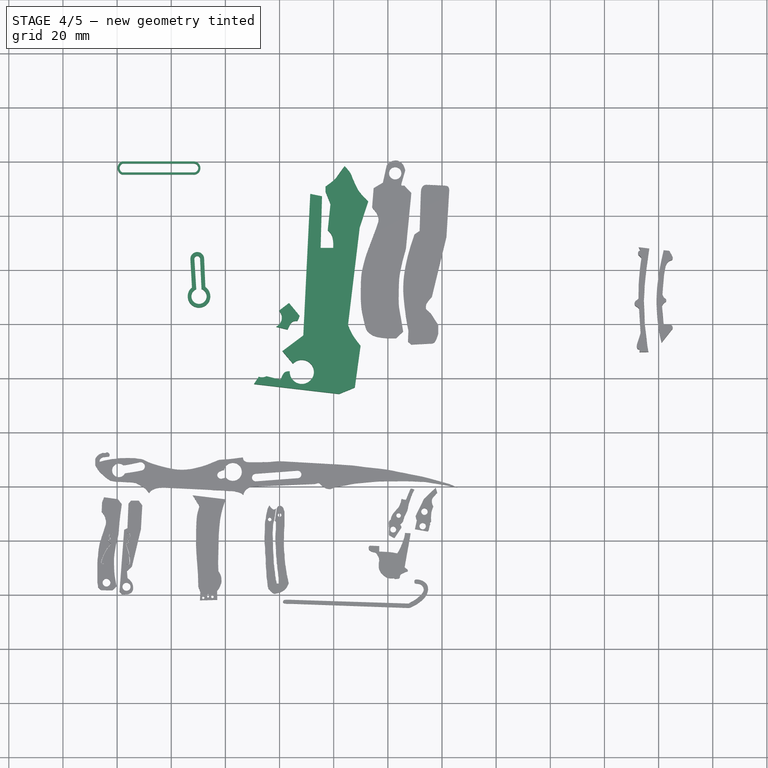
[diagram: stage 4 of 5 — top view after this stage's code; geometry added in this stage tinted green]
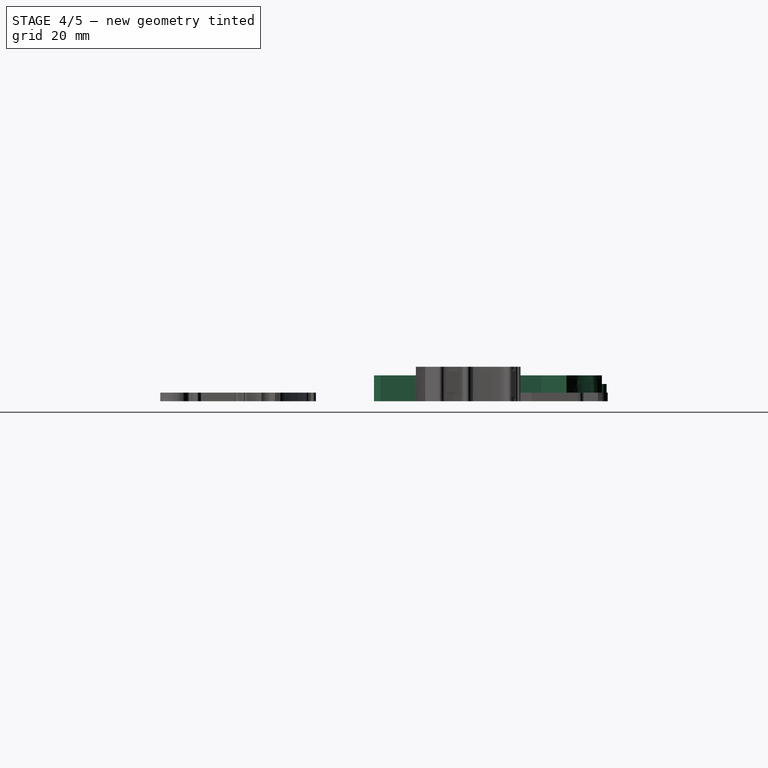
[diagram: stage 4 of 5 — right view after this stage's code; geometry added in this stage tinted green]
FEATURE [PartDesign::Body] Body008
  Group = -> [Sketch008,Pad008]
  Origin = -> Origin008
  Tip = -> Pad008
FEATURE [Sketcher::SketchObject] Sketch009
  FullyConstrained = false
  MapMode = 5
  Support = -> [XY_Plane009]
  sketch-geometry (8):
    g0: ArcOfCircle CenterX=-69.7445 CenterY=130.271 CenterZ=0 NormalX=0 NormalY=0 NormalZ=1 AngleXU=0 Radius=2.80903 StartAngle=1.94136 EndAngle=7.5198
    g1: ArcOfCircle CenterX=-69.7445 CenterY=130.271 CenterZ=0 NormalX=0 NormalY=0 NormalZ=1 AngleXU=0 Radius=4.17585 StartAngle=2.24293 EndAngle=7.25976
    g2: ArcOfCircle CenterX=-70.3964 CenterY=144.084 CenterZ=0 NormalX=0 NormalY=0 NormalZ=1 AngleXU=0 Radius=1.07448 StartAngle=6.0757 EndAngle=9.63226
    g3: ArcOfCircle CenterX=-70.3964 CenterY=144.084 CenterZ=0 NormalX=0 NormalY=0 NormalZ=1 AngleXU=0 Radius=2.54618 StartAngle=6.26145 EndAngle=9.46322
    g4: LineSegment StartX=-71.4478 StartY=143.863 StartZ=0 EndX=-70.7618 EndY=132.889 EndZ=0
    g5: LineSegment StartX=-69.345 StartY=143.863 StartZ=0 EndX=-68.8232 EndY=132.925 EndZ=0
    g6: LineSegment StartX=-67.8508 StartY=144.029 StartZ=0 EndX=-67.4066 EndY=133.731 EndZ=0
    g7: LineSegment StartX=-72.9407 StartY=143.986 StartZ=0 EndX=-72.3446 EndY=133.539 EndZ=0
  constraints (10):
    c: Coincident(g1,g0)
    c: Coincident(g3,g2)
    c: Coincident(g4,g2)
    c: Coincident(g4,g0)
    c: Coincident(g5,g2)
    c: Coincident(g5,g0)
    c: Coincident(g6,g3)
    c: Coincident(g6,g1)
    c: Coincident(g7,g3)
    c: Coincident(g7,g1)
FEATURE [PartDesign::Pad] Pad009
  Direction = (1,1,1)
  Length = 6.35
  Length2 = 100
  Profile = -> Sketch009
  Type = 0
FEATURE [PartDesign::Body] Body009
  Group = -> [Sketch009,Pad009]
  Origin = -> Origin009
  Placement = pos=(31.3238,-9.5949,0) rot=(0,0,1;0.261799rad)
  Tip = -> Pad009
FEATURE [App::LinkGroup] LinkGroup004
  ElementList = -> [Body008,Body009]
  LinkMode = 0
FEATURE [Sketcher::SketchObject] Sketch010
  FullyConstrained = false
  MapMode = 5
  Support = -> [XY_Plane010]
  sketch-geometry (16):
    g0: ArcOfCircle CenterX=-42.9195 CenterY=122.348 CenterZ=0 NormalX=0 NormalY=0 NormalZ=1 AngleXU=0 Radius=3.75454 StartAngle=5.17696 EndAngle=7.03944
    g1: LineSegment StartX=-40.1884 StartY=124.924 StartZ=0 EndX=-36.5027 EndY=127.752 EndZ=0
    g2: LineSegment StartX=-36.5027 StartY=127.752 StartZ=0 EndX=-32.5763 EndY=122.997 EndZ=0
    g3: LineSegment StartX=-32.5763 StartY=122.997 StartZ=0 EndX=-33.3955 EndY=121.157 EndZ=0
    g4-g9: Circle x6 (B-spline internal-alignment scaffolding for g10; pole/knot coordinates omitted)
    g10: BSplineCurve PolesCount=6 KnotsCount=4 Degree=3 IsPeriodic=0
    g11-g14: GeomPoint x4 (B-spline internal-alignment scaffolding for g10; pole/knot coordinates omitted)
    g15: LineSegment StartX=-37.0508 StartY=117.968 StartZ=0 EndX=-41.2373 EndY=118.991 EndZ=0
  constraints (17):
    c: Coincident(g1,g0)
    c: Coincident(g2,g1)
    c: Coincident(g3,g2)
    c: Coincident(g10,g3)
    c: Weight(g4) = 1
    c: Equal(g4,g5)
    c: Equal(g4,g6)
    c: PointOnObject(g6,g5)
    c: Equal(g4,g7)
    c: PointOnObject(g7,g6)
    c: Equal(g4,g8)
    c: PointOnObject(g8,g7)
    c: Equal(g4,g9)
    c: InternalAlignment(g4-g9 -> g10) x6
    c: InternalAlignment(g11-g14 -> g10) x4
    c: Coincident(g15,g10)
    c: Coincident(g15,g0)
FEATURE [PartDesign::Pad] Pad010
  Direction = (1,1,1)
  Length = 9.525
  Length2 = 100
  Profile = -> Sketch010
  Type = 0
FEATURE [PartDesign::Body] Body010
  Group = -> [Sketch010,Pad010]
  Origin = -> Origin010
  Placement = pos=(-0.35,-0.15,0) rot=(0,0,1;0rad)
  Tip = -> Pad010
FEATURE [Sketcher::SketchObject] Sketch011
  FullyConstrained = false
  MapMode = 5
  Support = -> [XY_Plane011]
  sketch-geometry (16):
    g0: ArcOfCircle CenterX=-42.9195 CenterY=122.348 CenterZ=0 NormalX=0 NormalY=0 NormalZ=1 AngleXU=0 Radius=3.75454 StartAngle=5.17696 EndAngle=7.03944
    g1: LineSegment StartX=-40.1884 StartY=124.924 StartZ=0 EndX=-36.5027 EndY=127.752 EndZ=0
    g2: LineSegment StartX=-36.5027 StartY=127.752 StartZ=0 EndX=-32.5763 EndY=122.997 EndZ=0
    g3: LineSegment StartX=-32.5763 StartY=122.997 StartZ=0 EndX=-33.3955 EndY=121.157 EndZ=0
    g4-g9: Circle x6 (B-spline internal-alignment scaffolding for g10; pole/knot coordinates omitted)
    g10: BSplineCurve PolesCount=6 KnotsCount=4 Degree=3 IsPeriodic=0
    g11-g14: GeomPoint x4 (B-spline internal-alignment scaffolding for g10; pole/knot coordinates omitted)
    g15: LineSegment StartX=-37.0508 StartY=117.968 StartZ=0 EndX=-41.2373 EndY=118.991 EndZ=0
  constraints (17):
    c: Coincident(g1,g0)
    c: Coincident(g2,g1)
    c: Coincident(g3,g2)
    c: Coincident(g10,g3)
    c: Weight(g4) = 1
    c: Equal(g4,g5)
    c: Equal(g4,g6)
    c: PointOnObject(g6,g5)
    c: Equal(g4,g7)
    c: PointOnObject(g7,g6)
    c: Equal(g4,g8)
    c: PointOnObject(g8,g7)
    c: Equal(g4,g9)
    c: InternalAlignment(g4-g9 -> g10) x6
    c: InternalAlignment(g11-g14 -> g10) x4
    c: Coincident(g15,g10)
    c: Coincident(g15,g0)
FEATURE [PartDesign::Pad] Pad011
  Direction = (1,1,1)
  Length = 9.525
  Length2 = 100
  Profile = -> Sketch011
  Type = 0
FEATURE [PartDesign::Body] Body011
  Group = -> [Sketch011,Pad011]
  Origin = -> Origin011
  Placement = pos=(-75.35,276.85,0) rot=(0,0,1;3.14159rad)
  Tip = -> Pad011
FEATURE [App::LinkGroup] LinkGroup005
  ElementList = -> [Body010,Body011]
  LinkMode = 0
FEATURE [Sketcher::SketchObject] Sketch013
  FullyConstrained = false
  MapMode = 5
  Support = -> [XY_Plane013]
  sketch-geometry (8):
    g0: ArcOfCircle CenterX=-71.6688 CenterY=177.678 CenterZ=0 NormalX=0 NormalY=0 NormalZ=1 AngleXU=0 Radius=1.64568 StartAngle=4.71239 EndAngle=7.77705
    g1: ArcOfCircle CenterX=-71.6688 CenterY=177.678 CenterZ=0 NormalX=0 NormalY=0 NormalZ=1 AngleXU=0 Radius=2.42676 StartAngle=4.66694 EndAngle=7.89336
    g2: ArcOfCircle CenterX=-97.2758 CenterY=177.664 CenterZ=0 NormalX=0 NormalY=0 NormalZ=1 AngleXU=0 Radius=2.57072 StartAngle=1.89268 EndAngle=4.3574
    g3: ArcOfCircle CenterX=-97.2758 CenterY=177.664 CenterZ=0 NormalX=0 NormalY=0 NormalZ=1 AngleXU=0 Radius=1.79854 StartAngle=1.97355 EndAngle=4.27848
    g4: LineSegment StartX=-98.0891 StartY=180.103 StartZ=0 EndX=-71.7644 EndY=180.103 EndZ=0
    g5: LineSegment StartX=-97.9808 StartY=179.319 StartZ=0 EndX=-71.5424 EndY=179.319 EndZ=0
    g6: LineSegment StartX=-98.032 StartY=176.033 StartZ=0 EndX=-71.6688 EndY=176.033 EndZ=0
    g7: LineSegment StartX=-71.7791 StartY=175.254 StartZ=0 EndX=-98.1694 EndY=175.254 EndZ=0
  constraints (15):
    c: Coincident(g1,g0)
    c: Coincident(g3,g2)
    c: Coincident(g4,g2)
    c: Coincident(g4,g1)
    c: Horizontal(g4)
    c: Coincident(g5,g3)
    c: Coincident(g5,g0)
    c: Horizontal(g5)
    c: Coincident(g6,g3)
    c: Coincident(g6,g0)
    c: Horizontal(g6)
    c: Tangent(g6,g0)
    c: Coincident(g7,g1)
    c: Coincident(g7,g2)
    c: Horizontal(g7)
FEATURE [PartDesign::Pad] Pad013
  Direction = (1,1,1)
  Length = 6.35
  Length2 = 100
  Profile = -> Sketch013
  Type = 0
FEATURE [PartDesign::Body] Body013
  Group = -> [Sketch013,Pad013]
  Origin = -> Origin013
  Placement = pos=(0.2,0.2,0) rot=(0,0,1;0rad)
  Tip = -> Pad013
FEATURE [Sketcher::SketchObject] Sketch014
  FullyConstrained = false
  MapMode = 5
  Support = -> [XY_Plane014]
  sketch-geometry (8):
    g0: ArcOfCircle CenterX=-71.6688 CenterY=177.678 CenterZ=0 NormalX=0 NormalY=0 NormalZ=1 AngleXU=0 Radius=1.64568 StartAngle=4.71239 EndAngle=7.77705
    g1: ArcOfCircle CenterX=-71.6688 CenterY=177.678 CenterZ=0 NormalX=0 NormalY=0 NormalZ=1 AngleXU=0 Radius=2.42676 StartAngle=4.66694 EndAngle=7.89336
    g2: ArcOfCircle CenterX=-97.2758 CenterY=177.664 CenterZ=0 NormalX=0 NormalY=0 NormalZ=1 AngleXU=0 Radius=2.57072 StartAngle=1.89268 EndAngle=4.3574
    g3: ArcOfCircle CenterX=-97.2758 CenterY=177.664 CenterZ=0 NormalX=0 NormalY=0 NormalZ=1 AngleXU=0 Radius=1.79854 StartAngle=1.97355 EndAngle=4.27848
    g4: LineSegment StartX=-98.0891 StartY=180.103 StartZ=0 EndX=-71.7644 EndY=180.103 EndZ=0
    g5: LineSegment StartX=-97.9808 StartY=179.319 StartZ=0 EndX=-71.5424 EndY=179.319 EndZ=0
    g6: LineSegment StartX=-98.032 StartY=176.033 StartZ=0 EndX=-71.6688 EndY=176.033 EndZ=0
    g7: LineSegment StartX=-71.7791 StartY=175.254 StartZ=0 EndX=-98.1694 EndY=175.254 EndZ=0
  constraints (15):
    c: Coincident(g1,g0)
    c: Coincident(g3,g2)
    c: Coincident(g4,g2)
    c: Coincident(g4,g1)
    c: Horizontal(g4)
    c: Coincident(g5,g3)
    c: Coincident(g5,g0)
    c: Horizontal(g5)
    c: Coincident(g6,g3)
    c: Coincident(g6,g0)
    c: Horizontal(g6)
    c: Tangent(g6,g0)
    c: Coincident(g7,g1)
    c: Coincident(g7,g2)
    c: Horizontal(g7)
FEATURE [PartDesign::Pad] Pad014
  Direction = (1,1,1)
  Length = 6.35
  Length2 = 100
  Profile = -> Sketch014
  Type = 0
FEATURE [PartDesign::Body] Body014
  Group = -> [Sketch014,Pad014]
  Origin = -> Origin014
  Placement = pos=(0.2,-9.2,0) rot=(0,0,1;0rad)
  Tip = -> Pad014
FEATURE [App::LinkGroup] LinkGroup006
  ElementList = -> [Body013,Body014]
  LinkMode = 0
FEATURE [Sketcher::SketchObject] Sketch015
  FullyConstrained = false
  MapMode = 5
  Support = -> [XY_Plane015]
  sketch-geometry (67):
    g0: LineSegment StartX=-49.4252 StartY=97.843 StartZ=0 EndX=-47.6736 EndY=100.487 EndZ=0
    g1: LineSegment StartX=-18.0066 StartY=94.1737 StartZ=0 EndX=-49.4252 EndY=97.843 EndZ=0
    g2: ArcOfCircle CenterX=-46.5002 CenterY=103.752 CenterZ=0 NormalX=0 NormalY=0 NormalZ=1 AngleXU=0 Radius=3.46958 StartAngle=4.3674 EndAngle=5.20884
    g3: ArcOfCircle CenterX=-31.7764 CenterY=102.302 CenterZ=0 NormalX=0 NormalY=0 NormalZ=1 AngleXU=0 Radius=4.46549 StartAngle=3.08903 EndAngle=8.67353
    g4: LineSegment StartX=-35.0399 StartY=105.35 StartZ=0 EndX=-38.9365 EndY=109.985 EndZ=0
    g5: LineSegment StartX=-38.9365 StartY=109.985 StartZ=0 EndX=-31.2355 EndY=115.756 EndZ=0
    g6: LineSegment StartX=-31.2355 StartY=115.756 StartZ=0 EndX=-28.657 EndY=168.054 EndZ=0
    g7: LineSegment StartX=-22.2036 StartY=154.644 StartZ=0 EndX=-21.1953 EndY=164.324 EndZ=0
    g8: LineSegment StartX=-10.3901 StartY=155.843 StartZ=0 EndX=-14.7251 EndY=119.699 EndZ=0
    g9: LineSegment StartX=-18.0066 StartY=94.1737 StartZ=0 EndX=-12.2025 EndY=96.5621 EndZ=0
    g10: LineSegment StartX=-12.2025 StartY=96.5621 StartZ=0 EndX=-10.085 EndY=111.99 EndZ=0
    g11-g14: Circle x4 (B-spline internal-alignment scaffolding for g15; pole/knot coordinates omitted)
    g15: BSplineCurve PolesCount=4 KnotsCount=2 Degree=3 IsPeriodic=0
    g16: GeomPoint X=-14.7251 Y=119.699 Z=0
    g17: GeomPoint X=-10.085 Y=111.99 Z=0
    g18: LineSegment StartX=-10.3901 StartY=155.843 StartZ=0 EndX=-7.253 EndY=165.273 EndZ=0
    g19-g24: Circle x6 (B-spline internal-alignment scaffolding for g25; pole/knot coordinates omitted)
    g25: BSplineCurve PolesCount=6 KnotsCount=4 Degree=3 IsPeriodic=0
    g26-g29: GeomPoint x4 (B-spline internal-alignment scaffolding for g25; pole/knot coordinates omitted)
    g30: LineSegment StartX=-23.0106 StartY=168.939 StartZ=0 EndX=-23.0106 EndY=170.765 EndZ=0
    g31-g35: Circle x5 (B-spline internal-alignment scaffolding for g36; pole/knot coordinates omitted)
    g36: BSplineCurve PolesCount=5 KnotsCount=3 Degree=3 IsPeriodic=0
    g37: GeomPoint X=-23.0106 Y=170.765 Z=0
    g38: GeomPoint X=-19.2752 Y=173.822 Z=0
    g39: GeomPoint X=-15.9899 Y=178.317 Z=0
    g40: LineSegment StartX=-23.0106 StartY=168.939 StartZ=0 EndX=-21.1953 EndY=164.324 EndZ=0
    g41: LineSegment StartX=-28.657 StartY=168.054 StartZ=0 EndX=-24.3223 EndY=167.178 EndZ=0
    g42: LineSegment StartX=-24.3223 StartY=167.178 StartZ=0 EndX=-24.8265 EndY=148.12 EndZ=0
    g43: LineSegment StartX=-24.8265 StartY=148.12 StartZ=0 EndX=-20.1881 EndY=148.12 EndZ=0
    g44-g49: Circle x6 (B-spline internal-alignment scaffolding for g50; pole/knot coordinates omitted)
    g50: BSplineCurve PolesCount=6 KnotsCount=4 Degree=3 IsPeriodic=0
    g51-g54: GeomPoint x4 (B-spline internal-alignment scaffolding for g50; pole/knot coordinates omitted)
    g55: LineSegment StartX=-44.8476 StartY=100.702 StartZ=0 EndX=-39.6478 EndY=99.3995 EndZ=0
    g56-g61: Circle x6 (B-spline internal-alignment scaffolding for g62; pole/knot coordinates omitted)
    g62: BSplineCurve PolesCount=6 KnotsCount=4 Degree=3 IsPeriodic=0
    g63-g66: GeomPoint x4 (B-spline internal-alignment scaffolding for g62; pole/knot coordinates omitted)
  constraints (55):
    c: Coincident(g1,g0)
    c: Coincident(g2,g0)
    c: Coincident(g4,g3)
    c: Coincident(g5,g4)
    c: Coincident(g5,g6)
    c: Coincident(g1,g9)
    c: Coincident(g9,g10)
    c: Coincident(g15,g8)
    c: Weight(g11) = 1
    c: Equal(g11,g12)
    c: Equal(g11,g13)
    c: Equal(g11,g14)
    c: Coincident(g15,g10)
    c: InternalAlignment(g11-g14 -> g15) x4
    c: InternalAlignment(g16,g15)
    c: InternalAlignment(g17,g15)
    c: Coincident(g8,g18)
    c: Coincident(g25,g18)
    c: Weight(g19) = 1
    c: Equal(g19, g20-g24) x5
    c: InternalAlignment(g19-g24 -> g25) x6
    c: InternalAlignment(g26-g29 -> g25) x4
    c: Coincident(g36,g30)
    c: Weight(g31) = 1
    c: Equal(g31, g32-g35) x4
    c: Coincident(g36,g25)
    c: InternalAlignment(g31-g35 -> g36) x5
    c: InternalAlignment(g37,g36)
    c: InternalAlignment(g38,g36)
    c: InternalAlignment(g39,g36)
    c: Coincident(g40,g30)
    c: Coincident(g40,g7)
    c: Coincident(g41,g6)
    c: Coincident(g42,g41)
    c: Coincident(g43,g42)
    c: Horizontal(g43)
    c: Coincident(g50,g7)
    c: Weight(g44) = 1
    c: Equal(g44, g45-g49) x5
    c: Coincident(g50,g43)
    c: InternalAlignment(g44-g49 -> g50) x6
    c: InternalAlignment(g51-g54 -> g50) x4
    c: Coincident(g55,g2)
    c: Coincident(g62,g3)
    c: Weight(g56) = 1
    c: Equal(g56,g57)
    c: Equal(g56,g58)
    c: PointOnObject(g58,g57)
    c: Equal(g56,g59)
    c: PointOnObject(g59,g58)
    c: Equal(g56,g60)
    c: Equal(g56,g61)
    c: Coincident(g62,g55)
    c: InternalAlignment(g56-g61 -> g62) x6
    c: InternalAlignment(g63-g66 -> g62) x4
FEATURE [PartDesign::Pad] Pad015
  Direction = (1,1,1)
  Length = 9.525
  Length2 = 100
  Profile = -> Sketch015
  Type = 0
FEATURE [PartDesign::Body] Body015
  Group = -> [Sketch015,Pad015]
  Origin = -> Origin015
  Tip = -> Pad015
FEATURE [Sketcher::SketchObject] Sketch016
  FullyConstrained = false
  MapMode = 5
  Support = -> [XY_Plane016]
  sketch-geometry (67):
    g0: LineSegment StartX=-49.4252 StartY=97.843 StartZ=0 EndX=-47.6736 EndY=100.487 EndZ=0
    g1: LineSegment StartX=-18.0066 StartY=94.1737 StartZ=0 EndX=-49.4252 EndY=97.843 EndZ=0
    g2: ArcOfCircle CenterX=-46.5002 CenterY=103.752 CenterZ=0 NormalX=0 NormalY=0 NormalZ=1 AngleXU=0 Radius=3.46958 StartAngle=4.3674 EndAngle=5.20884
    g3: ArcOfCircle CenterX=-31.7764 CenterY=102.302 CenterZ=0 NormalX=0 NormalY=0 NormalZ=1 AngleXU=0 Radius=4.46549 StartAngle=3.08903 EndAngle=8.67353
    g4: LineSegment StartX=-35.0399 StartY=105.35 StartZ=0 EndX=-38.9365 EndY=109.985 EndZ=0
    g5: LineSegment StartX=-38.9365 StartY=109.985 StartZ=0 EndX=-31.2355 EndY=115.756 EndZ=0
    g6: LineSegment StartX=-31.2355 StartY=115.756 StartZ=0 EndX=-28.657 EndY=168.054 EndZ=0
    g7: LineSegment StartX=-22.2036 StartY=154.644 StartZ=0 EndX=-21.1953 EndY=164.324 EndZ=0
    g8: LineSegment StartX=-10.3901 StartY=155.843 StartZ=0 EndX=-14.7251 EndY=119.699 EndZ=0
    g9: LineSegment StartX=-18.0066 StartY=94.1737 StartZ=0 EndX=-12.2025 EndY=96.5621 EndZ=0
    g10: LineSegment StartX=-12.2025 StartY=96.5621 StartZ=0 EndX=-10.085 EndY=111.99 EndZ=0
    g11-g14: Circle x4 (B-spline internal-alignment scaffolding for g15; pole/knot coordinates omitted)
    g15: BSplineCurve PolesCount=4 KnotsCount=2 Degree=3 IsPeriodic=0
    g16: GeomPoint X=-14.7251 Y=119.699 Z=0
    g17: GeomPoint X=-10.085 Y=111.99 Z=0
    g18: LineSegment StartX=-10.3901 StartY=155.843 StartZ=0 EndX=-7.253 EndY=165.273 EndZ=0
    g19-g24: Circle x6 (B-spline internal-alignment scaffolding for g25; pole/knot coordinates omitted)
    g25: BSplineCurve PolesCount=6 KnotsCount=4 Degree=3 IsPeriodic=0
    g26-g29: GeomPoint x4 (B-spline internal-alignment scaffolding for g25; pole/knot coordinates omitted)
    g30: LineSegment StartX=-23.0106 StartY=168.939 StartZ=0 EndX=-23.0106 EndY=170.765 EndZ=0
    g31-g35: Circle x5 (B-spline internal-alignment scaffolding for g36; pole/knot coordinates omitted)
    g36: BSplineCurve PolesCount=5 KnotsCount=3 Degree=3 IsPeriodic=0
    g37: GeomPoint X=-23.0106 Y=170.765 Z=0
    g38: GeomPoint X=-19.2752 Y=173.822 Z=0
    g39: GeomPoint X=-15.9899 Y=178.317 Z=0
    g40: LineSegment StartX=-23.0106 StartY=168.939 StartZ=0 EndX=-21.1953 EndY=164.324 EndZ=0
    g41: LineSegment StartX=-28.657 StartY=168.054 StartZ=0 EndX=-24.3223 EndY=167.178 EndZ=0
    g42: LineSegment StartX=-24.3223 StartY=167.178 StartZ=0 EndX=-24.8265 EndY=148.12 EndZ=0
    g43: LineSegment StartX=-24.8265 StartY=148.12 StartZ=0 EndX=-20.1881 EndY=148.12 EndZ=0
    g44-g49: Circle x6 (B-spline internal-alignment scaffolding for g50; pole/knot coordinates omitted)
    g50: BSplineCurve PolesCount=6 KnotsCount=4 Degree=3 IsPeriodic=0
    g51-g54: GeomPoint x4 (B-spline internal-alignment scaffolding for g50; pole/knot coordinates omitted)
    g55: LineSegment StartX=-44.8476 StartY=100.702 StartZ=0 EndX=-39.6478 EndY=99.3995 EndZ=0
    g56-g61: Circle x6 (B-spline internal-alignment scaffolding for g62; pole/knot coordinates omitted)
    g62: BSplineCurve PolesCount=6 KnotsCount=4 Degree=3 IsPeriodic=0
    g63-g66: GeomPoint x4 (B-spline internal-alignment scaffolding for g62; pole/knot coordinates omitted)
  constraints (55):
    c: Coincident(g1,g0)
    c: Coincident(g2,g0)
    c: Coincident(g4,g3)
    c: Coincident(g5,g4)
    c: Coincident(g5,g6)
    c: Coincident(g1,g9)
    c: Coincident(g9,g10)
    c: Coincident(g15,g8)
    c: Weight(g11) = 1
    c: Equal(g11,g12)
    c: Equal(g11,g13)
    c: Equal(g11,g14)
    c: Coincident(g15,g10)
    c: InternalAlignment(g11-g14 -> g15) x4
    c: InternalAlignment(g16,g15)
    c: InternalAlignment(g17,g15)
    c: Coincident(g8,g18)
    c: Coincident(g25,g18)
    c: Weight(g19) = 1
    c: Equal(g19, g20-g24) x5
    c: InternalAlignment(g19-g24 -> g25) x6
    c: InternalAlignment(g26-g29 -> g25) x4
    c: Coincident(g36,g30)
    c: Weight(g31) = 1
    c: Equal(g31, g32-g35) x4
    c: Coincident(g36,g25)
    c: InternalAlignment(g31-g35 -> g36) x5
    c: InternalAlignment(g37,g36)
    c: InternalAlignment(g38,g36)
    c: InternalAlignment(g39,g36)
    c: Coincident(g40,g30)
    c: Coincident(g40,g7)
    c: Coincident(g41,g6)
    c: Coincident(g42,g41)
    c: Coincident(g43,g42)
    c: Horizontal(g43)
    c: Coincident(g50,g7)
    c: Weight(g44) = 1
    c: Equal(g44, g45-g49) x5
    c: Coincident(g50,g43)
    c: InternalAlignment(g44-g49 -> g50) x6
    c: InternalAlignment(g51-g54 -> g50) x4
    c: Coincident(g55,g2)
    c: Coincident(g62,g3)
    c: Weight(g56) = 1
    c: Equal(g56,g57)
    c: Equal(g56,g58)
    c: PointOnObject(g58,g57)
    c: Equal(g56,g59)
    c: PointOnObject(g59,g58)
    c: Equal(g56,g60)
    c: Equal(g56,g61)
    c: Coincident(g62,g55)
    c: InternalAlignment(g56-g61 -> g62) x6
    c: InternalAlignment(g63-g66 -> g62) x4
FEATURE [PartDesign::Pad] Pad016
  Direction = (1,1,1)
  Length = 9.525
  Length2 = 100
  Profile = -> Sketch016
  Type = 0
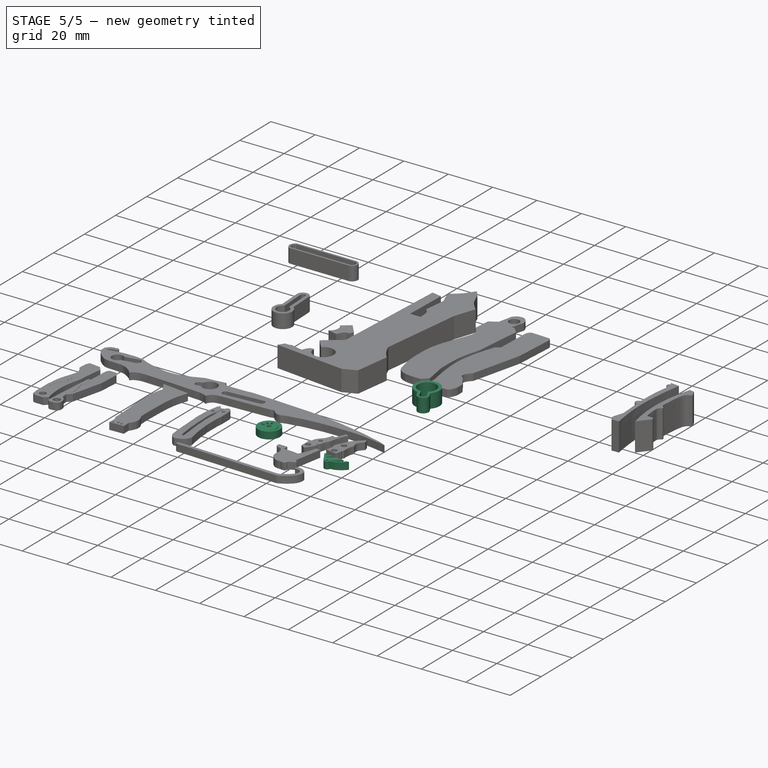
[diagram: stage 5 of 5 — iso view after this stage's code; geometry added in this stage tinted green]
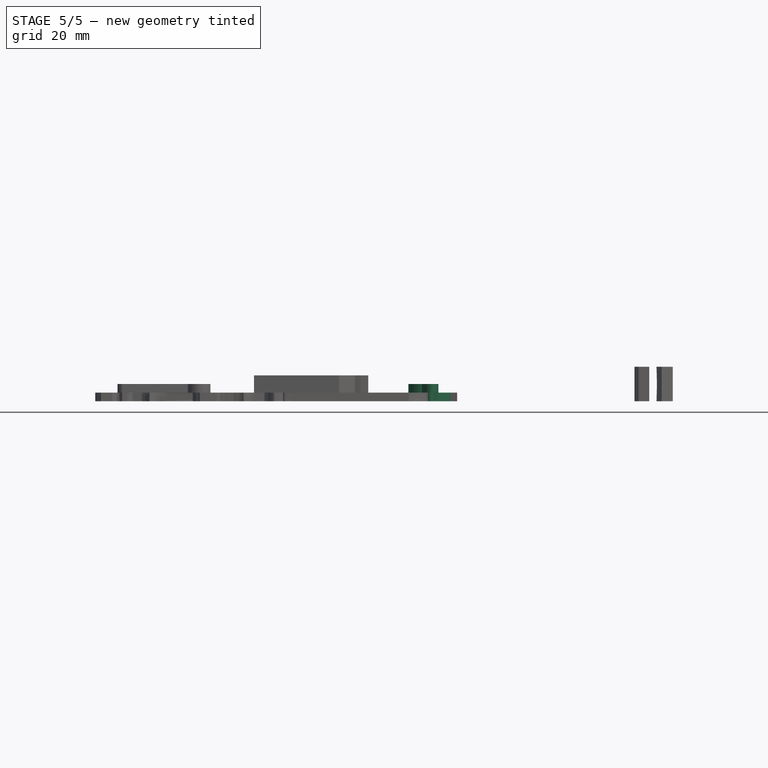
[diagram: stage 5 of 5 — front view after this stage's code; geometry added in this stage tinted green]
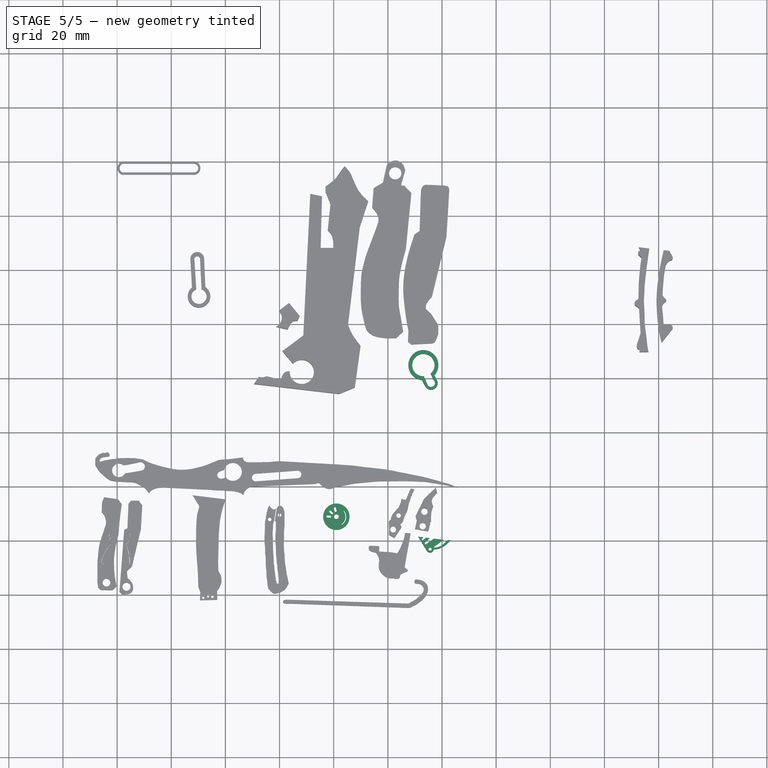
[diagram: stage 5 of 5 — top view after this stage's code; geometry added in this stage tinted green]
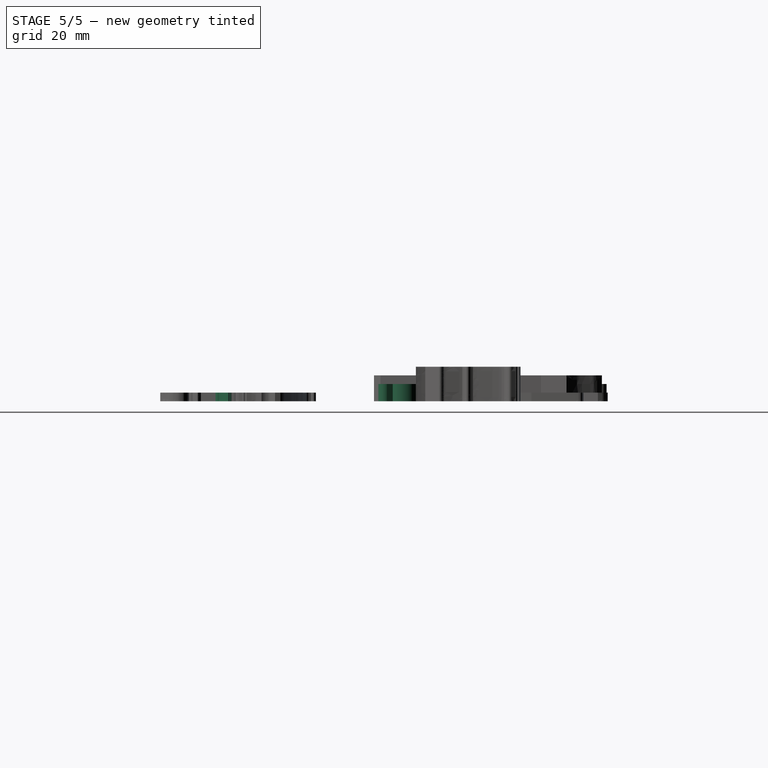
[diagram: stage 5 of 5 — right view after this stage's code; geometry added in this stage tinted green]
FEATURE [Image::ImagePlane] ImagePlane
  Placement = pos=(103.75,112.4,0) rot=(0,0,1;0rad)
  XSize = 152
  YSize = 232
FEATURE [Image::ImagePlane] ImagePlane001
  Placement = pos=(-42,94,0) rot=(0,0,1;0rad)
  XSize = 142
  YSize = 195
FEATURE [App::LinkGroup] LinkGroup001  label="Images"
  ElementList = -> [ImagePlane,ImagePlane001]
  LinkMode = 0
FEATURE [Sketcher::SketchObject] Sketch003
  FullyConstrained = false
  sketch-geometry (59):
    g0: LineSegment StartX=11.2483 StartY=41.3842 StartZ=0 EndX=14.3534 EndY=36.3591 EndZ=0
    g1-g6: Circle x6 (B-spline internal-alignment scaffolding for g7; pole/knot coordinates omitted)
    g7: BSplineCurve PolesCount=6 KnotsCount=4 Degree=3 IsPeriodic=0
    g8-g11: GeomPoint x4 (B-spline internal-alignment scaffolding for g7; pole/knot coordinates omitted)
    g12-g19: Circle x8 (B-spline internal-alignment scaffolding for g20; pole/knot coordinates omitted)
    g20: BSplineCurve PolesCount=8 KnotsCount=6 Degree=3 IsPeriodic=0
    g21-g26: GeomPoint x6 (B-spline internal-alignment scaffolding for g20; pole/knot coordinates omitted)
    g27: LineSegment StartX=23.1382 StartY=40.2364 StartZ=0 EndX=22.1539 EndY=40.3152 EndZ=0
    g28: LineSegment StartX=11.2483 StartY=41.3842 StartZ=0 EndX=11.255 EndY=41.5215 EndZ=0
    g29: LineSegment StartX=11.255 StartY=41.5215 StartZ=0 EndX=13.0785 EndY=41.2994 EndZ=0
    g30: LineSegment StartX=14.0464 StartY=41.1815 StartZ=0 EndX=15.5192 EndY=41.0022 EndZ=0
    g31: LineSegment StartX=16.978 StartY=40.8245 StartZ=0 EndX=20.5829 EndY=40.3854 EndZ=0
    g32: LineSegment StartX=20.5829 StartY=40.3854 StartZ=0 EndX=16.6916 EndY=37.4708 EndZ=0
    g33: LineSegment StartX=16.978 StartY=40.8245 StartZ=0 EndX=13.9048 EndY=38.5881 EndZ=0
    g34: LineSegment StartX=14.0464 StartY=41.1815 StartZ=0 EndX=12.818 EndY=40.1104 EndZ=0
    g35: LineSegment StartX=12.446 StartY=40.7482 StartZ=0 EndX=12.9443 EndY=41.0502 EndZ=0
    g36: Circle CenterX=12.9443 CenterY=41.0502 CenterZ=0 NormalX=0 NormalY=0 NormalZ=1 AngleXU=0 Radius=1
    g37: Circle CenterX=13.1266 CenterY=41.1483 CenterZ=0 NormalX=0 NormalY=0 NormalZ=1 AngleXU=0 Radius=1
    g38: Circle CenterX=13.0785 CenterY=41.2994 CenterZ=0 NormalX=0 NormalY=0 NormalZ=1 AngleXU=0 Radius=1
    g39: BSplineCurve PolesCount=3 KnotsCount=2 Degree=2 IsPeriodic=0
    g40: GeomPoint X=12.9443 Y=41.0502 Z=0
    g41: GeomPoint X=13.0785 Y=41.2994 Z=0
    g42: LineSegment StartX=15.5192 StartY=41.0022 StartZ=0 EndX=13.5066 EndY=39.1777 EndZ=0
    g43: LineSegment StartX=12.446 StartY=40.7482 StartZ=0 EndX=12.818 EndY=40.1104 EndZ=0
    g44: LineSegment StartX=13.5066 StartY=39.1777 StartZ=0 EndX=13.9048 EndY=38.5881 EndZ=0
    g45-g51: Circle x7 (B-spline internal-alignment scaffolding for g52; pole/knot coordinates omitted)
    g52: BSplineCurve PolesCount=7 KnotsCount=5 Degree=3 IsPeriodic=0
    g53-g57: GeomPoint x5 (B-spline internal-alignment scaffolding for g52; pole/knot coordinates omitted)
    g58: Circle CenterX=15.6054 CenterY=36.9213 CenterZ=0 NormalX=0 NormalY=0 NormalZ=1 AngleXU=0 Radius=0.556925
  constraints (55):
    c: Coincident(g7,g0)
    c: Weight(g1) = 1
    c: Equal(g1,g2)
    c: Equal(g1,g3)
    c: PointOnObject(g3,g2)
    c: Equal(g1,g4)
    c: PointOnObject(g4,g3)
    c: Equal(g1,g5)
    c: Equal(g1,g6)
    c: PointOnObject(g7,g4)
    c: InternalAlignment(g1-g6 -> g7) x6
    c: InternalAlignment(g8-g11 -> g7) x4
    c: Coincident(g20,g7)
    c: Weight(g12) = 1
    c: Equal(g12,g13)
    c: Equal(g12,g14)
    c: Equal(g12,g15)
    c: PointOnObject(g15,g14)
    c: Equal(g12,g16)
    c: PointOnObject(g16,g15)
    c: Equal(g12,g17)
    c: PointOnObject(g17,g16)
    c: Equal(g12,g18)
    c: PointOnObject(g18,g17)
    c: Equal(g12,g19)
    c: InternalAlignment(g12-g19 -> g20) x8
    c: InternalAlignment(g21-g26 -> g20) x6
    c: Coincident(g27,g20)
    c: Coincident(g28,g0)
    c: Coincident(g32,g31)
    c: Coincident(g33,g31)
    c: Coincident(g34,g30)
    c: Coincident(g39,g35)
    c: Weight(g36) = 1
    c: Equal(g36,g37)
    c: Equal(g36,g38)
    c: Coincident(g39,g29)
    c: InternalAlignment(g36,g39)
    c: InternalAlignment(g37,g39)
    c: InternalAlignment(g38,g39)
    c: InternalAlignment(g40,g39)
    c: InternalAlignment(g41,g39)
    c: Coincident(g42,g30)
    c: Coincident(g43,g35)
    c: Coincident(g43,g34)
    c: Coincident(g44,g42)
    c: Coincident(g44,g33)
    c: Coincident(g52,g32)
    c: Weight(g45) = 1
    c: Equal(g45, g46-g50) x5
    c: PointOnObject(g50,g49)
    c: Equal(g45,g51)
    c: Coincident(g52,g27)
    c: InternalAlignment(g45-g51 -> g52) x7
    c: InternalAlignment(g53-g57 -> g52) x5
FEATURE [PartDesign::Pad] Pad003
  Direction = (1,1,1)
  Length = 3.175
  Length2 = 100
  Profile = -> Sketch003
  Type = 0
FEATURE [PartDesign::Body] Body003
  Group = -> [Sketch003,Pad003]
  Origin = -> Origin003
  Placement = pos=(-0.3,-8,0) rot=(0,0,1;0rad)
  Tip = -> Pad003
FEATURE [Sketcher::SketchObject] Sketch004
  FullyConstrained = false
  sketch-geometry (59):
    g0: LineSegment StartX=11.2483 StartY=41.3842 StartZ=0 EndX=14.3534 EndY=36.3591 EndZ=0
    g1-g6: Circle x6 (B-spline internal-alignment scaffolding for g7; pole/knot coordinates omitted)
    g7: BSplineCurve PolesCount=6 KnotsCount=4 Degree=3 IsPeriodic=0
    g8-g11: GeomPoint x4 (B-spline internal-alignment scaffolding for g7; pole/knot coordinates omitted)
    g12-g19: Circle x8 (B-spline internal-alignment scaffolding for g20; pole/knot coordinates omitted)
    g20: BSplineCurve PolesCount=8 KnotsCount=6 Degree=3 IsPeriodic=0
    g21-g26: GeomPoint x6 (B-spline internal-alignment scaffolding for g20; pole/knot coordinates omitted)
    g27: LineSegment StartX=23.1382 StartY=40.2364 StartZ=0 EndX=22.1539 EndY=40.3152 EndZ=0
    g28: LineSegment StartX=11.2483 StartY=41.3842 StartZ=0 EndX=11.255 EndY=41.5215 EndZ=0
    g29: LineSegment StartX=11.255 StartY=41.5215 StartZ=0 EndX=13.0785 EndY=41.2994 EndZ=0
    g30: LineSegment StartX=14.0464 StartY=41.1815 StartZ=0 EndX=15.5192 EndY=41.0022 EndZ=0
    g31: LineSegment StartX=16.978 StartY=40.8245 StartZ=0 EndX=20.5829 EndY=40.3854 EndZ=0
    g32: LineSegment StartX=20.5829 StartY=40.3854 StartZ=0 EndX=16.6916 EndY=37.4708 EndZ=0
    g33: LineSegment StartX=16.978 StartY=40.8245 StartZ=0 EndX=13.9048 EndY=38.5881 EndZ=0
    g34: LineSegment StartX=14.0464 StartY=41.1815 StartZ=0 EndX=12.818 EndY=40.1104 EndZ=0
    g35: LineSegment StartX=12.446 StartY=40.7482 StartZ=0 EndX=12.9443 EndY=41.0502 EndZ=0
    g36: Circle CenterX=12.9443 CenterY=41.0502 CenterZ=0 NormalX=0 NormalY=0 NormalZ=1 AngleXU=0 Radius=1
    g37: Circle CenterX=13.1266 CenterY=41.1483 CenterZ=0 NormalX=0 NormalY=0 NormalZ=1 AngleXU=0 Radius=1
    g38: Circle CenterX=13.0785 CenterY=41.2994 CenterZ=0 NormalX=0 NormalY=0 NormalZ=1 AngleXU=0 Radius=1
    g39: BSplineCurve PolesCount=3 KnotsCount=2 Degree=2 IsPeriodic=0
    g40: GeomPoint X=12.9443 Y=41.0502 Z=0
    g41: GeomPoint X=13.0785 Y=41.2994 Z=0
    g42: LineSegment StartX=15.5192 StartY=41.0022 StartZ=0 EndX=13.5066 EndY=39.1777 EndZ=0
    g43: LineSegment StartX=12.446 StartY=40.7482 StartZ=0 EndX=12.818 EndY=40.1104 EndZ=0
    g44: LineSegment StartX=13.5066 StartY=39.1777 StartZ=0 EndX=13.9048 EndY=38.5881 EndZ=0
    g45-g51: Circle x7 (B-spline internal-alignment scaffolding for g52; pole/knot coordinates omitted)
    g52: BSplineCurve PolesCount=7 KnotsCount=5 Degree=3 IsPeriodic=0
    g53-g57: GeomPoint x5 (B-spline internal-alignment scaffolding for g52; pole/knot coordinates omitted)
    g58: Circle CenterX=15.6416 CenterY=36.9595 CenterZ=0 NormalX=0 NormalY=0 NormalZ=1 AngleXU=0 Radius=0.565835
  constraints (55):
    c: Coincident(g7,g0)
    c: Weight(g1) = 1
    c: Equal(g1,g2)
    c: Equal(g1,g3)
    c: PointOnObject(g3,g2)
    c: Equal(g1,g4)
    c: PointOnObject(g4,g3)
    c: Equal(g1,g5)
    c: Equal(g1,g6)
    c: PointOnObject(g7,g4)
    c: InternalAlignment(g1-g6 -> g7) x6
    c: InternalAlignment(g8-g11 -> g7) x4
    c: Coincident(g20,g7)
    c: Weight(g12) = 1
    c: Equal(g12,g13)
    c: Equal(g12,g14)
    c: Equal(g12,g15)
    c: PointOnObject(g15,g14)
    c: Equal(g12,g16)
    c: PointOnObject(g16,g15)
    c: Equal(g12,g17)
    c: PointOnObject(g17,g16)
    c: Equal(g12,g18)
    c: PointOnObject(g18,g17)
    c: Equal(g12,g19)
    c: InternalAlignment(g12-g19 -> g20) x8
    c: InternalAlignment(g21-g26 -> g20) x6
    c: Coincident(g27,g20)
    c: Coincident(g28,g0)
    c: Coincident(g32,g31)
    c: Coincident(g33,g31)
    c: Coincident(g34,g30)
    c: Coincident(g39,g35)
    c: Weight(g36) = 1
    c: Equal(g36,g37)
    c: Equal(g36,g38)
    c: Coincident(g39,g29)
    c: InternalAlignment(g36,g39)
    c: InternalAlignment(g37,g39)
    c: InternalAlignment(g38,g39)
    c: InternalAlignment(g40,g39)
    c: InternalAlignment(g41,g39)
    c: Coincident(g42,g30)
    c: Coincident(g43,g35)
    c: Coincident(g43,g34)
    c: Coincident(g44,g42)
    c: Coincident(g44,g33)
    c: Coincident(g52,g32)
    c: Weight(g45) = 1
    c: Equal(g45, g46-g50) x5
    c: PointOnObject(g50,g49)
    c: Equal(g45,g51)
    c: Coincident(g52,g27)
    c: InternalAlignment(g45-g51 -> g52) x7
    c: InternalAlignment(g53-g57 -> g52) x5
FEATURE [PartDesign::Pad] Pad004
  Direction = (1,1,1)
  Length = 3.175
  Length2 = 100
  Profile = -> Sketch004
  Type = 0
FEATURE [PartDesign::Body] Body004
  Group = -> [Sketch004,Pad004]
  Origin = -> Origin004
  Tip = -> Pad004
FEATURE [App::LinkGroup] LinkGroup002  label="ForkThings"
  ElementList = -> [Body003,Body004]
  LinkMode = 0
FEATURE [Sketcher::SketchObject] Sketch
  FullyConstrained = false
  MapMode = 5
  Support = -> [XY_Plane]
  sketch-geometry (18):
    g0: Circle CenterX=-19.0144 CenterY=48.9151 CenterZ=0 NormalX=0 NormalY=0 NormalZ=1 AngleXU=0 Radius=0.868358
    g1: Circle CenterX=-19.0144 CenterY=48.9151 CenterZ=0 NormalX=0 NormalY=0 NormalZ=1 AngleXU=0 Radius=4.87308
    g2: LineSegment StartX=-18.7948 StartY=50.9223 StartZ=0 EndX=-19.5115 EndY=50.5889 EndZ=0
    g3: LineSegment StartX=-20.0367 StartY=50.2189 StartZ=0 EndX=-20.6065 EndY=49.6602 EndZ=0
    g4: LineSegment StartX=-21.0422 StartY=49.3362 StartZ=0 EndX=-21.0422 EndY=48.5206 EndZ=0
    g5: LineSegment StartX=-18.7948 StartY=50.9223 StartZ=0 EndX=-19.3782 EndY=52.6057 EndZ=0
    g6: LineSegment StartX=-19.5115 StartY=50.5889 StartZ=0 EndX=-20.1282 EndY=52.1557 EndZ=0
    g7: LineSegment StartX=-19.3782 StartY=52.6057 StartZ=0 EndX=-20.1282 EndY=52.1557 EndZ=0
    g8: LineSegment StartX=-20.0367 StartY=50.2189 StartZ=0 EndX=-21.2616 EndY=51.3389 EndZ=0
    g9: LineSegment StartX=-21.2616 StartY=51.3389 StartZ=0 EndX=-21.795 EndY=50.7889 EndZ=0
    g10: LineSegment StartX=-20.6065 StartY=49.6602 StartZ=0 EndX=-21.795 EndY=50.7889 EndZ=0
    g11: LineSegment StartX=-21.0422 StartY=49.3362 StartZ=0 EndX=-22.595 EndY=49.4055 EndZ=0
    g12: LineSegment StartX=-22.595 StartY=49.4055 StartZ=0 EndX=-22.6617 EndY=48.6221 EndZ=0
    g13: LineSegment StartX=-22.6617 StartY=48.6221 StartZ=0 EndX=-21.0422 EndY=48.5206 EndZ=0
    g14: ArcOfCircle CenterX=-19.0144 CenterY=48.9151 CenterZ=0 NormalX=0 NormalY=0 NormalZ=1 AngleXU=0 Radius=3.34738 StartAngle=5.30818 EndAngle=6.9578
    g15: ArcOfCircle CenterX=-19.0144 CenterY=48.9151 CenterZ=0 NormalX=0 NormalY=0 NormalZ=1 AngleXU=0 Radius=3.62401 StartAngle=5.2999 EndAngle=6.9543
    g16: LineSegment StartX=-16.4003 StartY=51.0059 StartZ=0 EndX=-16.1764 EndY=51.1688 EndZ=0
    g17: LineSegment StartX=-17.136 StartY=46.1445 StartZ=0 EndX=-17.0057 EndY=45.8988 EndZ=0
  constraints (19):
    c: Coincident(g1,g0)
    c: Coincident(g5,g2)
    c: Coincident(g6,g2)
    c: Coincident(g7,g5)
    c: Coincident(g7,g6)
    c: Coincident(g8,g3)
    c: Coincident(g9,g8)
    c: Coincident(g10,g3)
    c: Coincident(g10,g9)
    c: Coincident(g11,g4)
    c: Coincident(g12,g11)
    c: Coincident(g13,g12)
    c: Coincident(g13,g4)
    c: Coincident(g14,g0)
    c: Coincident(g15,g0)
    c: Coincident(g16,g14)
    c: Coincident(g16,g15)
    c: Coincident(g17,g14)
    c: Coincident(g17,g15)
FEATURE [PartDesign::Pad] Pad
  Direction = (1,1,1)
  Length = 3.175
  Length2 = 100
  Profile = -> Sketch
  Type = 0
FEATURE [PartDesign::Body] Body
  Group = -> [Sketch,Pad]
  Origin = -> Origin
  Tip = -> Pad
FEATURE [Sketcher::SketchObject] Sketch005
  FullyConstrained = false
  MapMode = 5
  Support = -> [XY_Plane005]
  sketch-geometry (18):
    g0: Circle CenterX=-19.0144 CenterY=48.9151 CenterZ=0 NormalX=0 NormalY=0 NormalZ=1 AngleXU=0 Radius=0.868358
    g1: Circle CenterX=-19.0144 CenterY=48.9151 CenterZ=0 NormalX=0 NormalY=0 NormalZ=1 AngleXU=0 Radius=4.87308
    g2: LineSegment StartX=-18.7948 StartY=50.9223 StartZ=0 EndX=-19.5115 EndY=50.5889 EndZ=0
    g3: LineSegment StartX=-20.0367 StartY=50.2189 StartZ=0 EndX=-20.6065 EndY=49.6602 EndZ=0
    g4: LineSegment StartX=-21.0422 StartY=49.3362 StartZ=0 EndX=-21.0422 EndY=48.5206 EndZ=0
    g5: LineSegment StartX=-18.7948 StartY=50.9223 StartZ=0 EndX=-19.3782 EndY=52.6057 EndZ=0
    g6: LineSegment StartX=-19.5115 StartY=50.5889 StartZ=0 EndX=-20.1282 EndY=52.1557 EndZ=0
    g7: LineSegment StartX=-19.3782 StartY=52.6057 StartZ=0 EndX=-20.1282 EndY=52.1557 EndZ=0
    g8: LineSegment StartX=-20.0367 StartY=50.2189 StartZ=0 EndX=-21.2616 EndY=51.3389 EndZ=0
    g9: LineSegment StartX=-21.2616 StartY=51.3389 StartZ=0 EndX=-21.795 EndY=50.7889 EndZ=0
    g10: LineSegment StartX=-20.6065 StartY=49.6602 StartZ=0 EndX=-21.795 EndY=50.7889 EndZ=0
    g11: LineSegment StartX=-21.0422 StartY=49.3362 StartZ=0 EndX=-22.595 EndY=49.4055 EndZ=0
    g12: LineSegment StartX=-22.595 StartY=49.4055 StartZ=0 EndX=-22.6617 EndY=48.6221 EndZ=0
    g13: LineSegment StartX=-22.6617 StartY=48.6221 StartZ=0 EndX=-21.0422 EndY=48.5206 EndZ=0
    g14: ArcOfCircle CenterX=-19.0144 CenterY=48.9151 CenterZ=0 NormalX=0 NormalY=0 NormalZ=1 AngleXU=0 Radius=3.34738 StartAngle=5.30818 EndAngle=6.9578
    g15: ArcOfCircle CenterX=-19.0144 CenterY=48.9151 CenterZ=0 NormalX=0 NormalY=0 NormalZ=1 AngleXU=0 Radius=3.62401 StartAngle=5.2999 EndAngle=6.9543
    g16: LineSegment StartX=-16.4003 StartY=51.0059 StartZ=0 EndX=-16.1764 EndY=51.1688 EndZ=0
    g17: LineSegment StartX=-17.136 StartY=46.1445 StartZ=0 EndX=-17.0057 EndY=45.8988 EndZ=0
  constraints (19):
    c: Coincident(g1,g0)
    c: Coincident(g5,g2)
    c: Coincident(g6,g2)
    c: Coincident(g7,g5)
    c: Coincident(g7,g6)
    c: Coincident(g8,g3)
    c: Coincident(g9,g8)
    c: Coincident(g10,g3)
    c: Coincident(g10,g9)
    c: Coincident(g11,g4)
    c: Coincident(g12,g11)
    c: Coincident(g13,g12)
    c: Coincident(g13,g4)
    c: Coincident(g14,g0)
    c: Coincident(g15,g0)
    c: Coincident(g16,g14)
    c: Coincident(g16,g15)
    c: Coincident(g17,g14)
    c: Coincident(g17,g15)
FEATURE [PartDesign::Pad] Pad005
  Direction = (1,1,1)
  Length = 3.175
  Length2 = 100
  Profile = -> Sketch005
  Type = 0
FEATURE [PartDesign::Body] Body005
  Group = -> [Sketch005,Pad005]
  Origin = -> Origin005
  Placement = pos=(12.7,2.55,0) rot=(0,0,1;0rad)
  Tip = -> Pad005
FEATURE [App::LinkGroup] LinkGroup  label="RoundThings"
  ElementList = -> [Body,Body005]
  LinkMode = 0
FEATURE [Sketcher::SketchObject] Sketch006
  FullyConstrained = false
  MapMode = 5
  Support = -> [XY_Plane006]
  sketch-geometry (8):
    g0: ArcOfCircle CenterX=13.1224 CenterY=104.885 CenterZ=0 NormalX=0 NormalY=0 NormalZ=1 AngleXU=0 Radius=4.12801 StartAngle=5.40503 EndAngle=11.041
    g1: ArcOfCircle CenterX=13.1224 CenterY=104.885 CenterZ=0 NormalX=0 NormalY=0 NormalZ=1 AngleXU=0 Radius=5.54737 StartAngle=5.53226 EndAngle=10.8981
    g2: LineSegment StartX=17.1778 StartY=101.1 StartZ=0 EndX=18.3267 EndY=98.9368 EndZ=0
    g3: LineSegment StartX=12.5823 StartY=99.3638 StartZ=0 EndX=13.885 EndY=96.9209 EndZ=0
    g4: ArcOfCircle CenterX=15.9606 CenterY=98.2491 CenterZ=0 NormalX=0 NormalY=0 NormalZ=1 AngleXU=0 Radius=2.46412 StartAngle=3.71083 EndAngle=6.56606
    g5: ArcOfCircle CenterX=15.9606 CenterY=98.2491 CenterZ=0 NormalX=0 NormalY=0 NormalZ=1 AngleXU=0 Radius=1.44518 StartAngle=3.61902 EndAngle=6.61346
    g6: LineSegment StartX=17.3276 StartY=98.7177 StartZ=0 EndX=15.7584 EndY=101.708 EndZ=0
    g7: LineSegment StartX=14.677 StartY=97.585 StartZ=0 EndX=13.3098 EndY=100.761 EndZ=0
  constraints (10):
    c: Coincident(g1,g0)
    c: Coincident(g2,g1)
    c: Coincident(g3,g1)
    c: Coincident(g4,g3)
    c: Coincident(g4,g2)
    c: Coincident(g5,g4)
    c: Coincident(g6,g5)
    c: Coincident(g6,g0)
    c: Coincident(g7,g5)
    c: Coincident(g7,g0)
FEATURE [PartDesign::Pad] Pad006
  Direction = (1,1,1)
  Length = 6.35
  Length2 = 100
  Profile = -> Sketch006
  Type = 0
FEATURE [PartDesign::Body] Body006
  Group = -> [Sketch006,Pad006]
  Origin = -> Origin006
  Tip = -> Pad006
FEATURE [Sketcher::SketchObject] Sketch007
  FullyConstrained = false
  MapMode = 5
  Support = -> [XY_Plane007]
  sketch-geometry (8):
    g0: ArcOfCircle CenterX=13.1224 CenterY=104.885 CenterZ=0 NormalX=0 NormalY=0 NormalZ=1 AngleXU=0 Radius=4.12801 StartAngle=5.40503 EndAngle=11.041
    g1: ArcOfCircle CenterX=13.1224 CenterY=104.885 CenterZ=0 NormalX=0 NormalY=0 NormalZ=1 AngleXU=0 Radius=5.54737 StartAngle=5.53226 EndAngle=10.8981
    g2: LineSegment StartX=17.1778 StartY=101.1 StartZ=0 EndX=18.3267 EndY=98.9368 EndZ=0
    g3: LineSegment StartX=12.5823 StartY=99.3638 StartZ=0 EndX=13.885 EndY=96.9209 EndZ=0
    g4: ArcOfCircle CenterX=15.9606 CenterY=98.2491 CenterZ=0 NormalX=0 NormalY=0 NormalZ=1 AngleXU=0 Radius=2.46412 StartAngle=3.71083 EndAngle=6.56606
    g5: ArcOfCircle CenterX=15.9606 CenterY=98.2491 CenterZ=0 NormalX=0 NormalY=0 NormalZ=1 AngleXU=0 Radius=1.44518 StartAngle=3.61902 EndAngle=6.61346
    g6: LineSegment StartX=17.3276 StartY=98.7177 StartZ=0 EndX=15.7584 EndY=101.708 EndZ=0
    g7: LineSegment StartX=14.677 StartY=97.585 StartZ=0 EndX=13.3098 EndY=100.761 EndZ=0
  constraints (10):
    c: Coincident(g1,g0)
    c: Coincident(g2,g1)
    c: Coincident(g3,g1)
    c: Coincident(g4,g3)
    c: Coincident(g4,g2)
    c: Coincident(g5,g4)
    c: Coincident(g6,g5)
    c: Coincident(g6,g0)
    c: Coincident(g7,g5)
    c: Coincident(g7,g0)
FEATURE [PartDesign::Pad] Pad007
  Direction = (1,1,1)
  Length = 6.35
  Length2 = 100
  Profile = -> Sketch007
  Type = 0
FEATURE [PartDesign::Body] Body007
  Group = -> [Sketch007,Pad007]
  Origin = -> Origin007
  Placement = pos=(-13.25,-0.55,0) rot=(0,0,1;0rad)
  Tip = -> Pad007
FEATURE [App::LinkGroup] LinkGroup003
  ElementList = -> [Body006,Body007]
  LinkMode = 0
FEATURE [Sketcher::SketchObject] Sketch008
  FullyConstrained = false
  MapMode = 5
  Support = -> [XY_Plane008]
  sketch-geometry (8):
    g0: ArcOfCircle CenterX=-69.7445 CenterY=130.271 CenterZ=0 NormalX=0 NormalY=0 NormalZ=1 AngleXU=0 Radius=2.80903 StartAngle=1.94136 EndAngle=7.5198
    g1: ArcOfCircle CenterX=-69.7445 CenterY=130.271 CenterZ=0 NormalX=0 NormalY=0 NormalZ=1 AngleXU=0 Radius=4.17585 StartAngle=2.24293 EndAngle=7.25976
    g2: ArcOfCircle CenterX=-70.3964 CenterY=144.084 CenterZ=0 NormalX=0 NormalY=0 NormalZ=1 AngleXU=0 Radius=1.07448 StartAngle=6.0757 EndAngle=9.63226
    g3: ArcOfCircle CenterX=-70.3964 CenterY=144.084 CenterZ=0 NormalX=0 NormalY=0 NormalZ=1 AngleXU=0 Radius=2.54618 StartAngle=6.26145 EndAngle=9.46322
    g4: LineSegment StartX=-71.4478 StartY=143.863 StartZ=0 EndX=-70.7618 EndY=132.889 EndZ=0
    g5: LineSegment StartX=-69.345 StartY=143.863 StartZ=0 EndX=-68.8232 EndY=132.925 EndZ=0
    g6: LineSegment StartX=-67.8508 StartY=144.029 StartZ=0 EndX=-67.4066 EndY=133.731 EndZ=0
    g7: LineSegment StartX=-72.9407 StartY=143.986 StartZ=0 EndX=-72.3446 EndY=133.539 EndZ=0
  constraints (10):
    c: Coincident(g1,g0)
    c: Coincident(g3,g2)
    c: Coincident(g4,g2)
    c: Coincident(g4,g0)
    c: Coincident(g5,g2)
    c: Coincident(g5,g0)
    c: Coincident(g6,g3)
    c: Coincident(g6,g1)
    c: Coincident(g7,g3)
    c: Coincident(g7,g1)
FEATURE [PartDesign::Pad] Pad008
  Direction = (1,1,1)
  Length = 6.35
  Length2 = 100
  Profile = -> Sketch008
  Type = 0
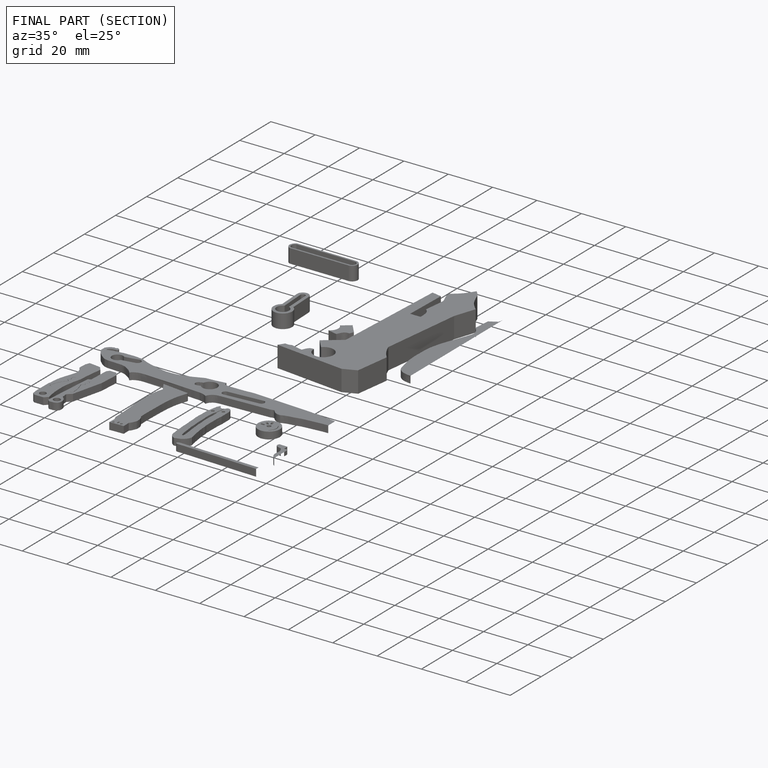
[diagram: finished part — half-section view (interior)]
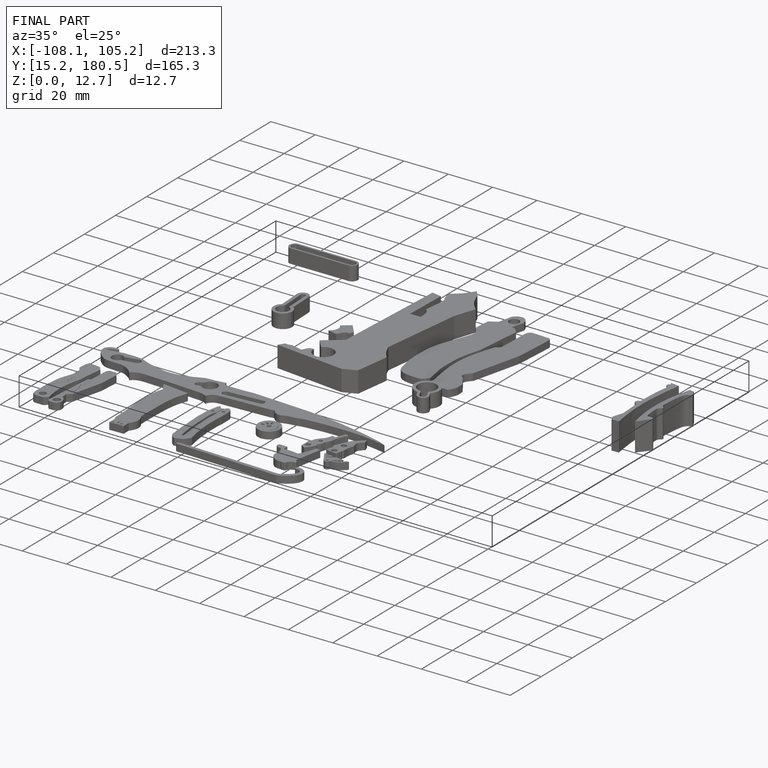
[diagram: finished part — iso view with bounding-box wireframe]
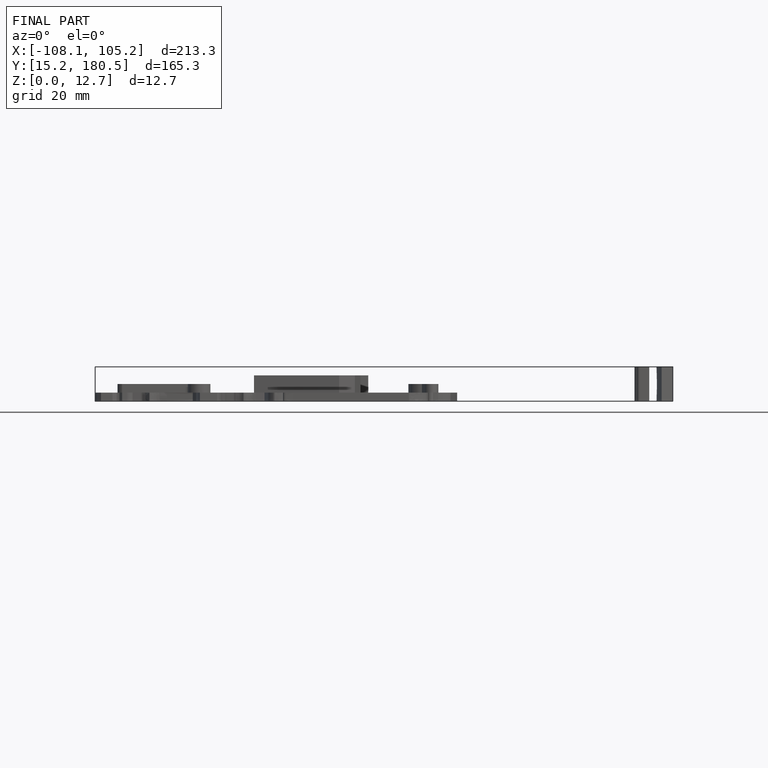
[diagram: finished part — front view with bounding-box wireframe]
